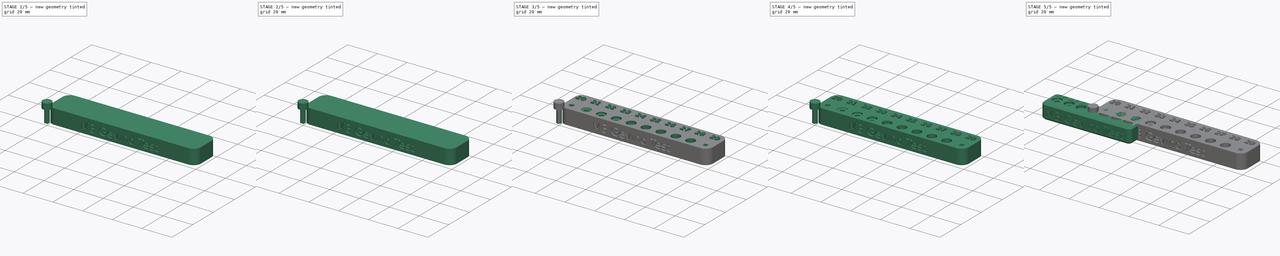
[diagram: build sequence overview — one tinted view per stage of 5, left to right]
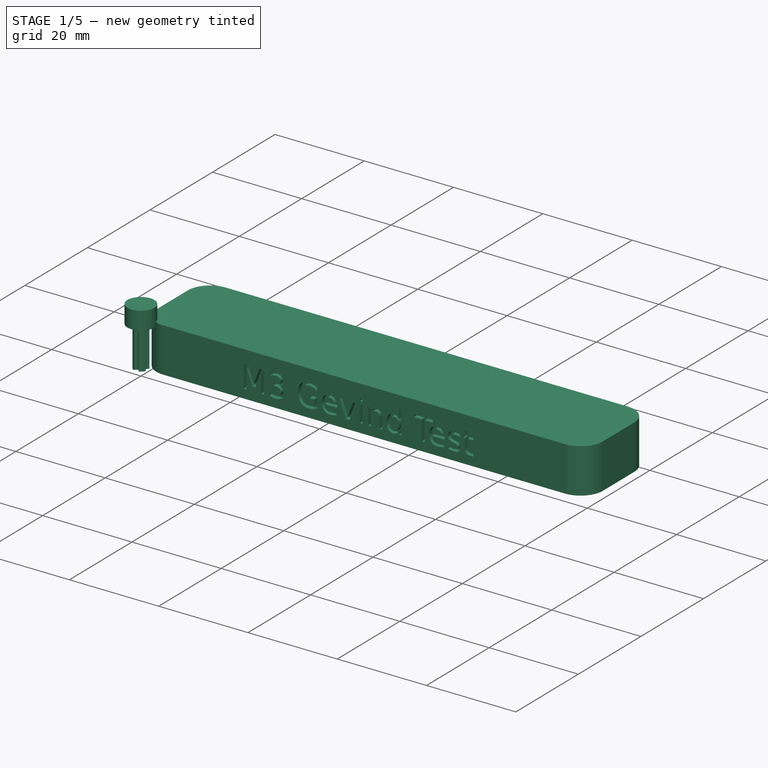
[diagram: stage 1 of 5 — iso view after this stage's code; geometry added in this stage tinted green]
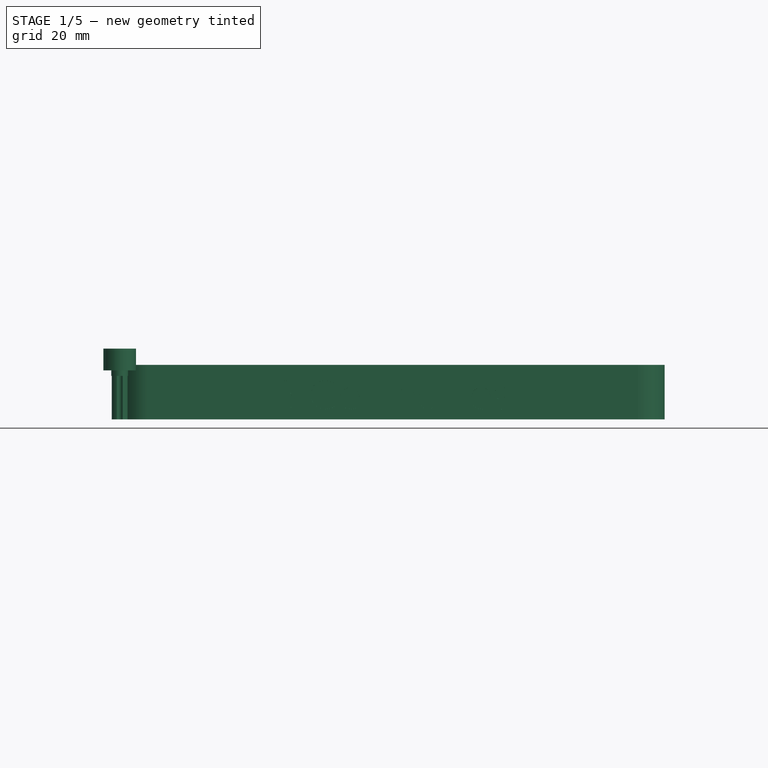
[diagram: stage 1 of 5 — front view after this stage's code; geometry added in this stage tinted green]
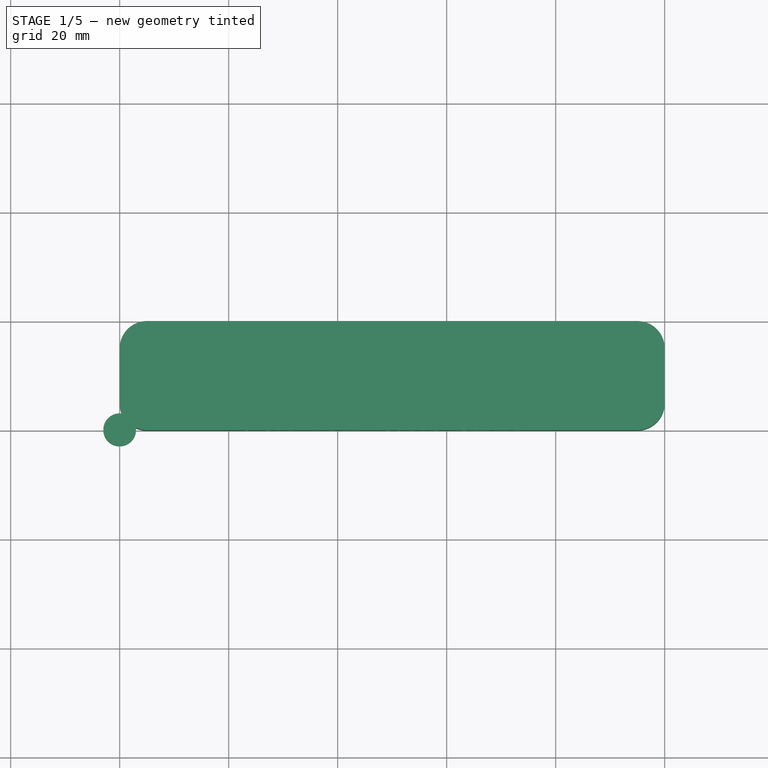
[diagram: stage 1 of 5 — top view after this stage's code; geometry added in this stage tinted green]
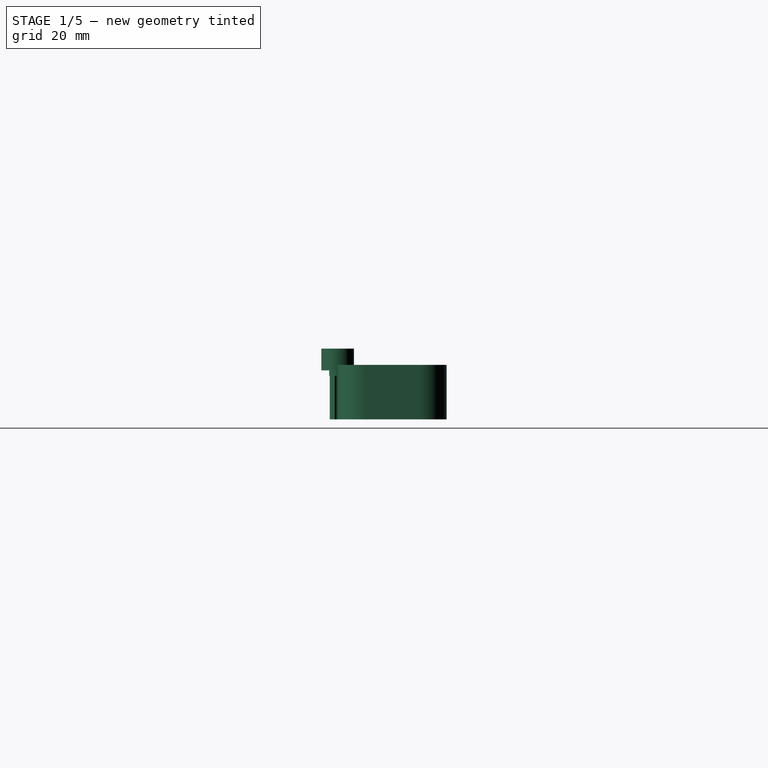
[diagram: stage 1 of 5 — right view after this stage's code; geometry added in this stage tinted green]
FCSTD DOCUMENT  (FreeCAD 1.0R39109 (Git))
Label: M3-Gevind
License: All rights reserved
LicenseURL: http://en.wikipedia.org/wiki/All_rights_reserved
objects: Sketcher::SketchObject×60, PartDesign::Pad×57, PartDesign::Pocket×21, PartDesign::Body×20, Part::Part2DObjectPython×19, PartDesign::Boolean×2, PartDesign::Chamfer×1
note: 400 computed .brp shape members not serialized (recipe doc carries the construction recipe); baked Part::Feature solids carry a one-line shape summary decoded from their .brp

FEATURE [PartDesign::Body] Body010  label="M3-20"
  AllowCompound = true
  Group = -> [Sketch034,Pad025,Sketch035,Pocket016,Sketch036,Pad026,Pad027]
  Origin = -> Origin010
  Placement = pos=(5,5,1) rot=(0,0,1;0rad)
  Tip = -> Pad027
FEATURE [PartDesign::Pad] Pad028
  Direction = (0,0,1)
  Length = 10
  Length2 = 10
  Profile = -> Sketch033
  ReferenceAxis = -> Sketch033 [N_Axis]
  Refine = true
  Reversed = true
  Suppressed = false
  Type = 0
FEATURE [PartDesign::Body] Body015  label="M3-25"
  AllowCompound = true
  Group = -> [Sketch049,Pad041,Sketch050,Pocket021,Sketch051,Pad042,Pad043]
  Origin = -> Origin015
  Placement = pos=(55,5,-1.5) rot=(0,0,1;0rad)
  Tip = -> Pad043
FEATURE [Sketcher::SketchObject] Sketch052
  ArcFitTolerance = 1e-06
  AttachmentSupport = -> [XY_Plane016]
  FullyConstrained = true
  MakeInternals = false
  MapMode = 5
  sketch-geometry (1):
    g0: Circle CenterX=0 CenterY=0 CenterZ=0 NormalX=0 NormalY=0 NormalZ=1 AngleXU=0 Radius=1.55
  constraints (2):
    c: Coincident(g0,g-1)
    c: Diameter(g0) = 3.1
FEATURE [PartDesign::Pad] Pad044
  Direction = (0,0,1)
  Length = 10
  Length2 = 10
  Profile = -> Sketch052
  ReferenceAxis = -> Sketch052 [N_Axis]
  Refine = true
  Reversed = true
  Suppressed = false
  Type = 0
FEATURE [Sketcher::SketchObject] Sketch053
  ArcFitTolerance = 1e-06
  AttachmentOffset = pos=(0,0,-2) rot=(0,0,1;0rad)
  AttachmentSupport = -> [XY_Plane016]
  ExternalGeometry = -> [Pad044]
  FullyConstrained = true
  MakeInternals = false
  MapMode = 5
  Placement = pos=(0,0,-2) rot=(0,0,1;0rad)
  sketch-geometry (5):
    g0: Circle [constr] CenterX=0 CenterY=0 CenterZ=0 NormalX=0 NormalY=0 NormalZ=1 AngleXU=0 Radius=1
    g1: Circle CenterX=0 CenterY=1.55 CenterZ=0 NormalX=0 NormalY=0 NormalZ=1 AngleXU=0 Radius=0.55
    g2: Circle CenterX=1.55 CenterY=0 CenterZ=0 NormalX=0 NormalY=0 NormalZ=1 AngleXU=0 Radius=0.55
    g3: Circle CenterX=-1.55 CenterY=0 CenterZ=0 NormalX=0 NormalY=0 NormalZ=1 AngleXU=0 Radius=0.55
    g4: Circle CenterX=0 CenterY=-1.55 CenterZ=0 NormalX=0 NormalY=0 NormalZ=1 AngleXU=0 Radius=0.55
  constraints (14):
    c: Diameter(g0) = 2
    c: Coincident(g0,g-1)
    c: PointOnObject(g1,g-2)
    c: PointOnObject(g2,g-1)
    c: PointOnObject(g3,g-1)
    c: PointOnObject(g4,g-2)
    c: Tangent(g3,g0)
    c: PointOnObject(g3,g-3)
    c: Tangent(g1,g0)
    c: Tangent(g2,g0)
    c: Tangent(g4,g0)
    c: Equal(g3,g4)
    c: Equal(g4,g2)
    c: Equal(g2,g1)
FEATURE [PartDesign::Pocket] Pocket022
  BaseFeature = -> Pad044
  Direction = (0,0,-1)
  Length = 10
  Length2 = 5
  Profile = -> Sketch053
  ReferenceAxis = -> Sketch053 [N_Axis]
  Refine = true
  Suppressed = false
  Type = 0
FEATURE [PartDesign::Body] Body016  label="M3-26"
  AllowCompound = true
  Group = -> [Sketch052,Pad044,Sketch053,Pocket022,Sketch054,Pad045,Pad046]
  Origin = -> Origin016
  Placement = pos=(65,5,-2) rot=(0,0,1;0rad)
  Tip = -> Pad046
FEATURE [Sketcher::SketchObject] Sketch055
  ArcFitTolerance = 1e-06
  AttachmentSupport = -> [XY_Plane017]
  FullyConstrained = true
  MakeInternals = false
  MapMode = 5
  sketch-geometry (1):
    g0: Circle CenterX=0 CenterY=0 CenterZ=0 NormalX=0 NormalY=0 NormalZ=1 AngleXU=0 Radius=1.55
  constraints (2):
    c: Coincident(g0,g-1)
    c: Diameter(g0) = 3.1
FEATURE [PartDesign::Pad] Pad047
  Direction = (0,0,1)
  Length = 10
  Length2 = 10
  Profile = -> Sketch055
  ReferenceAxis = -> Sketch055 [N_Axis]
  Refine = true
  Reversed = true
  Suppressed = false
  Type = 0
FEATURE [Sketcher::SketchObject] Sketch056
  ArcFitTolerance = 1e-06
  AttachmentOffset = pos=(0,0,-2) rot=(0,0,1;0rad)
  AttachmentSupport = -> [XY_Plane017]
  ExternalGeometry = -> [Pad047]
  FullyConstrained = true
  MakeInternals = false
  MapMode = 5
  Placement = pos=(0,0,-2) rot=(0,0,1;0rad)
  sketch-geometry (5):
    g0: Circle [constr] CenterX=0 CenterY=0 CenterZ=0 NormalX=0 NormalY=0 NormalZ=1 AngleXU=0 Radius=1
    g1: Circle CenterX=0 CenterY=1.55 CenterZ=0 NormalX=0 NormalY=0 NormalZ=1 AngleXU=0 Radius=0.55
    g2: Circle CenterX=1.55 CenterY=0 CenterZ=0 NormalX=0 NormalY=0 NormalZ=1 AngleXU=0 Radius=0.55
    g3: Circle CenterX=-1.55 CenterY=0 CenterZ=0 NormalX=0 NormalY=0 NormalZ=1 AngleXU=0 Radius=0.55
    g4: Circle CenterX=0 CenterY=-1.55 CenterZ=0 NormalX=0 NormalY=0 NormalZ=1 AngleXU=0 Radius=0.55
  constraints (14):
    c: Diameter(g0) = 2
    c: Coincident(g0,g-1)
    c: PointOnObject(g1,g-2)
    c: PointOnObject(g2,g-1)
    c: PointOnObject(g3,g-1)
    c: PointOnObject(g4,g-2)
    c: Tangent(g3,g0)
    c: PointOnObject(g3,g-3)
    c: Tangent(g1,g0)
    c: Tangent(g2,g0)
    c: Tangent(g4,g0)
    c: Equal(g3,g4)
    c: Equal(g4,g2)
    c: Equal(g2,g1)
FEATURE [PartDesign::Pocket] Pocket023
  BaseFeature = -> Pad047
  Direction = (0,0,-1)
  Length = 10
  Length2 = 5
  Profile = -> Sketch056
  ReferenceAxis = -> Sketch056 [N_Axis]
  Refine = true
  Suppressed = false
  Type = 0
FEATURE [Sketcher::SketchObject] Sketch057
  ArcFitTolerance = 1e-06
  AttachmentSupport = -> [XY_Plane017]
  ExternalGeometry = -> [Pocket023]
  FullyConstrained = true
  MakeInternals = false
  MapMode = 5
  sketch-geometry (1):
    g0: Circle CenterX=0 CenterY=0 CenterZ=0 NormalX=0 NormalY=0 NormalZ=1 AngleXU=0 Radius=3
  constraints (2):
    c: Coincident(g0,g-1)
    c: Diameter(g0) = 6
FEATURE [PartDesign::Pad] Pad048
  BaseFeature = -> Pocket023
  Direction = (0,0,1)
  Length = 1
  Length2 = 10
  Profile = -> Sketch057
  ReferenceAxis = -> Sketch057 [N_Axis]
  Refine = true
  Reversed = true
  Suppressed = false
  Type = 0
FEATURE [PartDesign::Pad] Pad049
  BaseFeature = -> Pad048
  Direction = (0,0,1)
  Length = 3
  Length2 = 10
  Profile = -> Sketch057
  ReferenceAxis = -> Sketch057 [N_Axis]
  Refine = true
  Suppressed = false
  Type = 0
FEATURE [PartDesign::Body] Body017  label="M3-27"
  AllowCompound = true
  Group = -> [Sketch055,Pad047,Sketch056,Pocket023,Sketch057,Pad048,Pad049]
  Origin = -> Origin017
  Placement = pos=(75,5,-2.5) rot=(0,0,1;0rad)
  Tip = -> Pad049
FEATURE [Sketcher::SketchObject] Sketch058
  ArcFitTolerance = 1e-06
  AttachmentSupport = -> [XY_Plane018]
  FullyConstrained = true
  MakeInternals = false
  MapMode = 5
  sketch-geometry (1):
    g0: Circle CenterX=0 CenterY=0 CenterZ=0 NormalX=0 NormalY=0 NormalZ=1 AngleXU=0 Radius=1.55
  constraints (2):
    c: Coincident(g0,g-1)
    c: Diameter(g0) = 3.1
FEATURE [PartDesign::Pad] Pad050
  Direction = (0,0,1)
  Length = 10
  Length2 = 10
  Profile = -> Sketch058
  ReferenceAxis = -> Sketch058 [N_Axis]
  Refine = true
  Reversed = true
  Suppressed = false
  Type = 0
FEATURE [Sketcher::SketchObject] Sketch059
  ArcFitTolerance = 1e-06
  AttachmentOffset = pos=(0,0,-2) rot=(0,0,1;0rad)
  AttachmentSupport = -> [XY_Plane018]
  ExternalGeometry = -> [Pad050]
  FullyConstrained = true
  MakeInternals = false
  MapMode = 5
  Placement = pos=(0,0,-2) rot=(0,0,1;0rad)
  sketch-geometry (5):
    g0: Circle [constr] CenterX=0 CenterY=0 CenterZ=0 NormalX=0 NormalY=0 NormalZ=1 AngleXU=0 Radius=1
    g1: Circle CenterX=0 CenterY=1.55 CenterZ=0 NormalX=0 NormalY=0 NormalZ=1 AngleXU=0 Radius=0.55
    g2: Circle CenterX=1.55 CenterY=0 CenterZ=0 NormalX=0 NormalY=0 NormalZ=1 AngleXU=0 Radius=0.55
    g3: Circle CenterX=-1.55 CenterY=0 CenterZ=0 NormalX=0 NormalY=0 NormalZ=1 AngleXU=0 Radius=0.55
    g4: Circle CenterX=0 CenterY=-1.55 CenterZ=0 NormalX=0 NormalY=0 NormalZ=1 AngleXU=0 Radius=0.55
  constraints (14):
    c: Diameter(g0) = 2
    c: Coincident(g0,g-1)
    c: PointOnObject(g1,g-2)
    c: PointOnObject(g2,g-1)
    c: PointOnObject(g3,g-1)
    c: PointOnObject(g4,g-2)
    c: Tangent(g3,g0)
    c: PointOnObject(g3,g-3)
    c: Tangent(g1,g0)
    c: Tangent(g2,g0)
    c: Tangent(g4,g0)
    c: Equal(g3,g4)
    c: Equal(g4,g2)
    c: Equal(g2,g1)
FEATURE [PartDesign::Pocket] Pocket024
  BaseFeature = -> Pad050
  Direction = (0,0,-1)
  Length = 10
  Length2 = 5
  Profile = -> Sketch059
  ReferenceAxis = -> Sketch059 [N_Axis]
  Refine = true
  Suppressed = false
  Type = 0
FEATURE [Sketcher::SketchObject] Sketch060
  ArcFitTolerance = 1e-06
  AttachmentSupport = -> [XY_Plane018]
  ExternalGeometry = -> [Pocket024]
  FullyConstrained = true
  MakeInternals = false
  MapMode = 5
  sketch-geometry (1):
    g0: Circle CenterX=0 CenterY=0 CenterZ=0 NormalX=0 NormalY=0 NormalZ=1 AngleXU=0 Radius=3
  constraints (2):
    c: Coincident(g0,g-1)
    c: Diameter(g0) = 6
FEATURE [PartDesign::Pad] Pad051
  BaseFeature = -> Pocket024
  Direction = (0,0,1)
  Length = 1
  Length2 = 10
  Profile = -> Sketch060
  ReferenceAxis = -> Sketch060 [N_Axis]
  Refine = true
  Reversed = true
  Suppressed = false
  Type = 0
FEATURE [PartDesign::Pad] Pad052
  BaseFeature = -> Pad051
  Direction = (0,0,1)
  Length = 3
  Length2 = 10
  Profile = -> Sketch060
  ReferenceAxis = -> Sketch060 [N_Axis]
  Refine = true
  Suppressed = false
  Type = 0
FEATURE [PartDesign::Body] Body018  label="M3-28"
  AllowCompound = true
  Group = -> [Sketch058,Pad050,Sketch059,Pocket024,Sketch060,Pad051,Pad052]
  Origin = -> Origin018
  Placement = pos=(85,5,-3) rot=(0,0,1;0rad)
  Tip = -> Pad052
FEATURE [Sketcher::SketchObject] Sketch061
  ArcFitTolerance = 1e-06
  AttachmentSupport = -> [XY_Plane019]
  FullyConstrained = true
  MakeInternals = false
  MapMode = 5
  sketch-geometry (1):
    g0: Circle CenterX=0 CenterY=0 CenterZ=0 NormalX=0 NormalY=0 NormalZ=1 AngleXU=0 Radius=1.55
  constraints (2):
    c: Coincident(g0,g-1)
    c: Diameter(g0) = 3.1
FEATURE [PartDesign::Pad] Pad053
  Direction = (0,0,1)
  Length = 10
  Length2 = 10
  Profile = -> Sketch061
  ReferenceAxis = -> Sketch061 [N_Axis]
  Refine = true
  Reversed = true
  Suppressed = false
  Type = 0
FEATURE [Sketcher::SketchObject] Sketch062
  ArcFitTolerance = 1e-06
  AttachmentOffset = pos=(0,0,-2) rot=(0,0,1;0rad)
  AttachmentSupport = -> [XY_Plane019]
  ExternalGeometry = -> [Pad053]
  FullyConstrained = true
  MakeInternals = false
  MapMode = 5
  Placement = pos=(0,0,-2) rot=(0,0,1;0rad)
  sketch-geometry (5):
    g0: Circle [constr] CenterX=0 CenterY=0 CenterZ=0 NormalX=0 NormalY=0 NormalZ=1 AngleXU=0 Radius=1
    g1: Circle CenterX=0 CenterY=1.55 CenterZ=0 NormalX=0 NormalY=0 NormalZ=1 AngleXU=0 Radius=0.55
    g2: Circle CenterX=1.55 CenterY=0 CenterZ=0 NormalX=0 NormalY=0 NormalZ=1 AngleXU=0 Radius=0.55
    g3: Circle CenterX=-1.55 CenterY=0 CenterZ=0 NormalX=0 NormalY=0 NormalZ=1 AngleXU=0 Radius=0.55
    g4: Circle CenterX=0 CenterY=-1.55 CenterZ=0 NormalX=0 NormalY=0 NormalZ=1 AngleXU=0 Radius=0.55
  constraints (14):
    c: Diameter(g0) = 2
    c: Coincident(g0,g-1)
    c: PointOnObject(g1,g-2)
    c: PointOnObject(g2,g-1)
    c: PointOnObject(g3,g-1)
    c: PointOnObject(g4,g-2)
    c: Tangent(g3,g0)
    c: PointOnObject(g3,g-3)
    c: Tangent(g1,g0)
    c: Tangent(g2,g0)
    c: Tangent(g4,g0)
    c: Equal(g3,g4)
    c: Equal(g4,g2)
    c: Equal(g2,g1)
FEATURE [PartDesign::Pocket] Pocket025
  BaseFeature = -> Pad053
  Direction = (0,0,-1)
  Length = 10
  Length2 = 5
  Profile = -> Sketch062
  ReferenceAxis = -> Sketch062 [N_Axis]
  Refine = true
  Suppressed = false
  Type = 0
FEATURE [Sketcher::SketchObject] Sketch063
  ArcFitTolerance = 1e-06
  AttachmentSupport = -> [XY_Plane019]
  ExternalGeometry = -> [Pocket025]
  FullyConstrained = true
  MakeInternals = false
  MapMode = 5
  sketch-geometry (1):
    g0: Circle CenterX=0 CenterY=0 CenterZ=0 NormalX=0 NormalY=0 NormalZ=1 AngleXU=0 Radius=3
  constraints (2):
    c: Coincident(g0,g-1)
    c: Diameter(g0) = 6
FEATURE [PartDesign::Pad] Pad054
  BaseFeature = -> Pocket025
  Direction = (0,0,1)
  Length = 1
  Length2 = 10
  Profile = -> Sketch063
  ReferenceAxis = -> Sketch063 [N_Axis]
  Refine = true
  Reversed = true
  Suppressed = false
  Type = 0
FEATURE [PartDesign::Pad] Pad055
  BaseFeature = -> Pad054
  Direction = (0,0,1)
  Length = 3
  Length2 = 10
  Profile = -> Sketch063
  ReferenceAxis = -> Sketch063 [N_Axis]
  Refine = true
  Suppressed = false
  Type = 0
FEATURE [PartDesign::Body] Body019  label="M3-29"
  AllowCompound = true
  Group = -> [Sketch061,Pad053,Sketch062,Pocket025,Sketch063,Pad054,Pad055]
  Origin = -> Origin019
  Placement = pos=(95,5,3) rot=(0,0,1;0rad)
  Tip = -> Pad055
FEATURE [Part::Part2DObjectPython] ShapeString016  label="ShapeString_27"  # Draft 2D object (typed FeaturePython)
  FontFile = <path>
  Fuse = false
  Justification = 6
  JustificationReference = 0
  KeepLeftMargin = false
  MakeFace = true
  ObliqueAngle = 0
  Placement = pos=(72,13,0) rot=(0,0,1;0rad)
  ScaleToSize = true
  Size = 3.5
  String = 27
  Tracking = 0
FEATURE [Part::Part2DObjectPython] ShapeString017  label="ShapeString_28"  # Draft 2D object (typed FeaturePython)
  FontFile = <path>
  Fuse = false
  Justification = 6
  JustificationReference = 0
  KeepLeftMargin = false
  MakeFace = true
  ObliqueAngle = 0
  Placement = pos=(82,13,0) rot=(0,0,1;0rad)
  ScaleToSize = true
  Size = 3.5
  String = 28
  Tracking = 0
FEATURE [Part::Part2DObjectPython] ShapeString018  label="ShapeString_29"  # Draft 2D object (typed FeaturePython)
  FontFile = <path>
  Fuse = false
  Justification = 6
  JustificationReference = 0
  KeepLeftMargin = false
  MakeFace = true
  ObliqueAngle = 0
  Placement = pos=(92,13,0) rot=(0,0,1;0rad)
  ScaleToSize = true
  Size = 3.5
  String = 29
  Tracking = 0
FEATURE [Sketcher::SketchObject] Sketch065
  ArcFitTolerance = 1e-06
  FullyConstrained = false
  MakeInternals = false
  Placement = pos=(0,1.8e-15,0) rot=(1,0,0;1.5708rad)
  sketch-geometry (210):
    g0: LineSegment StartX=23 StartY=-3 StartZ=0 EndX=24.0078 EndY=-3 EndZ=0
    g1: LineSegment StartX=23 StartY=-8 StartZ=0 EndX=23 EndY=-3 EndZ=0
    g2: LineSegment StartX=23.6562 StartY=-8 StartZ=0 EndX=23 EndY=-8 EndZ=0
    g3: LineSegment StartX=23.6562 StartY=-3.61004 StartZ=0 EndX=23.6562 EndY=-8 EndZ=0
    g4: LineSegment StartX=24.9453 StartY=-7.04286 StartZ=0 EndX=23.6562 EndY=-3.61004 EndZ=0
    g5: LineSegment StartX=25.625 StartY=-7.04286 StartZ=0 EndX=24.9453 EndY=-7.04286 EndZ=0
    g6: LineSegment StartX=26.9141 StartY=-3.61004 StartZ=0 EndX=25.625 EndY=-7.04286 EndZ=0
    g7: LineSegment StartX=26.9141 StartY=-8 StartZ=0 EndX=26.9141 EndY=-3.61004 EndZ=0
    g8: LineSegment StartX=27.5737 StartY=-8 StartZ=0 EndX=26.9141 EndY=-8 EndZ=0
    g9: LineSegment StartX=27.5737 StartY=-3 StartZ=0 EndX=27.5737 EndY=-8 EndZ=0
    g10: LineSegment StartX=26.5658 StartY=-3 StartZ=0 EndX=27.5737 EndY=-3 EndZ=0
    g11: LineSegment StartX=25.2835 StartY=-6.40603 StartZ=0 EndX=26.5658 EndY=-3 EndZ=0
    g12: LineSegment StartX=24.0078 StartY=-3 StartZ=0 EndX=25.2835 EndY=-6.40603 EndZ=0
    g13: BSplineCurve PolesCount=3 KnotsCount=2 Degree=2 IsPeriodic=0
    g14: BSplineCurve PolesCount=3 KnotsCount=2 Degree=2 IsPeriodic=0
    g15: BSplineCurve PolesCount=3 KnotsCount=2 Degree=2 IsPeriodic=0
    g16: BSplineCurve PolesCount=3 KnotsCount=2 Degree=2 IsPeriodic=0
    g17: BSplineCurve PolesCount=3 KnotsCount=2 Degree=2 IsPeriodic=0
    g18: BSplineCurve PolesCount=3 KnotsCount=2 Degree=2 IsPeriodic=0
    g19: BSplineCurve PolesCount=3 KnotsCount=2 Degree=2 IsPeriodic=0
    g20: LineSegment StartX=28.9143 StartY=-3.72857 StartZ=0 EndX=28.9143 EndY=-3.12857 EndZ=0
    g21: BSplineCurve PolesCount=3 KnotsCount=2 Degree=2 IsPeriodic=0
    g22: BSplineCurve PolesCount=3 KnotsCount=2 Degree=2 IsPeriodic=0
    g23: BSplineCurve PolesCount=3 KnotsCount=2 Degree=2 IsPeriodic=0
    g24: BSplineCurve PolesCount=3 KnotsCount=2 Degree=2 IsPeriodic=0
    g25: BSplineCurve PolesCount=3 KnotsCount=2 Degree=2 IsPeriodic=0
    g26: BSplineCurve PolesCount=3 KnotsCount=2 Degree=2 IsPeriodic=0
    g27: LineSegment StartX=29.6275 StartY=-5.05714 StartZ=0 EndX=30.2368 EndY=-5.05714 EndZ=0
    g28: LineSegment StartX=29.6275 StartY=-5.61429 StartZ=0 EndX=29.6275 EndY=-5.05714 EndZ=0
    g29: LineSegment StartX=30.21 StartY=-5.61429 StartZ=0 EndX=29.6275 EndY=-5.61429 EndZ=0
    g30: BSplineCurve PolesCount=3 KnotsCount=2 Degree=2 IsPeriodic=0
    g31: BSplineCurve PolesCount=3 KnotsCount=2 Degree=2 IsPeriodic=0
    g32: BSplineCurve PolesCount=3 KnotsCount=2 Degree=2 IsPeriodic=0
    g33: BSplineCurve PolesCount=3 KnotsCount=2 Degree=2 IsPeriodic=0
    g34: BSplineCurve PolesCount=3 KnotsCount=2 Degree=2 IsPeriodic=0
    g35: BSplineCurve PolesCount=3 KnotsCount=2 Degree=2 IsPeriodic=0
    g36: LineSegment StartX=28.7636 StartY=-7.85714 StartZ=0 EndX=28.7636 EndY=-7.2 EndZ=0
    g37: BSplineCurve PolesCount=3 KnotsCount=2 Degree=2 IsPeriodic=0
    g38: BSplineCurve PolesCount=3 KnotsCount=2 Degree=2 IsPeriodic=0
    g39: BSplineCurve PolesCount=3 KnotsCount=2 Degree=2 IsPeriodic=0
    g40: BSplineCurve PolesCount=3 KnotsCount=2 Degree=2 IsPeriodic=0
    g41: BSplineCurve PolesCount=3 KnotsCount=2 Degree=2 IsPeriodic=0
    g42: LineSegment StartX=38.8656 StartY=-7.28795 StartZ=0 EndX=38.8656 EndY=-5.94286 EndZ=0
    g43: BSplineCurve PolesCount=3 KnotsCount=2 Degree=2 IsPeriodic=0
    g44: BSplineCurve PolesCount=3 KnotsCount=2 Degree=2 IsPeriodic=0
    g45: BSplineCurve PolesCount=3 KnotsCount=2 Degree=2 IsPeriodic=0
    g46: BSplineCurve PolesCount=3 KnotsCount=2 Degree=2 IsPeriodic=0
    g47: BSplineCurve PolesCount=3 KnotsCount=2 Degree=2 IsPeriodic=0
    g48: BSplineCurve PolesCount=3 KnotsCount=2 Degree=2 IsPeriodic=0
    g49: BSplineCurve PolesCount=3 KnotsCount=2 Degree=2 IsPeriodic=0
    g50: BSplineCurve PolesCount=3 KnotsCount=2 Degree=2 IsPeriodic=0
    g51: LineSegment StartX=39.4047 StartY=-3.38571 StartZ=0 EndX=39.4047 EndY=-4.1 EndZ=0
    g52: BSplineCurve PolesCount=3 KnotsCount=2 Degree=2 IsPeriodic=0
    g53: BSplineCurve PolesCount=3 KnotsCount=2 Degree=2 IsPeriodic=0
    g54: BSplineCurve PolesCount=3 KnotsCount=2 Degree=2 IsPeriodic=0
    g55: BSplineCurve PolesCount=3 KnotsCount=2 Degree=2 IsPeriodic=0
    g56: BSplineCurve PolesCount=3 KnotsCount=2 Degree=2 IsPeriodic=0
    g57: BSplineCurve PolesCount=3 KnotsCount=2 Degree=2 IsPeriodic=0
    g58: BSplineCurve PolesCount=3 KnotsCount=2 Degree=2 IsPeriodic=0
    g59: BSplineCurve PolesCount=3 KnotsCount=2 Degree=2 IsPeriodic=0
    g60: LineSegment StartX=39.5353 StartY=-5.38571 StartZ=0 EndX=39.5353 EndY=-7.53616 EndZ=0
    g61: LineSegment StartX=37.7607 StartY=-5.38571 StartZ=0 EndX=39.5353 EndY=-5.38571 EndZ=0
    g62: LineSegment StartX=37.7607 StartY=-5.94286 StartZ=0 EndX=37.7607 EndY=-5.38571 EndZ=0
    g63: LineSegment StartX=38.8656 StartY=-5.94286 StartZ=0 EndX=37.7607 EndY=-5.94286 EndZ=0
    g64: LineSegment StartX=43.9522 StartY=-5.96786 StartZ=0 EndX=43.9522 EndY=-6.27143 EndZ=0
    g65: BSplineCurve PolesCount=3 KnotsCount=2 Degree=2 IsPeriodic=0
    g66: BSplineCurve PolesCount=3 KnotsCount=2 Degree=2 IsPeriodic=0
    g67: BSplineCurve PolesCount=3 KnotsCount=2 Degree=2 IsPeriodic=0
    g68: BSplineCurve PolesCount=3 KnotsCount=2 Degree=2 IsPeriodic=0
    g69: BSplineCurve PolesCount=3 KnotsCount=2 Degree=2 IsPeriodic=0
    g70: BSplineCurve PolesCount=3 KnotsCount=2 Degree=2 IsPeriodic=0
    g71: BSplineCurve PolesCount=3 KnotsCount=2 Degree=2 IsPeriodic=0
    g72: BSplineCurve PolesCount=3 KnotsCount=2 Degree=2 IsPeriodic=0
    g73: LineSegment StartX=43.8083 StartY=-7.22857 StartZ=0 EndX=43.8083 EndY=-7.81429 EndZ=0
    g74: BSplineCurve PolesCount=3 KnotsCount=2 Degree=2 IsPeriodic=0
    g75: BSplineCurve PolesCount=3 KnotsCount=2 Degree=2 IsPeriodic=0
    g76: BSplineCurve PolesCount=3 KnotsCount=2 Degree=2 IsPeriodic=0
    g77: BSplineCurve PolesCount=3 KnotsCount=2 Degree=2 IsPeriodic=0
    g78: LineSegment StartX=43.9522 StartY=-6.27143 StartZ=0 EndX=41.1196 EndY=-6.27143 EndZ=0
    g79: BSplineCurve PolesCount=3 KnotsCount=2 Degree=2 IsPeriodic=0
    g80: LineSegment StartX=41.1397 StartY=-5.78906 StartZ=0 EndX=43.3362 EndY=-5.78571 EndZ=0
    g81: BSplineCurve PolesCount=3 KnotsCount=2 Degree=2 IsPeriodic=0
    g82: BSplineCurve PolesCount=3 KnotsCount=2 Degree=2 IsPeriodic=0
    g83: BSplineCurve PolesCount=3 KnotsCount=2 Degree=2 IsPeriodic=0
    g84: LineSegment StartX=44.517 StartY=-4.24286 StartZ=0 EndX=45.1699 EndY=-4.24286 EndZ=0
    g85: LineSegment StartX=45.9232 StartY=-8 StartZ=0 EndX=44.517 EndY=-4.24286 EndZ=0
    g86: LineSegment StartX=46.7603 StartY=-8 StartZ=0 EndX=45.9232 EndY=-8 EndZ=0
    g87: LineSegment StartX=48.1665 StartY=-4.24286 StartZ=0 EndX=46.7603 EndY=-8 EndZ=0
    g88: LineSegment StartX=47.5136 StartY=-4.24286 StartZ=0 EndX=48.1665 EndY=-4.24286 EndZ=0
    g89: LineSegment StartX=46.3417 StartY=-7.39621 StartZ=0 EndX=47.5136 EndY=-4.24286 EndZ=0
    g90: LineSegment StartX=45.1699 StartY=-4.24286 StartZ=0 EndX=46.3417 EndY=-7.39621 EndZ=0
    g91: LineSegment StartX=49.0161 StartY=-4.24286 StartZ=0 EndX=49.6321 EndY=-4.24286 EndZ=0
    g92: LineSegment StartX=49.0161 StartY=-8 StartZ=0 EndX=49.0161 EndY=-4.24286 EndZ=0
    g93: LineSegment StartX=49.6321 StartY=-8 StartZ=0 EndX=49.0161 EndY=-8 EndZ=0
    g94: LineSegment StartX=49.6321 StartY=-4.24286 StartZ=0 EndX=49.6321 EndY=-8 EndZ=0
    g95: LineSegment StartX=49.0161 StartY=-2.78571 StartZ=0 EndX=49.6321 EndY=-2.78571 EndZ=0
    g96: LineSegment StartX=49.0161 StartY=-3.57143 StartZ=0 EndX=49.0161 EndY=-2.78571 EndZ=0
    g97: LineSegment StartX=49.6321 StartY=-3.57143 StartZ=0 EndX=49.0161 EndY=-3.57143 EndZ=0
    g98: LineSegment StartX=49.6321 StartY=-2.78571 StartZ=0 EndX=49.6321 EndY=-3.57143 EndZ=0
    g99: LineSegment StartX=54.0333 StartY=-5.73371 StartZ=0 EndX=54.0333 EndY=-8 EndZ=0
    g100: BSplineCurve PolesCount=3 KnotsCount=2 Degree=2 IsPeriodic=0
    g101: BSplineCurve PolesCount=3 KnotsCount=2 Degree=2 IsPeriodic=0
    g102: BSplineCurve PolesCount=3 KnotsCount=2 Degree=2 IsPeriodic=0
    g103: BSplineCurve PolesCount=3 KnotsCount=2 Degree=2 IsPeriodic=0
    g104: LineSegment StartX=51.5121 StartY=-4.24286 StartZ=0 EndX=51.5121 EndY=-4.82857 EndZ=0
    g105: LineSegment StartX=50.8926 StartY=-4.24286 StartZ=0 EndX=51.5121 EndY=-4.24286 EndZ=0
    g106: LineSegment StartX=50.8926 StartY=-8 StartZ=0 EndX=50.8926 EndY=-4.24286 EndZ=0
    g107: LineSegment StartX=51.5121 StartY=-8 StartZ=0 EndX=50.8926 EndY=-8 EndZ=0
    g108: LineSegment StartX=51.5121 StartY=-5.8779 StartZ=0 EndX=51.5121 EndY=-8 EndZ=0
    g109: BSplineCurve PolesCount=3 KnotsCount=2 Degree=2 IsPeriodic=0
    g110: BSplineCurve PolesCount=3 KnotsCount=2 Degree=2 IsPeriodic=0
    g111: BSplineCurve PolesCount=3 KnotsCount=2 Degree=2 IsPeriodic=0
    g112: BSplineCurve PolesCount=3 KnotsCount=2 Degree=2 IsPeriodic=0
    g113: LineSegment StartX=53.4172 StartY=-8 StartZ=0 EndX=53.4172 EndY=-5.75379 EndZ=0
    g114: LineSegment StartX=54.0333 StartY=-8 StartZ=0 EndX=53.4172 EndY=-8 EndZ=0
    g115: LineSegment StartX=57.7266 StartY=-4.81429 StartZ=0 EndX=57.7266 EndY=-2.78571 EndZ=0
    g116: BSplineCurve PolesCount=3 KnotsCount=2 Degree=2 IsPeriodic=0
    g117: BSplineCurve PolesCount=3 KnotsCount=2 Degree=2 IsPeriodic=0
    g118: BSplineCurve PolesCount=3 KnotsCount=2 Degree=2 IsPeriodic=0
    g119: BSplineCurve PolesCount=3 KnotsCount=2 Degree=2 IsPeriodic=0
    g120: BSplineCurve PolesCount=3 KnotsCount=2 Degree=2 IsPeriodic=0
    g121: BSplineCurve PolesCount=3 KnotsCount=2 Degree=2 IsPeriodic=0
    g122: BSplineCurve PolesCount=3 KnotsCount=2 Degree=2 IsPeriodic=0
    g123: BSplineCurve PolesCount=3 KnotsCount=2 Degree=2 IsPeriodic=0
    g124: LineSegment StartX=57.7266 StartY=-8 StartZ=0 EndX=57.7266 EndY=-7.44286 EndZ=0
    g125: LineSegment StartX=58.3426 StartY=-8 StartZ=0 EndX=57.7266 EndY=-8 EndZ=0
    g126: LineSegment StartX=58.3426 StartY=-2.78571 StartZ=0 EndX=58.3426 EndY=-8 EndZ=0
    g127: LineSegment StartX=57.7266 StartY=-2.78571 StartZ=0 EndX=58.3426 EndY=-2.78571 EndZ=0
    g128: BSplineCurve PolesCount=3 KnotsCount=2 Degree=2 IsPeriodic=0
    g129: BSplineCurve PolesCount=3 KnotsCount=2 Degree=2 IsPeriodic=0
    g130: BSplineCurve PolesCount=3 KnotsCount=2 Degree=2 IsPeriodic=0
    g131: BSplineCurve PolesCount=3 KnotsCount=2 Degree=2 IsPeriodic=0
    g132: BSplineCurve PolesCount=3 KnotsCount=2 Degree=2 IsPeriodic=0
    g133: BSplineCurve PolesCount=3 KnotsCount=2 Degree=2 IsPeriodic=0
    g134: BSplineCurve PolesCount=3 KnotsCount=2 Degree=2 IsPeriodic=0
    g135: BSplineCurve PolesCount=3 KnotsCount=2 Degree=2 IsPeriodic=0
    g136: LineSegment StartX=61.1355 StartY=-3 StartZ=0 EndX=65.3643 EndY=-3 EndZ=0
    g137: LineSegment StartX=61.1355 StartY=-3.57143 StartZ=0 EndX=61.1355 EndY=-3 EndZ=0
    g138: LineSegment StartX=62.91 StartY=-3.57143 StartZ=0 EndX=61.1355 EndY=-3.57143 EndZ=0
    g139: LineSegment StartX=62.91 StartY=-8 StartZ=0 EndX=62.91 EndY=-3.57143 EndZ=0
    g140: LineSegment StartX=63.5897 StartY=-8 StartZ=0 EndX=62.91 EndY=-8 EndZ=0
    g141: LineSegment StartX=63.5897 StartY=-3.57143 StartZ=0 EndX=63.5897 EndY=-8 EndZ=0
    g142: LineSegment StartX=65.3643 StartY=-3.57143 StartZ=0 EndX=63.5897 EndY=-3.57143 EndZ=0
    g143: LineSegment StartX=65.3643 StartY=-3 StartZ=0 EndX=65.3643 EndY=-3.57143 EndZ=0
    g144: LineSegment StartX=68.0237 StartY=-5.96786 StartZ=0 EndX=68.0237 EndY=-6.27143 EndZ=0
    g145: BSplineCurve PolesCount=3 KnotsCount=2 Degree=2 IsPeriodic=0
    g146: BSplineCurve PolesCount=3 KnotsCount=2 Degree=2 IsPeriodic=0
    g147: BSplineCurve PolesCount=3 KnotsCount=2 Degree=2 IsPeriodic=0
    g148: BSplineCurve PolesCount=3 KnotsCount=2 Degree=2 IsPeriodic=0
    g149: BSplineCurve PolesCount=3 KnotsCount=2 Degree=2 IsPeriodic=0
    g150: BSplineCurve PolesCount=3 KnotsCount=2 Degree=2 IsPeriodic=0
    g151: BSplineCurve PolesCount=3 KnotsCount=2 Degree=2 IsPeriodic=0
    g152: BSplineCurve PolesCount=3 KnotsCount=2 Degree=2 IsPeriodic=0
    g153: LineSegment StartX=67.8797 StartY=-7.22857 StartZ=0 EndX=67.8797 EndY=-7.81429 EndZ=0
    g154: BSplineCurve PolesCount=3 KnotsCount=2 Degree=2 IsPeriodic=0
    g155: BSplineCurve PolesCount=3 KnotsCount=2 Degree=2 IsPeriodic=0
    g156: BSplineCurve PolesCount=3 KnotsCount=2 Degree=2 IsPeriodic=0
    g157: BSplineCurve PolesCount=3 KnotsCount=2 Degree=2 IsPeriodic=0
    g158: LineSegment StartX=68.0237 StartY=-6.27143 StartZ=0 EndX=65.1911 EndY=-6.27143 EndZ=0
    g159: BSplineCurve PolesCount=3 KnotsCount=2 Degree=2 IsPeriodic=0
    g160: LineSegment StartX=65.2112 StartY=-5.78906 StartZ=0 EndX=67.4076 EndY=-5.78571 EndZ=0
    g161: BSplineCurve PolesCount=3 KnotsCount=2 Degree=2 IsPeriodic=0
    g162: BSplineCurve PolesCount=3 KnotsCount=2 Degree=2 IsPeriodic=0
    g163: BSplineCurve PolesCount=3 KnotsCount=2 Degree=2 IsPeriodic=0
    g164: LineSegment StartX=71.421 StartY=-4.35714 StartZ=0 EndX=71.421 EndY=-4.94286 EndZ=0
    g165: BSplineCurve PolesCount=3 KnotsCount=2 Degree=2 IsPeriodic=0
    g166: BSplineCurve PolesCount=3 KnotsCount=2 Degree=2 IsPeriodic=0
    g167: BSplineCurve PolesCount=3 KnotsCount=2 Degree=2 IsPeriodic=0
    g168: BSplineCurve PolesCount=3 KnotsCount=2 Degree=2 IsPeriodic=0
    g169: BSplineCurve PolesCount=3 KnotsCount=2 Degree=2 IsPeriodic=0
    g170: BSplineCurve PolesCount=3 KnotsCount=2 Degree=2 IsPeriodic=0
    g171: LineSegment StartX=70.0783 StartY=-6.37054 StartZ=0 EndX=69.8641 EndY=-6.32031 EndZ=0
    g172: BSplineCurve PolesCount=3 KnotsCount=2 Degree=2 IsPeriodic=0
    g173: BSplineCurve PolesCount=3 KnotsCount=2 Degree=2 IsPeriodic=0
    g174: BSplineCurve PolesCount=3 KnotsCount=2 Degree=2 IsPeriodic=0
    g175: BSplineCurve PolesCount=3 KnotsCount=2 Degree=2 IsPeriodic=0
    g176: BSplineCurve PolesCount=3 KnotsCount=2 Degree=2 IsPeriodic=0
    g177: BSplineCurve PolesCount=3 KnotsCount=2 Degree=2 IsPeriodic=0
    g178: LineSegment StartX=68.7558 StartY=-7.87143 StartZ=0 EndX=68.7558 EndY=-7.22857 EndZ=0
    g179: BSplineCurve PolesCount=3 KnotsCount=2 Degree=2 IsPeriodic=0
    g180: BSplineCurve PolesCount=3 KnotsCount=2 Degree=2 IsPeriodic=0
    g181: BSplineCurve PolesCount=3 KnotsCount=2 Degree=2 IsPeriodic=0
    g182: BSplineCurve PolesCount=3 KnotsCount=2 Degree=2 IsPeriodic=0
    g183: BSplineCurve PolesCount=3 KnotsCount=2 Degree=2 IsPeriodic=0
    g184: BSplineCurve PolesCount=3 KnotsCount=2 Degree=2 IsPeriodic=0
    g185: LineSegment StartX=70.2022 StartY=-5.80759 StartZ=0 EndX=70.4132 EndY=-5.85446 EndZ=0
    g186: BSplineCurve PolesCount=3 KnotsCount=2 Degree=2 IsPeriodic=0
    g187: BSplineCurve PolesCount=3 KnotsCount=2 Degree=2 IsPeriodic=0
    g188: BSplineCurve PolesCount=3 KnotsCount=2 Degree=2 IsPeriodic=0
    g189: BSplineCurve PolesCount=3 KnotsCount=2 Degree=2 IsPeriodic=0
    g190: BSplineCurve PolesCount=3 KnotsCount=2 Degree=2 IsPeriodic=0
    g191: BSplineCurve PolesCount=3 KnotsCount=2 Degree=2 IsPeriodic=0
    g192: LineSegment StartX=73.2112 StartY=-3.17143 StartZ=0 EndX=73.2112 EndY=-4.24286 EndZ=0
    g193: LineSegment StartX=72.5917 StartY=-3.17143 StartZ=0 EndX=73.2112 EndY=-3.17143 EndZ=0
    g194: LineSegment StartX=72.5917 StartY=-4.24286 StartZ=0 EndX=72.5917 EndY=-3.17143 EndZ=0
    g195: LineSegment StartX=72.1397 StartY=-4.24286 StartZ=0 EndX=72.5917 EndY=-4.24286 EndZ=0
    g196: LineSegment StartX=72.1397 StartY=-4.72857 StartZ=0 EndX=72.1397 EndY=-4.24286 EndZ=0
    g197: LineSegment StartX=72.5917 StartY=-4.72857 StartZ=0 EndX=72.1397 EndY=-4.72857 EndZ=0
    g198: LineSegment StartX=72.5917 StartY=-6.7654 StartZ=0 EndX=72.5917 EndY=-4.72857 EndZ=0
    g199: BSplineCurve PolesCount=3 KnotsCount=2 Degree=2 IsPeriodic=0
    g200: BSplineCurve PolesCount=3 KnotsCount=2 Degree=2 IsPeriodic=0
    g201: LineSegment StartX=74.4801 StartY=-8 StartZ=0 EndX=73.8473 EndY=-8 EndZ=0
    g202: LineSegment StartX=74.4801 StartY=-7.48571 StartZ=0 EndX=74.4801 EndY=-8 EndZ=0
    g203: LineSegment StartX=73.8473 StartY=-7.48571 StartZ=0 EndX=74.4801 EndY=-7.48571 EndZ=0
    g204: BSplineCurve PolesCount=3 KnotsCount=2 Degree=2 IsPeriodic=0
    g205: BSplineCurve PolesCount=3 KnotsCount=2 Degree=2 IsPeriodic=0
    g206: LineSegment StartX=73.2112 StartY=-4.72857 StartZ=0 EndX=73.2112 EndY=-6.7654 EndZ=0
    g207: LineSegment StartX=74.4801 StartY=-4.72857 StartZ=0 EndX=73.2112 EndY=-4.72857 EndZ=0
    g208: LineSegment StartX=74.4801 StartY=-4.24286 StartZ=0 EndX=74.4801 EndY=-4.72857 EndZ=0
    g209: LineSegment StartX=73.2112 StartY=-4.24286 StartZ=0 EndX=74.4801 EndY=-4.24286 EndZ=0
  constraints (284):
    c: Horizontal(g0)
    c: Coincident(g0,g1)
    c: Vertical(g1)
    c: Coincident(g1,g2)
    c: Horizontal(g2)
    c: Coincident(g2,g3)
    c: Vertical(g3)
    c: Coincident(g3,g4)
    c: Coincident(g4,g5)
    c: Horizontal(g5)
    c: Coincident(g5,g6)
    c: Coincident(g6,g7)
    c: Vertical(g7)
    c: Coincident(g7,g8)
    c: Horizontal(g8)
    c: Coincident(g8,g9)
    c: Vertical(g9)
    c: Coincident(g9,g10)
    c: Horizontal(g10)
    c: Coincident(g10,g11)
    c: Coincident(g11,g12)
    c: Coincident(g12,g0)
    c: Coincident(g13,g14)
    c: Coincident(g14,g15)
    c: Coincident(g15,g16)
    c: Coincident(g16,g17)
    c: Coincident(g17,g18)
    c: Coincident(g18,g19)
    c: Coincident(g19,g20)
    c: Vertical(g20)
    c: Coincident(g20,g21)
    c: Coincident(g21,g22)
    c: Coincident(g22,g23)
    c: Coincident(g23,g24)
    c: Coincident(g24,g25)
    c: Coincident(g25,g26)
    c: Coincident(g26,g27)
    c: Horizontal(g27)
    c: Coincident(g27,g28)
    c: Vertical(g28)
    c: Coincident(g28,g29)
    c: Horizontal(g29)
    c: Coincident(g29,g30)
    c: Coincident(g30,g31)
    c: Coincident(g31,g32)
    c: Coincident(g32,g33)
    c: Coincident(g33,g34)
    c: Coincident(g34,g35)
    c: Coincident(g35,g36)
    c: Vertical(g36)
    c: Coincident(g36,g37)
    c: Coincident(g37,g38)
    c: Coincident(g38,g39)
    c: Coincident(g39,g40)
    c: Coincident(g40,g41)
    c: Coincident(g41,g13)
    c: Vertical(g42)
    c: Coincident(g42,g43)
    c: Coincident(g43,g44)
    c: Coincident(g44,g45)
    c: Coincident(g45,g46)
    c: Coincident(g46,g47)
    c: Coincident(g47,g48)
    c: Coincident(g48,g49)
    c: Coincident(g49,g50)
    c: Coincident(g50,g51)
    c: Vertical(g51)
    c: Coincident(g51,g52)
    c: Coincident(g52,g53)
    c: Coincident(g53,g54)
    c: Coincident(g54,g55)
    c: Coincident(g55,g56)
    c: Coincident(g56,g57)
    c: Coincident(g57,g58)
    c: Coincident(g58,g59)
    c: Coincident(g59,g60)
    c: Vertical(g60)
    c: Coincident(g60,g61)
    c: Horizontal(g61)
    c: Coincident(g61,g62)
    c: Vertical(g62)
    c: Coincident(g62,g63)
    c: Horizontal(g63)
    c: Coincident(g63,g42)
    c: Vertical(g64)
    c: Coincident(g64,g65)
    c: Coincident(g65,g66)
    c: Coincident(g66,g67)
    c: Coincident(g67,g68)
    c: Coincident(g68,g69)
    c: Coincident(g69,g70)
    c: Coincident(g70,g71)
    c: Coincident(g71,g72)
    c: Coincident(g72,g73)
    c: Vertical(g73)
    c: Coincident(g73,g74)
    c: Coincident(g74,g75)
    c: Coincident(g75,g76)
    c: Coincident(g76,g77)
    c: Coincident(g77,g78)
    c: Horizontal(g78)
    c: Coincident(g78,g64)
    c: Coincident(g79,g80)
    c: Coincident(g80,g81)
    c: Coincident(g81,g82)
    c: Coincident(g82,g83)
    c: Coincident(g83,g79)
    c: Horizontal(g84)
    c: Coincident(g84,g85)
    c: Coincident(g85,g86)
    c: Horizontal(g86)
    c: Coincident(g86,g87)
    c: Coincident(g87,g88)
    c: Horizontal(g88)
    c: Coincident(g88,g89)
    c: Coincident(g89,g90)
    c: Coincident(g90,g84)
    c: Horizontal(g91)
    c: Coincident(g91,g92)
    c: Vertical(g92)
    c: Coincident(g92,g93)
    c: Horizontal(g93)
    c: Coincident(g93,g94)
    c: Vertical(g94)
    c: Coincident(g94,g91)
    c: Horizontal(g95)
    c: Coincident(g95,g96)
    c: Vertical(g96)
    c: Coincident(g96,g97)
    c: Horizontal(g97)
    c: Coincident(g97,g98)
    c: Vertical(g98)
    c: Coincident(g98,g95)
    c: Vertical(g99)
    c: Coincident(g99,g100)
    c: Coincident(g100,g101)
    c: Coincident(g101,g102)
    c: Coincident(g102,g103)
    c: Coincident(g103,g104)
    c: Vertical(g104)
    c: Coincident(g104,g105)
    c: Horizontal(g105)
    c: Coincident(g105,g106)
    c: Vertical(g106)
    c: Coincident(g106,g107)
    c: Horizontal(g107)
    c: Coincident(g107,g108)
    c: Vertical(g108)
    c: Coincident(g108,g109)
    c: Coincident(g109,g110)
    c: Coincident(g110,g111)
    c: Coincident(g111,g112)
    c: Coincident(g112,g113)
    c: Vertical(g113)
    c: Coincident(g113,g114)
    c: Horizontal(g114)
    c: Coincident(g114,g99)
    c: Vertical(g115)
    c: Coincident(g115,g116)
    c: Coincident(g116,g117)
    c: Coincident(g117,g118)
    c: Coincident(g118,g119)
    c: Coincident(g119,g120)
    c: Coincident(g120,g121)
    c: Coincident(g121,g122)
    c: Coincident(g122,g123)
    c: Coincident(g123,g124)
    c: Vertical(g124)
    c: Coincident(g124,g125)
    c: Horizontal(g125)
    c: Coincident(g125,g126)
    c: Vertical(g126)
    c: Coincident(g126,g127)
    c: Horizontal(g127)
    c: Coincident(g127,g115)
    c: Coincident(g128,g129)
    c: Coincident(g129,g130)
    c: Coincident(g130,g131)
    c: Coincident(g131,g132)
    c: Coincident(g132,g133)
    c: Coincident(g133,g134)
    c: Coincident(g134,g135)
    c: Coincident(g135,g128)
    c: Horizontal(g136)
    c: Coincident(g136,g137)
    c: Vertical(g137)
    c: Coincident(g137,g138)
    c: Horizontal(g138)
    c: Coincident(g138,g139)
    c: Vertical(g139)
    c: Coincident(g139,g140)
    c: Horizontal(g140)
    c: Coincident(g140,g141)
    c: Vertical(g141)
    c: Coincident(g141,g142)
    c: Horizontal(g142)
    c: Coincident(g142,g143)
    c: Vertical(g143)
    c: Coincident(g143,g136)
    c: Vertical(g144)
    c: Coincident(g144,g145)
    c: Coincident(g145,g146)
    c: Coincident(g146,g147)
    c: Coincident(g147,g148)
    c: Coincident(g148,g149)
    c: Coincident(g149,g150)
    c: Coincident(g150,g151)
    c: Coincident(g151,g152)
    c: Coincident(g152,g153)
    c: Vertical(g153)
    c: Coincident(g153,g154)
    c: Coincident(g154,g155)
    c: Coincident(g155,g156)
    c: Coincident(g156,g157)
    c: Coincident(g157,g158)
    c: Horizontal(g158)
    c: Coincident(g158,g144)
    c: Coincident(g159,g160)
    c: Coincident(g160,g161)
    c: Coincident(g161,g162)
    c: Coincident(g162,g163)
    c: Coincident(g163,g159)
    c: Vertical(g164)
    c: Coincident(g164,g165)
    c: Coincident(g165,g166)
    c: Coincident(g166,g167)
    c: Coincident(g167,g168)
    c: Coincident(g168,g169)
    c: Coincident(g169,g170)
    c: Coincident(g170,g171)
    c: Coincident(g171,g172)
    c: Coincident(g172,g173)
    c: Coincident(g173,g174)
    c: Coincident(g174,g175)
    c: Coincident(g175,g176)
    c: Coincident(g176,g177)
    c: Coincident(g177,g178)
    c: Vertical(g178)
    c: Coincident(g178,g179)
    c: Coincident(g179,g180)
    c: Coincident(g180,g181)
    c: Coincident(g181,g182)
    c: Coincident(g182,g183)
    c: Coincident(g183,g184)
    c: Coincident(g184,g185)
    c: Coincident(g185,g186)
    c: Coincident(g186,g187)
    c: Coincident(g187,g188)
    c: Coincident(g188,g189)
    c: Coincident(g189,g190)
    c: Coincident(g190,g191)
    c: Coincident(g191,g164)
    c: Vertical(g192)
    c: Coincident(g192,g193)
    c: Horizontal(g193)
    c: Coincident(g193,g194)
    c: Vertical(g194)
    c: Coincident(g194,g195)
    c: Horizontal(g195)
    c: Coincident(g195,g196)
    c: Vertical(g196)
    c: Coincident(g196,g197)
    c: Horizontal(g197)
    c: Coincident(g197,g198)
    c: Vertical(g198)
    c: Coincident(g198,g199)
    c: Coincident(g199,g200)
    c: Coincident(g200,g201)
    c: Horizontal(g201)
    c: Coincident(g201,g202)
    c: Vertical(g202)
    c: Coincident(g202,g203)
    c: Horizontal(g203)
    c: Coincident(g203,g204)
    c: Coincident(g204,g205)
    c: Coincident(g205,g206)
    c: Vertical(g206)
    c: Coincident(g206,g207)
    c: Horizontal(g207)
    c: Coincident(g207,g208)
    c: Vertical(g208)
    c: Coincident(g208,g209)
    c: Horizontal(g209)
    c: Coincident(g209,g192)
FEATURE [PartDesign::Pocket] Pocket027
  BaseFeature = -> Pad028
  Direction = (0,1,-2e-16)
  Length = 1
  Length2 = 5
  Profile = -> Sketch065
  ReferenceAxis = -> Sketch065 [N_Axis]
  Refine = true
  Suppressed = false
  Type = 0
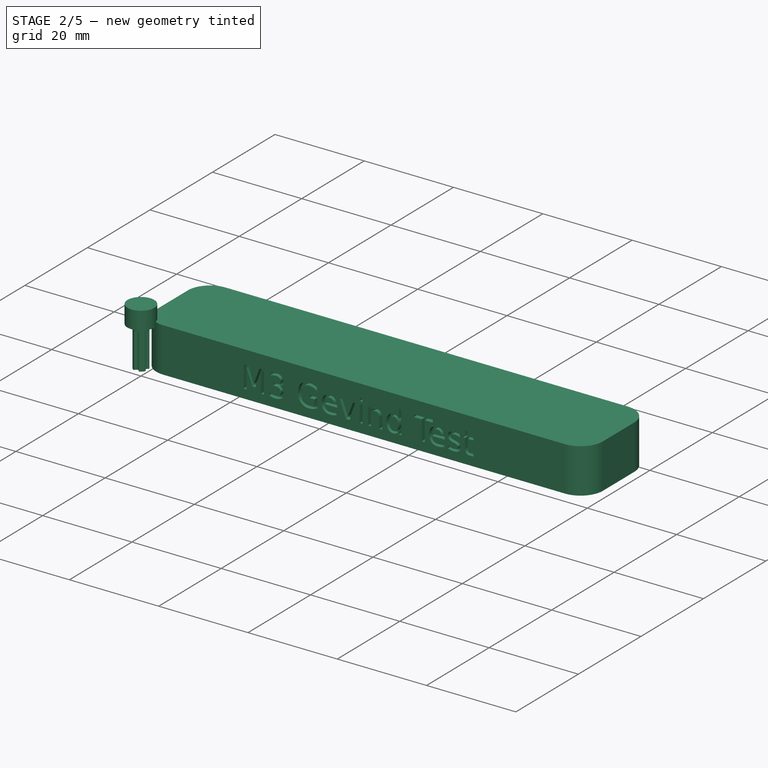
[diagram: stage 2 of 5 — iso view after this stage's code; geometry added in this stage tinted green]
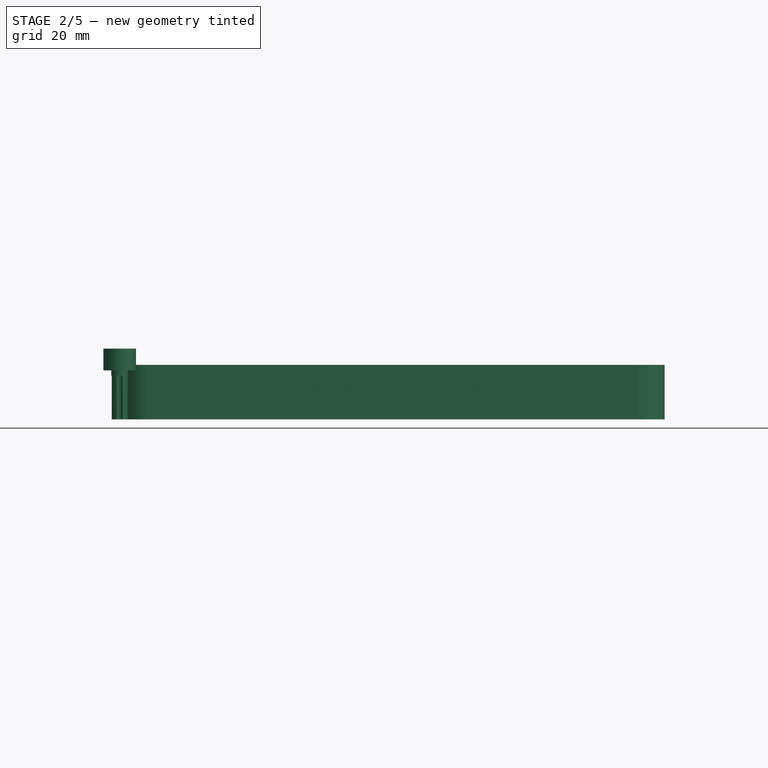
[diagram: stage 2 of 5 — front view after this stage's code; geometry added in this stage tinted green]
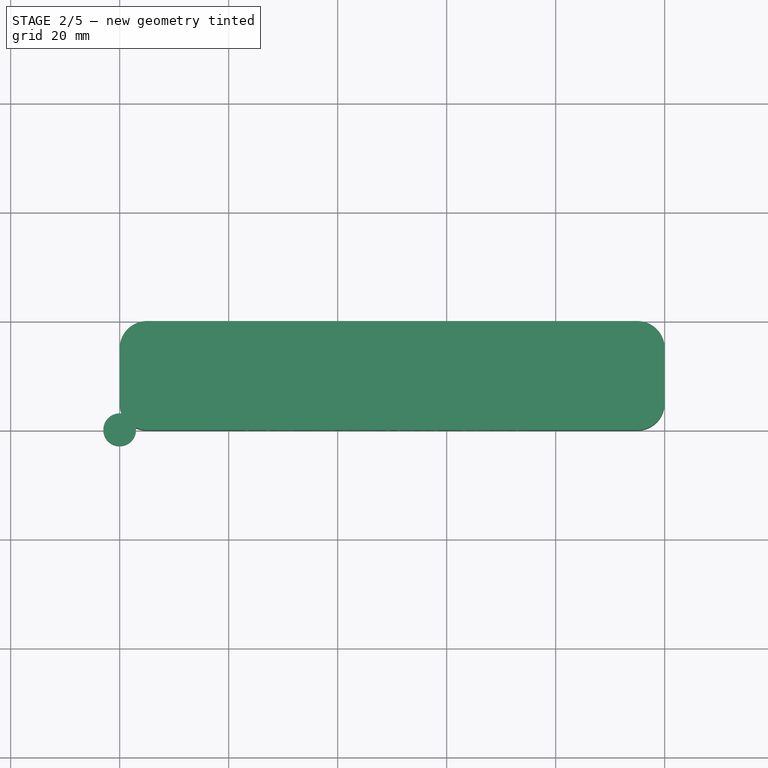
[diagram: stage 2 of 5 — top view after this stage's code; geometry added in this stage tinted green]
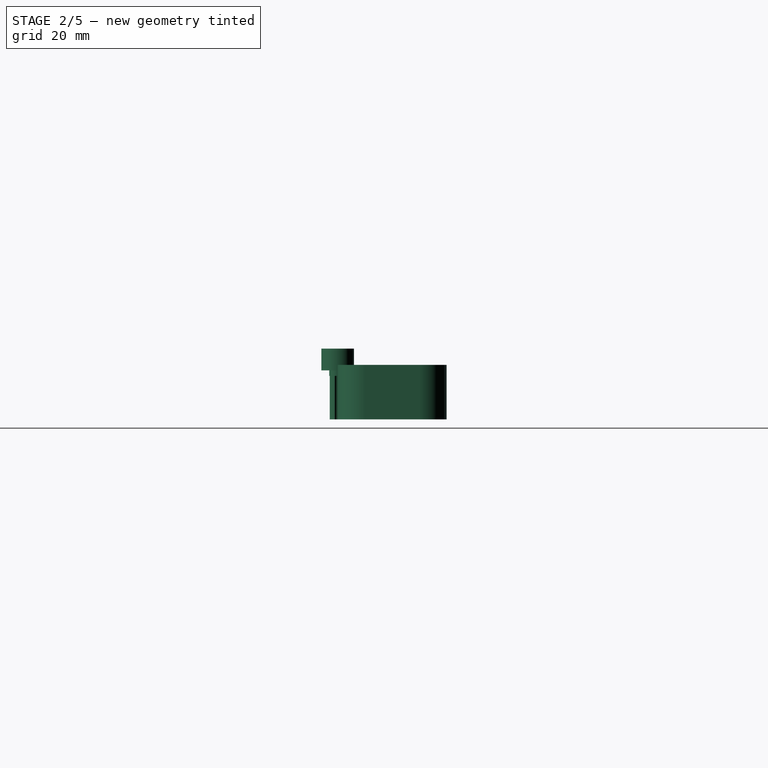
[diagram: stage 2 of 5 — right view after this stage's code; geometry added in this stage tinted green]
FEATURE [PartDesign::Body] Body011  label="M3-21"
  AllowCompound = true
  Group = -> [Sketch037,Pad029,Sketch038,Pocket017,Sketch039,Pad030,Pad031]
  Origin = -> Origin011
  Placement = pos=(15,5,0.5) rot=(0,0,1;0rad)
  Tip = -> Pad031
FEATURE [Sketcher::SketchObject] Sketch040
  ArcFitTolerance = 1e-06
  AttachmentSupport = -> [XY_Plane012]
  FullyConstrained = true
  MakeInternals = false
  MapMode = 5
  sketch-geometry (1):
    g0: Circle CenterX=0 CenterY=0 CenterZ=0 NormalX=0 NormalY=0 NormalZ=1 AngleXU=0 Radius=1.55
  constraints (2):
    c: Coincident(g0,g-1)
    c: Diameter(g0) = 3.1
FEATURE [PartDesign::Pad] Pad032
  Direction = (0,0,1)
  Length = 10
  Length2 = 10
  Profile = -> Sketch040
  ReferenceAxis = -> Sketch040 [N_Axis]
  Refine = true
  Reversed = true
  Suppressed = false
  Type = 0
FEATURE [Sketcher::SketchObject] Sketch041
  ArcFitTolerance = 1e-06
  AttachmentOffset = pos=(0,0,-2) rot=(0,0,1;0rad)
  AttachmentSupport = -> [XY_Plane012]
  ExternalGeometry = -> [Pad032]
  FullyConstrained = true
  MakeInternals = false
  MapMode = 5
  Placement = pos=(0,0,-2) rot=(0,0,1;0rad)
  sketch-geometry (5):
    g0: Circle [constr] CenterX=0 CenterY=0 CenterZ=0 NormalX=0 NormalY=0 NormalZ=1 AngleXU=0 Radius=1
    g1: Circle CenterX=0 CenterY=1.55 CenterZ=0 NormalX=0 NormalY=0 NormalZ=1 AngleXU=0 Radius=0.55
    g2: Circle CenterX=1.55 CenterY=0 CenterZ=0 NormalX=0 NormalY=0 NormalZ=1 AngleXU=0 Radius=0.55
    g3: Circle CenterX=-1.55 CenterY=0 CenterZ=0 NormalX=0 NormalY=0 NormalZ=1 AngleXU=0 Radius=0.55
    g4: Circle CenterX=0 CenterY=-1.55 CenterZ=0 NormalX=0 NormalY=0 NormalZ=1 AngleXU=0 Radius=0.55
  constraints (14):
    c: Diameter(g0) = 2
    c: Coincident(g0,g-1)
    c: PointOnObject(g1,g-2)
    c: PointOnObject(g2,g-1)
    c: PointOnObject(g3,g-1)
    c: PointOnObject(g4,g-2)
    c: Tangent(g3,g0)
    c: PointOnObject(g3,g-3)
    c: Tangent(g1,g0)
    c: Tangent(g2,g0)
    c: Tangent(g4,g0)
    c: Equal(g3,g4)
    c: Equal(g4,g2)
    c: Equal(g2,g1)
FEATURE [PartDesign::Pocket] Pocket018
  BaseFeature = -> Pad032
  Direction = (0,0,-1)
  Length = 10
  Length2 = 5
  Profile = -> Sketch041
  ReferenceAxis = -> Sketch041 [N_Axis]
  Refine = true
  Suppressed = false
  Type = 0
FEATURE [PartDesign::Body] Body012  label="M3-22"
  AllowCompound = true
  Group = -> [Sketch040,Pad032,Sketch041,Pocket018,Sketch042,Pad033,Pad034]
  Origin = -> Origin012
  Placement = pos=(25,5,0) rot=(0,0,1;0rad)
  Tip = -> Pad034
FEATURE [Sketcher::SketchObject] Sketch043
  ArcFitTolerance = 1e-06
  AttachmentSupport = -> [XY_Plane013]
  FullyConstrained = true
  MakeInternals = false
  MapMode = 5
  sketch-geometry (1):
    g0: Circle CenterX=0 CenterY=0 CenterZ=0 NormalX=0 NormalY=0 NormalZ=1 AngleXU=0 Radius=1.55
  constraints (2):
    c: Coincident(g0,g-1)
    c: Diameter(g0) = 3.1
FEATURE [PartDesign::Pad] Pad035
  Direction = (0,0,1)
  Length = 10
  Length2 = 10
  Profile = -> Sketch043
  ReferenceAxis = -> Sketch043 [N_Axis]
  Refine = true
  Reversed = true
  Suppressed = false
  Type = 0
FEATURE [Sketcher::SketchObject] Sketch044
  ArcFitTolerance = 1e-06
  AttachmentOffset = pos=(0,0,-2) rot=(0,0,1;0rad)
  AttachmentSupport = -> [XY_Plane013]
  ExternalGeometry = -> [Pad035]
  FullyConstrained = true
  MakeInternals = false
  MapMode = 5
  Placement = pos=(0,0,-2) rot=(0,0,1;0rad)
  sketch-geometry (5):
    g0: Circle [constr] CenterX=0 CenterY=0 CenterZ=0 NormalX=0 NormalY=0 NormalZ=1 AngleXU=0 Radius=1
    g1: Circle CenterX=0 CenterY=1.55 CenterZ=0 NormalX=0 NormalY=0 NormalZ=1 AngleXU=0 Radius=0.55
    g2: Circle CenterX=1.55 CenterY=0 CenterZ=0 NormalX=0 NormalY=0 NormalZ=1 AngleXU=0 Radius=0.55
    g3: Circle CenterX=-1.55 CenterY=0 CenterZ=0 NormalX=0 NormalY=0 NormalZ=1 AngleXU=0 Radius=0.55
    g4: Circle CenterX=0 CenterY=-1.55 CenterZ=0 NormalX=0 NormalY=0 NormalZ=1 AngleXU=0 Radius=0.55
  constraints (14):
    c: Diameter(g0) = 2
    c: Coincident(g0,g-1)
    c: PointOnObject(g1,g-2)
    c: PointOnObject(g2,g-1)
    c: PointOnObject(g3,g-1)
    c: PointOnObject(g4,g-2)
    c: Tangent(g3,g0)
    c: PointOnObject(g3,g-3)
    c: Tangent(g1,g0)
    c: Tangent(g2,g0)
    c: Tangent(g4,g0)
    c: Equal(g3,g4)
    c: Equal(g4,g2)
    c: Equal(g2,g1)
FEATURE [PartDesign::Pocket] Pocket019
  BaseFeature = -> Pad035
  Direction = (0,0,-1)
  Length = 10
  Length2 = 5
  Profile = -> Sketch044
  ReferenceAxis = -> Sketch044 [N_Axis]
  Refine = true
  Suppressed = false
  Type = 0
FEATURE [Sketcher::SketchObject] Sketch045
  ArcFitTolerance = 1e-06
  AttachmentSupport = -> [XY_Plane013]
  ExternalGeometry = -> [Pocket019]
  FullyConstrained = true
  MakeInternals = false
  MapMode = 5
  sketch-geometry (1):
    g0: Circle CenterX=0 CenterY=0 CenterZ=0 NormalX=0 NormalY=0 NormalZ=1 AngleXU=0 Radius=3
  constraints (2):
    c: Coincident(g0,g-1)
    c: Diameter(g0) = 6
FEATURE [PartDesign::Pad] Pad036
  BaseFeature = -> Pocket019
  Direction = (0,0,1)
  Length = 1
  Length2 = 10
  Profile = -> Sketch045
  ReferenceAxis = -> Sketch045 [N_Axis]
  Refine = true
  Reversed = true
  Suppressed = false
  Type = 0
FEATURE [PartDesign::Pad] Pad037
  BaseFeature = -> Pad036
  Direction = (0,0,1)
  Length = 3
  Length2 = 10
  Profile = -> Sketch045
  ReferenceAxis = -> Sketch045 [N_Axis]
  Refine = true
  Suppressed = false
  Type = 0
FEATURE [PartDesign::Body] Body013  label="M3-23"
  AllowCompound = true
  Group = -> [Sketch043,Pad035,Sketch044,Pocket019,Sketch045,Pad036,Pad037]
  Origin = -> Origin013
  Placement = pos=(35,5,-0.5) rot=(0,0,1;0rad)
  Tip = -> Pad037
FEATURE [Sketcher::SketchObject] Sketch046
  ArcFitTolerance = 1e-06
  AttachmentSupport = -> [XY_Plane014]
  FullyConstrained = true
  MakeInternals = false
  MapMode = 5
  sketch-geometry (1):
    g0: Circle CenterX=0 CenterY=0 CenterZ=0 NormalX=0 NormalY=0 NormalZ=1 AngleXU=0 Radius=1.55
  constraints (2):
    c: Coincident(g0,g-1)
    c: Diameter(g0) = 3.1
FEATURE [PartDesign::Pad] Pad038
  Direction = (0,0,1)
  Length = 10
  Length2 = 10
  Profile = -> Sketch046
  ReferenceAxis = -> Sketch046 [N_Axis]
  Refine = true
  Reversed = true
  Suppressed = false
  Type = 0
FEATURE [Sketcher::SketchObject] Sketch047
  ArcFitTolerance = 1e-06
  AttachmentOffset = pos=(0,0,-2) rot=(0,0,1;0rad)
  AttachmentSupport = -> [XY_Plane014]
  ExternalGeometry = -> [Pad038]
  FullyConstrained = true
  MakeInternals = false
  MapMode = 5
  Placement = pos=(0,0,-2) rot=(0,0,1;0rad)
  sketch-geometry (5):
    g0: Circle [constr] CenterX=0 CenterY=0 CenterZ=0 NormalX=0 NormalY=0 NormalZ=1 AngleXU=0 Radius=1
    g1: Circle CenterX=0 CenterY=1.55 CenterZ=0 NormalX=0 NormalY=0 NormalZ=1 AngleXU=0 Radius=0.55
    g2: Circle CenterX=1.55 CenterY=0 CenterZ=0 NormalX=0 NormalY=0 NormalZ=1 AngleXU=0 Radius=0.55
    g3: Circle CenterX=-1.55 CenterY=0 CenterZ=0 NormalX=0 NormalY=0 NormalZ=1 AngleXU=0 Radius=0.55
    g4: Circle CenterX=0 CenterY=-1.55 CenterZ=0 NormalX=0 NormalY=0 NormalZ=1 AngleXU=0 Radius=0.55
  constraints (14):
    c: Diameter(g0) = 2
    c: Coincident(g0,g-1)
    c: PointOnObject(g1,g-2)
    c: PointOnObject(g2,g-1)
    c: PointOnObject(g3,g-1)
    c: PointOnObject(g4,g-2)
    c: Tangent(g3,g0)
    c: PointOnObject(g3,g-3)
    c: Tangent(g1,g0)
    c: Tangent(g2,g0)
    c: Tangent(g4,g0)
    c: Equal(g3,g4)
    c: Equal(g4,g2)
    c: Equal(g2,g1)
FEATURE [PartDesign::Pocket] Pocket020
  BaseFeature = -> Pad038
  Direction = (0,0,-1)
  Length = 10
  Length2 = 5
  Profile = -> Sketch047
  ReferenceAxis = -> Sketch047 [N_Axis]
  Refine = true
  Suppressed = false
  Type = 0
FEATURE [Sketcher::SketchObject] Sketch048
  ArcFitTolerance = 1e-06
  AttachmentSupport = -> [XY_Plane014]
  ExternalGeometry = -> [Pocket020]
  FullyConstrained = true
  MakeInternals = false
  MapMode = 5
  sketch-geometry (1):
    g0: Circle CenterX=0 CenterY=0 CenterZ=0 NormalX=0 NormalY=0 NormalZ=1 AngleXU=0 Radius=3
  constraints (2):
    c: Coincident(g0,g-1)
    c: Diameter(g0) = 6
FEATURE [PartDesign::Pad] Pad039
  BaseFeature = -> Pocket020
  Direction = (0,0,1)
  Length = 1
  Length2 = 10
  Profile = -> Sketch048
  ReferenceAxis = -> Sketch048 [N_Axis]
  Refine = true
  Reversed = true
  Suppressed = false
  Type = 0
FEATURE [PartDesign::Pad] Pad040
  BaseFeature = -> Pad039
  Direction = (0,0,1)
  Length = 3
  Length2 = 10
  Profile = -> Sketch048
  ReferenceAxis = -> Sketch048 [N_Axis]
  Refine = true
  Suppressed = false
  Type = 0
FEATURE [PartDesign::Body] Body014  label="M3-24"
  AllowCompound = true
  Group = -> [Sketch046,Pad038,Sketch047,Pocket020,Sketch048,Pad039,Pad040]
  Origin = -> Origin014
  Placement = pos=(45,5,-1) rot=(0,0,1;0rad)
  Tip = -> Pad040
FEATURE [Sketcher::SketchObject] Sketch049
  ArcFitTolerance = 1e-06
  AttachmentSupport = -> [XY_Plane015]
  FullyConstrained = true
  MakeInternals = false
  MapMode = 5
  sketch-geometry (1):
    g0: Circle CenterX=0 CenterY=0 CenterZ=0 NormalX=0 NormalY=0 NormalZ=1 AngleXU=0 Radius=1.55
  constraints (2):
    c: Coincident(g0,g-1)
    c: Diameter(g0) = 3.1
FEATURE [PartDesign::Pad] Pad041
  Direction = (0,0,1)
  Length = 10
  Length2 = 10
  Profile = -> Sketch049
  ReferenceAxis = -> Sketch049 [N_Axis]
  Refine = true
  Reversed = true
  Suppressed = false
  Type = 0
FEATURE [Sketcher::SketchObject] Sketch050
  ArcFitTolerance = 1e-06
  AttachmentOffset = pos=(0,0,-2) rot=(0,0,1;0rad)
  AttachmentSupport = -> [XY_Plane015]
  ExternalGeometry = -> [Pad041]
  FullyConstrained = true
  MakeInternals = false
  MapMode = 5
  Placement = pos=(0,0,-2) rot=(0,0,1;0rad)
  sketch-geometry (5):
    g0: Circle [constr] CenterX=0 CenterY=0 CenterZ=0 NormalX=0 NormalY=0 NormalZ=1 AngleXU=0 Radius=1
    g1: Circle CenterX=0 CenterY=1.55 CenterZ=0 NormalX=0 NormalY=0 NormalZ=1 AngleXU=0 Radius=0.55
    g2: Circle CenterX=1.55 CenterY=0 CenterZ=0 NormalX=0 NormalY=0 NormalZ=1 AngleXU=0 Radius=0.55
    g3: Circle CenterX=-1.55 CenterY=0 CenterZ=0 NormalX=0 NormalY=0 NormalZ=1 AngleXU=0 Radius=0.55
    g4: Circle CenterX=0 CenterY=-1.55 CenterZ=0 NormalX=0 NormalY=0 NormalZ=1 AngleXU=0 Radius=0.55
  constraints (14):
    c: Diameter(g0) = 2
    c: Coincident(g0,g-1)
    c: PointOnObject(g1,g-2)
    c: PointOnObject(g2,g-1)
    c: PointOnObject(g3,g-1)
    c: PointOnObject(g4,g-2)
    c: Tangent(g3,g0)
    c: PointOnObject(g3,g-3)
    c: Tangent(g1,g0)
    c: Tangent(g2,g0)
    c: Tangent(g4,g0)
    c: Equal(g3,g4)
    c: Equal(g4,g2)
    c: Equal(g2,g1)
FEATURE [PartDesign::Pocket] Pocket021
  BaseFeature = -> Pad041
  Direction = (0,0,-1)
  Length = 10
  Length2 = 5
  Profile = -> Sketch050
  ReferenceAxis = -> Sketch050 [N_Axis]
  Refine = true
  Suppressed = false
  Type = 0
FEATURE [Sketcher::SketchObject] Sketch051
  ArcFitTolerance = 1e-06
  AttachmentSupport = -> [XY_Plane015]
  ExternalGeometry = -> [Pocket021]
  FullyConstrained = true
  MakeInternals = false
  MapMode = 5
  sketch-geometry (1):
    g0: Circle CenterX=0 CenterY=0 CenterZ=0 NormalX=0 NormalY=0 NormalZ=1 AngleXU=0 Radius=3
  constraints (2):
    c: Coincident(g0,g-1)
    c: Diameter(g0) = 6
FEATURE [PartDesign::Pad] Pad042
  BaseFeature = -> Pocket021
  Direction = (0,0,1)
  Length = 1
  Length2 = 10
  Profile = -> Sketch051
  ReferenceAxis = -> Sketch051 [N_Axis]
  Refine = true
  Reversed = true
  Suppressed = false
  Type = 0
FEATURE [PartDesign::Pad] Pad043
  BaseFeature = -> Pad042
  Direction = (0,0,1)
  Length = 3
  Length2 = 10
  Profile = -> Sketch051
  ReferenceAxis = -> Sketch051 [N_Axis]
  Refine = true
  Suppressed = false
  Type = 0
FEATURE [Sketcher::SketchObject] Sketch054
  ArcFitTolerance = 1e-06
  AttachmentSupport = -> [XY_Plane016]
  ExternalGeometry = -> [Pocket022]
  FullyConstrained = true
  MakeInternals = false
  MapMode = 5
  sketch-geometry (1):
    g0: Circle CenterX=0 CenterY=0 CenterZ=0 NormalX=0 NormalY=0 NormalZ=1 AngleXU=0 Radius=3
  constraints (2):
    c: Coincident(g0,g-1)
    c: Diameter(g0) = 6
FEATURE [PartDesign::Pad] Pad045
  BaseFeature = -> Pocket022
  Direction = (0,0,1)
  Length = 1
  Length2 = 10
  Profile = -> Sketch054
  ReferenceAxis = -> Sketch054 [N_Axis]
  Refine = true
  Reversed = true
  Suppressed = false
  Type = 0
FEATURE [PartDesign::Pad] Pad046
  BaseFeature = -> Pad045
  Direction = (0,0,1)
  Length = 3
  Length2 = 10
  Profile = -> Sketch054
  ReferenceAxis = -> Sketch054 [N_Axis]
  Refine = true
  Suppressed = false
  Type = 0
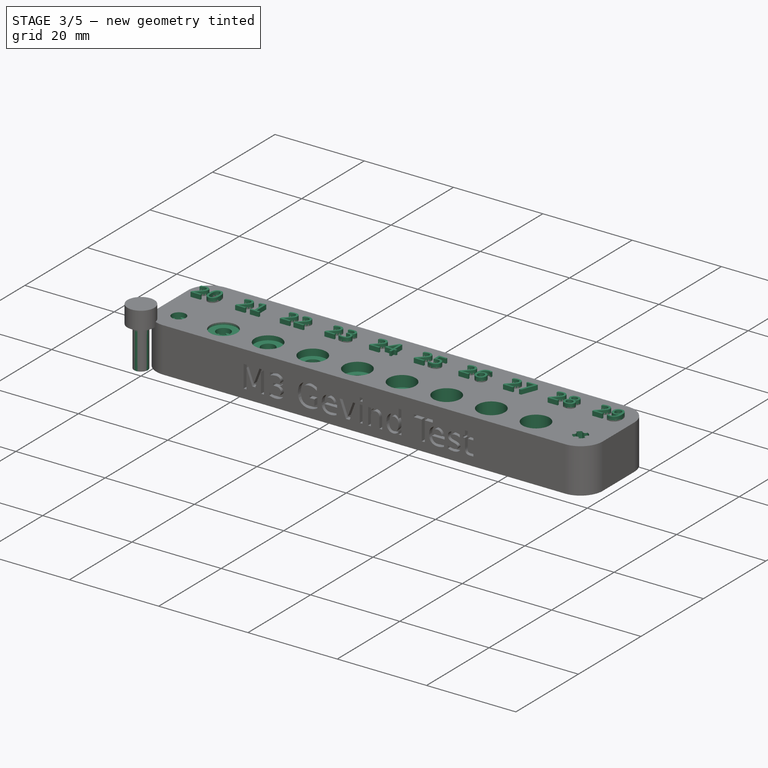
[diagram: stage 3 of 5 — iso view after this stage's code; geometry added in this stage tinted green]
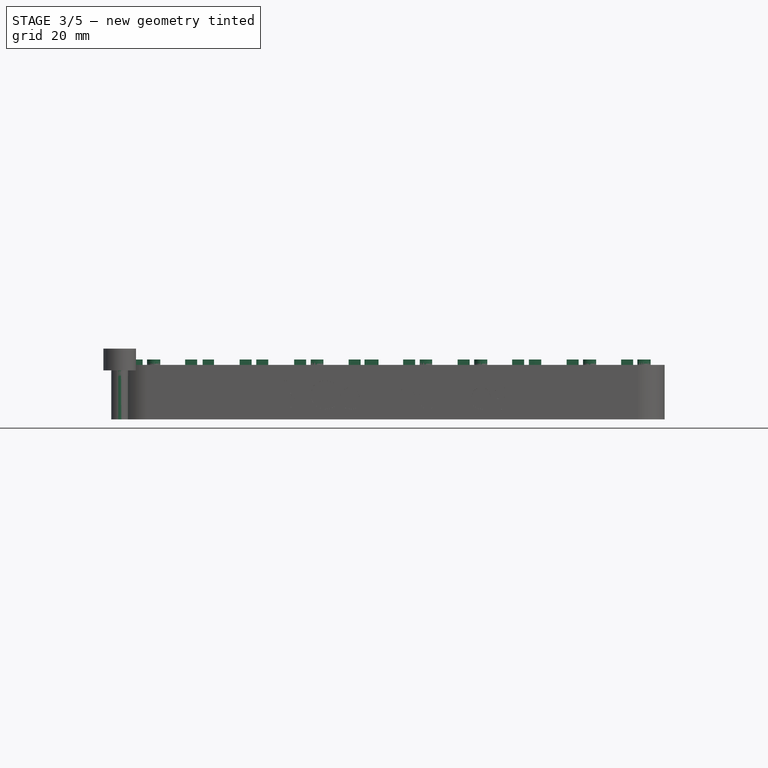
[diagram: stage 3 of 5 — front view after this stage's code; geometry added in this stage tinted green]
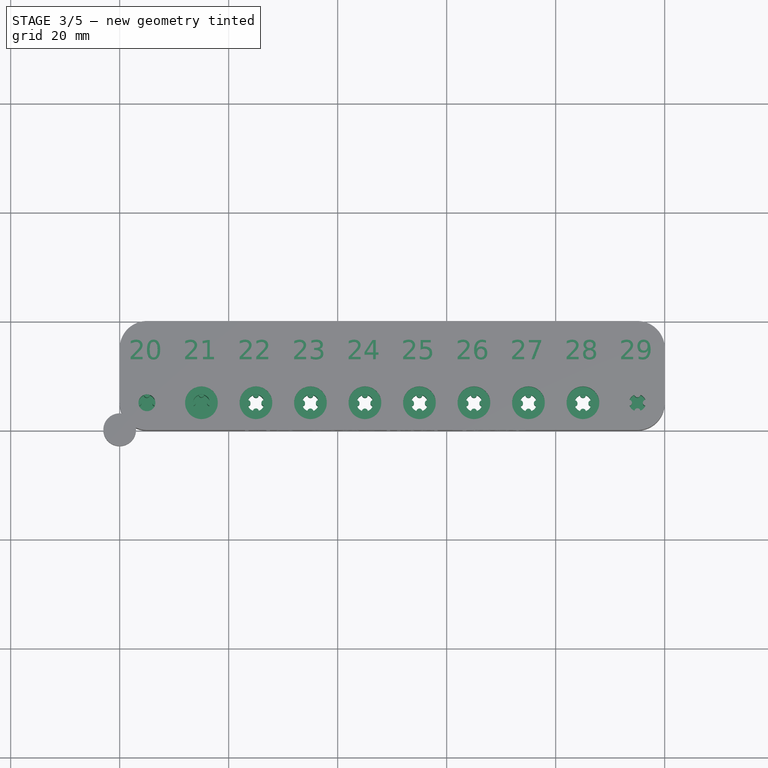
[diagram: stage 3 of 5 — top view after this stage's code; geometry added in this stage tinted green]
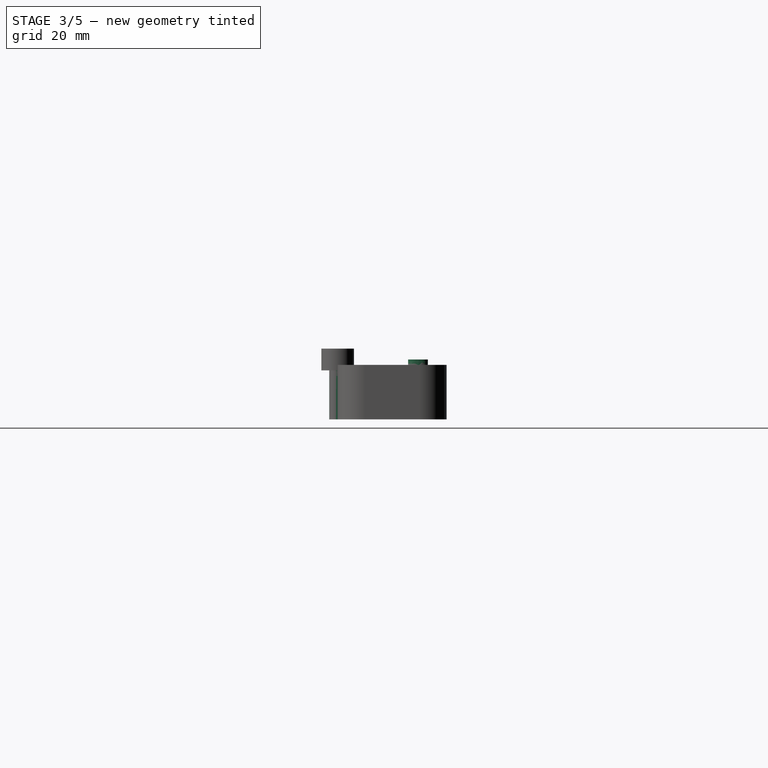
[diagram: stage 3 of 5 — right view after this stage's code; geometry added in this stage tinted green]
FEATURE [PartDesign::Body] Body005  label="M3-024"
  AllowCompound = true
  Group = -> [Sketch017,Pad013,Sketch018,Pocket008,Sketch019,Pad014,Pad015]
  Origin = -> Origin005
  Placement = pos=(8,0,-2) rot=(0,0,1;0rad)
  Tip = -> Pad015
FEATURE [Sketcher::SketchObject] Sketch021
  ArcFitTolerance = 1e-06
  AttachmentSupport = -> [XY_Plane006]
  FullyConstrained = true
  MakeInternals = false
  MapMode = 5
  sketch-geometry (1):
    g0: Circle CenterX=0 CenterY=0 CenterZ=0 NormalX=0 NormalY=0 NormalZ=1 AngleXU=0 Radius=1.55
  constraints (2):
    c: Coincident(g0,g-1)
    c: Diameter(g0) = 3.1
FEATURE [PartDesign::Pad] Pad016
  Direction = (0,0,1)
  Length = 10
  Length2 = 10
  Profile = -> Sketch021
  ReferenceAxis = -> Sketch021 [N_Axis]
  Refine = true
  Reversed = true
  Suppressed = false
  Type = 0
FEATURE [PartDesign::Body] Body006  label="M3-025"
  AllowCompound = true
  Group = -> [Sketch021,Pad016,Sketch022,Pocket010,Sketch023,Pad017,Pad018]
  Origin = -> Origin006
  Placement = pos=(16,0,-2.5) rot=(0,0,1;0rad)
  Tip = -> Pad018
FEATURE [Sketcher::SketchObject] Sketch025
  ArcFitTolerance = 1e-06
  AttachmentSupport = -> [XY_Plane007]
  FullyConstrained = true
  MakeInternals = false
  MapMode = 5
  sketch-geometry (1):
    g0: Circle CenterX=0 CenterY=0 CenterZ=0 NormalX=0 NormalY=0 NormalZ=1 AngleXU=0 Radius=1.55
  constraints (2):
    c: Coincident(g0,g-1)
    c: Diameter(g0) = 3.1
FEATURE [PartDesign::Pad] Pad019
  Direction = (0,0,1)
  Length = 10
  Length2 = 10
  Profile = -> Sketch025
  ReferenceAxis = -> Sketch025 [N_Axis]
  Refine = true
  Reversed = true
  Suppressed = false
  Type = 0
FEATURE [Sketcher::SketchObject] Sketch026
  ArcFitTolerance = 1e-06
  AttachmentOffset = pos=(0,0,-2) rot=(0,0,1;0rad)
  AttachmentSupport = -> [XY_Plane007]
  ExternalGeometry = -> [Pad019]
  FullyConstrained = true
  MakeInternals = false
  MapMode = 5
  Placement = pos=(0,0,-2) rot=(0,0,1;0rad)
  sketch-geometry (5):
    g0: Circle [constr] CenterX=0 CenterY=0 CenterZ=0 NormalX=0 NormalY=0 NormalZ=1 AngleXU=0 Radius=1.3
    g1: Circle CenterX=0 CenterY=1.55 CenterZ=0 NormalX=0 NormalY=0 NormalZ=1 AngleXU=0 Radius=0.25
    g2: Circle CenterX=1.55 CenterY=0 CenterZ=0 NormalX=0 NormalY=0 NormalZ=1 AngleXU=0 Radius=0.25
    g3: Circle CenterX=-1.55 CenterY=0 CenterZ=0 NormalX=0 NormalY=0 NormalZ=1 AngleXU=0 Radius=0.25
    g4: Circle CenterX=0 CenterY=-1.55 CenterZ=0 NormalX=0 NormalY=0 NormalZ=1 AngleXU=0 Radius=0.25
  constraints (14):
    c: Diameter(g0) = 2.6
    c: Coincident(g0,g-1)
    c: PointOnObject(g1,g-2)
    c: PointOnObject(g2,g-1)
    c: PointOnObject(g3,g-1)
    c: PointOnObject(g4,g-2)
    c: Tangent(g3,g0)
    c: PointOnObject(g3,g-3)
    c: Tangent(g1,g0)
    c: Tangent(g2,g0)
    c: Tangent(g4,g0)
    c: Equal(g3,g4)
    c: Equal(g4,g2)
    c: Equal(g2,g1)
FEATURE [PartDesign::Pocket] Pocket012
  BaseFeature = -> Pad019
  Direction = (0,0,-1)
  Length = 10
  Length2 = 5
  Profile = -> Sketch026
  ReferenceAxis = -> Sketch026 [N_Axis]
  Refine = true
  Suppressed = false
  Type = 0
FEATURE [Sketcher::SketchObject] Sketch027
  ArcFitTolerance = 1e-06
  AttachmentSupport = -> [XY_Plane007]
  ExternalGeometry = -> [Pocket012]
  FullyConstrained = true
  MakeInternals = false
  MapMode = 5
  sketch-geometry (1):
    g0: Circle CenterX=0 CenterY=0 CenterZ=0 NormalX=0 NormalY=0 NormalZ=1 AngleXU=0 Radius=3
  constraints (2):
    c: Coincident(g0,g-1)
    c: Diameter(g0) = 6
FEATURE [PartDesign::Pad] Pad020
  BaseFeature = -> Pocket012
  Direction = (0,0,1)
  Length = 1
  Length2 = 10
  Profile = -> Sketch027
  ReferenceAxis = -> Sketch027 [N_Axis]
  Refine = true
  Reversed = true
  Suppressed = false
  Type = 0
FEATURE [PartDesign::Pad] Pad021
  BaseFeature = -> Pad020
  Direction = (0,0,1)
  Length = 3
  Length2 = 10
  Profile = -> Sketch027
  ReferenceAxis = -> Sketch027 [N_Axis]
  Refine = true
  Suppressed = false
  Type = 0
FEATURE [PartDesign::Body] Body
  AllowCompound = true
  Group = -> [Sketch,Pad,Boolean,Chamfer,Sketch031,Sketch032,Pocket014,Pocket015]
  Origin = -> Origin
  Tip = -> Pocket015
FEATURE [Sketcher::SketchObject] Sketch033
  ArcFitTolerance = 1e-06
  AttachmentSupport = -> [XY_Plane009]
  FullyConstrained = true
  MakeInternals = false
  MapMode = 5
  sketch-geometry (12):
    g0: LineSegment StartX=5 StartY=0 StartZ=0 EndX=95 EndY=0 EndZ=0
    g1: LineSegment StartX=100 StartY=5 StartZ=0 EndX=100 EndY=15 EndZ=0
    g2: LineSegment StartX=95 StartY=20 StartZ=0 EndX=5 EndY=20 EndZ=0
    g3: LineSegment StartX=0 StartY=15 StartZ=0 EndX=0 EndY=5 EndZ=0
    g4: ArcOfCircle CenterX=5 CenterY=15 CenterZ=0 NormalX=0 NormalY=0 NormalZ=1 AngleXU=0 Radius=5 StartAngle=1.5708 EndAngle=3.14159
    g5: GeomPoint [constr] X=0 Y=20 Z=0
    g6: ArcOfCircle CenterX=5 CenterY=5 CenterZ=0 NormalX=0 NormalY=0 NormalZ=1 AngleXU=0 Radius=5 StartAngle=3.14159 EndAngle=4.71239
    g7: GeomPoint [constr] X=0 Y=0 Z=0
    g8: ArcOfCircle CenterX=95 CenterY=5 CenterZ=0 NormalX=0 NormalY=0 NormalZ=1 AngleXU=0 Radius=5 StartAngle=4.71239 EndAngle=6.28319
    g9: GeomPoint [constr] X=100 Y=0 Z=0
    g10: ArcOfCircle CenterX=95 CenterY=15 CenterZ=0 NormalX=0 NormalY=0 NormalZ=1 AngleXU=0 Radius=5 StartAngle=0 EndAngle=1.5708
    g11: GeomPoint [constr] X=100 Y=20 Z=0
  constraints (27):
    c: Horizontal(g0)
    c: Horizontal(g2)
    c: Vertical(g1)
    c: Vertical(g3)
    c: Distance(g9,g7) = 100
    c: Distance(g7,g5) = 20
    c: Coincident(g7,g-1)
    c: PointOnObject(g5,g2)
    c: PointOnObject(g5,g3)
    c: Tangent(g2,g4) = -1.5708
    c: Tangent(g3,g4) = -1.5708
    c: PointOnObject(g7,g3)
    c: PointOnObject(g7,g0)
    c: Tangent(g3,g6) = -1.5708
    c: Tangent(g0,g6) = -1.5708
    c: PointOnObject(g9,g0)
    c: PointOnObject(g9,g1)
    c: Tangent(g0,g8) = -1.5708
    c: Tangent(g1,g8) = -1.5708
    c: PointOnObject(g11,g1)
    c: PointOnObject(g11,g2)
    c: Tangent(g1,g10) = -1.5708
    c: Tangent(g2,g10) = -1.5708
    c: Radius(g10) = 5
    c: Equal(g10,g4)
    c: Equal(g4,g8)
    c: Equal(g8,g6)
FEATURE [Part::Part2DObjectPython] ShapeString008  label="ShapeString_M3"  # Draft 2D object (typed FeaturePython)
  FontFile = <path>
  Fuse = false
  Justification = 6
  JustificationReference = 0
  KeepLeftMargin = false
  MakeFace = true
  ObliqueAngle = 0
  Placement = pos=(23,0,-8) rot=(1,0,0;1.5708rad)
  ScaleToSize = true
  Size = 5
  String = M3 Gevind Test
  Tracking = 0
FEATURE [Part::Part2DObjectPython] ShapeString009  label="ShapeString_20"  # Draft 2D object (typed FeaturePython)
  FontFile = <path>
  Fuse = false
  Justification = 6
  JustificationReference = 0
  KeepLeftMargin = false
  MakeFace = true
  ObliqueAngle = 0
  Placement = pos=(2,13,0) rot=(0,0,1;0rad)
  ScaleToSize = true
  Size = 3.5
  String = 20
  Tracking = 0
FEATURE [Part::Part2DObjectPython] ShapeString010  label="ShapeString_21"  # Draft 2D object (typed FeaturePython)
  FontFile = <path>
  Fuse = false
  Justification = 6
  JustificationReference = 0
  KeepLeftMargin = false
  MakeFace = true
  ObliqueAngle = 0
  Placement = pos=(12,13,0) rot=(0,0,1;0rad)
  ScaleToSize = true
  Size = 3.5
  String = 21
  Tracking = 0
FEATURE [Part::Part2DObjectPython] ShapeString011  label="ShapeString_22"  # Draft 2D object (typed FeaturePython)
  FontFile = <path>
  Fuse = false
  Justification = 6
  JustificationReference = 0
  KeepLeftMargin = false
  MakeFace = true
  ObliqueAngle = 0
  Placement = pos=(22,13,0) rot=(0,0,1;0rad)
  ScaleToSize = true
  Size = 3.5
  String = 22
  Tracking = 0
FEATURE [Part::Part2DObjectPython] ShapeString012  label="ShapeString_23"  # Draft 2D object (typed FeaturePython)
  FontFile = <path>
  Fuse = false
  Justification = 6
  JustificationReference = 0
  KeepLeftMargin = false
  MakeFace = true
  ObliqueAngle = 0
  Placement = pos=(32,13,0) rot=(0,0,1;0rad)
  ScaleToSize = true
  Size = 3.5
  String = 23
  Tracking = 0
FEATURE [Part::Part2DObjectPython] ShapeString013  label="ShapeString_24"  # Draft 2D object (typed FeaturePython)
  FontFile = <path>
  Fuse = false
  Justification = 6
  JustificationReference = 0
  KeepLeftMargin = false
  MakeFace = true
  ObliqueAngle = 0
  Placement = pos=(42,13,0) rot=(0,0,1;0rad)
  ScaleToSize = true
  Size = 3.5
  String = 24
  Tracking = 0
FEATURE [Part::Part2DObjectPython] ShapeString014  label="ShapeString_25"  # Draft 2D object (typed FeaturePython)
  FontFile = <path>
  Fuse = false
  Justification = 6
  JustificationReference = 0
  KeepLeftMargin = false
  MakeFace = true
  ObliqueAngle = 0
  Placement = pos=(52,13,0) rot=(0,0,1;0rad)
  ScaleToSize = true
  Size = 3.5
  String = 25
  Tracking = 0
FEATURE [Part::Part2DObjectPython] ShapeString015  label="ShapeString_26"  # Draft 2D object (typed FeaturePython)
  FontFile = <path>
  Fuse = false
  Justification = 6
  JustificationReference = 0
  KeepLeftMargin = false
  MakeFace = true
  ObliqueAngle = 0
  Placement = pos=(62,13,0) rot=(0,0,1;0rad)
  ScaleToSize = true
  Size = 3.5
  String = 26
  Tracking = 0
FEATURE [Sketcher::SketchObject] Sketch034
  ArcFitTolerance = 1e-06
  AttachmentSupport = -> [XY_Plane010]
  FullyConstrained = true
  MakeInternals = false
  MapMode = 5
  sketch-geometry (1):
    g0: Circle CenterX=0 CenterY=0 CenterZ=0 NormalX=0 NormalY=0 NormalZ=1 AngleXU=0 Radius=1.55
  constraints (2):
    c: Coincident(g0,g-1)
    c: Diameter(g0) = 3.1
FEATURE [PartDesign::Pad] Pad025
  Direction = (0,0,1)
  Length = 10
  Length2 = 10
  Profile = -> Sketch034
  ReferenceAxis = -> Sketch034 [N_Axis]
  Refine = true
  Reversed = true
  Suppressed = false
  Type = 0
FEATURE [Sketcher::SketchObject] Sketch035
  ArcFitTolerance = 1e-06
  AttachmentOffset = pos=(0,0,-2) rot=(0,0,1;0rad)
  AttachmentSupport = -> [XY_Plane010]
  ExternalGeometry = -> [Pad025]
  FullyConstrained = true
  MakeInternals = false
  MapMode = 5
  Placement = pos=(0,0,-2) rot=(0,0,1;0rad)
  sketch-geometry (5):
    g0: Circle [constr] CenterX=0 CenterY=0 CenterZ=0 NormalX=0 NormalY=0 NormalZ=1 AngleXU=0 Radius=1
    g1: Circle CenterX=0 CenterY=1.55 CenterZ=0 NormalX=0 NormalY=0 NormalZ=1 AngleXU=0 Radius=0.55
    g2: Circle CenterX=1.55 CenterY=0 CenterZ=0 NormalX=0 NormalY=0 NormalZ=1 AngleXU=0 Radius=0.55
    g3: Circle CenterX=-1.55 CenterY=0 CenterZ=0 NormalX=0 NormalY=0 NormalZ=1 AngleXU=0 Radius=0.55
    g4: Circle CenterX=0 CenterY=-1.55 CenterZ=0 NormalX=0 NormalY=0 NormalZ=1 AngleXU=0 Radius=0.55
  constraints (14):
    c: Diameter(g0) = 2
    c: Coincident(g0,g-1)
    c: PointOnObject(g1,g-2)
    c: PointOnObject(g2,g-1)
    c: PointOnObject(g3,g-1)
    c: PointOnObject(g4,g-2)
    c: Tangent(g3,g0)
    c: PointOnObject(g3,g-3)
    c: Tangent(g1,g0)
    c: Tangent(g2,g0)
    c: Tangent(g4,g0)
    c: Equal(g3,g4)
    c: Equal(g4,g2)
    c: Equal(g2,g1)
FEATURE [PartDesign::Pocket] Pocket016
  BaseFeature = -> Pad025
  Direction = (0,0,-1)
  Length = 10
  Length2 = 5
  Profile = -> Sketch035
  ReferenceAxis = -> Sketch035 [N_Axis]
  Refine = true
  Suppressed = false
  Type = 0
FEATURE [Sketcher::SketchObject] Sketch036
  ArcFitTolerance = 1e-06
  AttachmentSupport = -> [XY_Plane010]
  ExternalGeometry = -> [Pocket016]
  FullyConstrained = true
  MakeInternals = false
  MapMode = 5
  sketch-geometry (1):
    g0: Circle CenterX=0 CenterY=0 CenterZ=0 NormalX=0 NormalY=0 NormalZ=1 AngleXU=0 Radius=3
  constraints (2):
    c: Coincident(g0,g-1)
    c: Diameter(g0) = 6
FEATURE [PartDesign::Pad] Pad026
  BaseFeature = -> Pocket016
  Direction = (0,0,1)
  Length = 1
  Length2 = 10
  Profile = -> Sketch036
  ReferenceAxis = -> Sketch036 [N_Axis]
  Refine = true
  Reversed = true
  Suppressed = false
  Type = 0
FEATURE [PartDesign::Pad] Pad027
  BaseFeature = -> Pad026
  Direction = (0,0,1)
  Length = 3
  Length2 = 10
  Profile = -> Sketch036
  ReferenceAxis = -> Sketch036 [N_Axis]
  Refine = true
  Suppressed = false
  Type = 0
FEATURE [Sketcher::SketchObject] Sketch037
  ArcFitTolerance = 1e-06
  AttachmentSupport = -> [XY_Plane011]
  FullyConstrained = true
  MakeInternals = false
  MapMode = 5
  sketch-geometry (1):
    g0: Circle CenterX=0 CenterY=0 CenterZ=0 NormalX=0 NormalY=0 NormalZ=1 AngleXU=0 Radius=1.55
  constraints (2):
    c: Coincident(g0,g-1)
    c: Diameter(g0) = 3.1
FEATURE [PartDesign::Pad] Pad029
  Direction = (0,0,1)
  Length = 10
  Length2 = 10
  Profile = -> Sketch037
  ReferenceAxis = -> Sketch037 [N_Axis]
  Refine = true
  Reversed = true
  Suppressed = false
  Type = 0
FEATURE [Sketcher::SketchObject] Sketch038
  ArcFitTolerance = 1e-06
  AttachmentOffset = pos=(0,0,-2) rot=(0,0,1;0rad)
  AttachmentSupport = -> [XY_Plane011]
  ExternalGeometry = -> [Pad029]
  FullyConstrained = true
  MakeInternals = false
  MapMode = 5
  Placement = pos=(0,0,-2) rot=(0,0,1;0rad)
  sketch-geometry (5):
    g0: Circle [constr] CenterX=0 CenterY=0 CenterZ=0 NormalX=0 NormalY=0 NormalZ=1 AngleXU=0 Radius=1.05
    g1: Circle CenterX=0 CenterY=1.55 CenterZ=0 NormalX=0 NormalY=0 NormalZ=1 AngleXU=0 Radius=0.5
    g2: Circle CenterX=1.55 CenterY=0 CenterZ=0 NormalX=0 NormalY=0 NormalZ=1 AngleXU=0 Radius=0.5
    g3: Circle CenterX=-1.55 CenterY=0 CenterZ=0 NormalX=0 NormalY=0 NormalZ=1 AngleXU=0 Radius=0.5
    g4: Circle CenterX=0 CenterY=-1.55 CenterZ=0 NormalX=0 NormalY=0 NormalZ=1 AngleXU=0 Radius=0.5
  constraints (14):
    c: Diameter(g0) = 2.1
    c: Coincident(g0,g-1)
    c: PointOnObject(g1,g-2)
    c: PointOnObject(g2,g-1)
    c: PointOnObject(g3,g-1)
    c: PointOnObject(g4,g-2)
    c: Tangent(g3,g0)
    c: PointOnObject(g3,g-3)
    c: Tangent(g1,g0)
    c: Tangent(g2,g0)
    c: Tangent(g4,g0)
    c: Equal(g3,g4)
    c: Equal(g4,g2)
    c: Equal(g2,g1)
FEATURE [PartDesign::Pocket] Pocket017
  BaseFeature = -> Pad029
  Direction = (0,0,-1)
  Length = 10
  Length2 = 5
  Profile = -> Sketch038
  ReferenceAxis = -> Sketch038 [N_Axis]
  Refine = true
  Suppressed = false
  Type = 0
FEATURE [Sketcher::SketchObject] Sketch039
  ArcFitTolerance = 1e-06
  AttachmentSupport = -> [XY_Plane011]
  ExternalGeometry = -> [Pocket017]
  FullyConstrained = true
  MakeInternals = false
  MapMode = 5
  sketch-geometry (1):
    g0: Circle CenterX=0 CenterY=0 CenterZ=0 NormalX=0 NormalY=0 NormalZ=1 AngleXU=0 Radius=3
  constraints (2):
    c: Coincident(g0,g-1)
    c: Diameter(g0) = 6
FEATURE [PartDesign::Pad] Pad030
  BaseFeature = -> Pocket017
  Direction = (0,0,1)
  Length = 1
  Length2 = 10
  Profile = -> Sketch039
  ReferenceAxis = -> Sketch039 [N_Axis]
  Refine = true
  Reversed = true
  Suppressed = false
  Type = 0
FEATURE [PartDesign::Pad] Pad031
  BaseFeature = -> Pad030
  Direction = (0,0,1)
  Length = 3
  Length2 = 10
  Profile = -> Sketch039
  ReferenceAxis = -> Sketch039 [N_Axis]
  Refine = true
  Suppressed = false
  Type = 0
FEATURE [Sketcher::SketchObject] Sketch042
  ArcFitTolerance = 1e-06
  AttachmentSupport = -> [XY_Plane012]
  ExternalGeometry = -> [Pocket018]
  FullyConstrained = true
  MakeInternals = false
  MapMode = 5
  sketch-geometry (1):
    g0: Circle CenterX=0 CenterY=0 CenterZ=0 NormalX=0 NormalY=0 NormalZ=1 AngleXU=0 Radius=3
  constraints (2):
    c: Coincident(g0,g-1)
    c: Diameter(g0) = 6
FEATURE [PartDesign::Pad] Pad033
  BaseFeature = -> Pocket018
  Direction = (0,0,1)
  Length = 1
  Length2 = 10
  Profile = -> Sketch042
  ReferenceAxis = -> Sketch042 [N_Axis]
  Refine = true
  Reversed = true
  Suppressed = false
  Type = 0
FEATURE [PartDesign::Pad] Pad034
  BaseFeature = -> Pad033
  Direction = (0,0,1)
  Length = 3
  Length2 = 10
  Profile = -> Sketch042
  ReferenceAxis = -> Sketch042 [N_Axis]
  Refine = true
  Suppressed = false
  Type = 0
FEATURE [PartDesign::Boolean] Boolean001
  BaseFeature = -> Pocket027
  Group = -> [Body010,Body011,Body012,Body013,Body014,Body015,Body016,Body017,Body018,Body019]
  Refine = true
  Suppressed = false
  Type = 1
  UsePlacement = true
FEATURE [Sketcher::SketchObject] Sketch066
  ArcFitTolerance = 1e-06
  FullyConstrained = false
  MakeInternals = false
  sketch-geometry (412):
    g0: LineSegment StartX=2.56953 StartY=13.4 StartZ=0 EndX=4.22188 EndY=13.4 EndZ=0
    g1: BSplineCurve PolesCount=3 KnotsCount=2 Degree=2 IsPeriodic=0
    g2: BSplineCurve PolesCount=3 KnotsCount=2 Degree=2 IsPeriodic=0
    g3: BSplineCurve PolesCount=3 KnotsCount=2 Degree=2 IsPeriodic=0
    g4: BSplineCurve PolesCount=3 KnotsCount=2 Degree=2 IsPeriodic=0
    g5: BSplineCurve PolesCount=3 KnotsCount=2 Degree=2 IsPeriodic=0
    g6: BSplineCurve PolesCount=3 KnotsCount=2 Degree=2 IsPeriodic=0
    g7: BSplineCurve PolesCount=3 KnotsCount=2 Degree=2 IsPeriodic=0
    g8: BSplineCurve PolesCount=3 KnotsCount=2 Degree=2 IsPeriodic=0
    g9: LineSegment StartX=2.02344 StartY=15.85 StartZ=0 EndX=2.02344 EndY=16.33 EndZ=0
    g10: BSplineCurve PolesCount=3 KnotsCount=2 Degree=2 IsPeriodic=0
    g11: BSplineCurve PolesCount=3 KnotsCount=2 Degree=2 IsPeriodic=0
    g12: BSplineCurve PolesCount=3 KnotsCount=2 Degree=2 IsPeriodic=0
    g13: BSplineCurve PolesCount=3 KnotsCount=2 Degree=2 IsPeriodic=0
    g14: BSplineCurve PolesCount=3 KnotsCount=2 Degree=2 IsPeriodic=0
    g15: BSplineCurve PolesCount=3 KnotsCount=2 Degree=2 IsPeriodic=0
    g16: BSplineCurve PolesCount=3 KnotsCount=2 Degree=2 IsPeriodic=0
    g17: BSplineCurve PolesCount=3 KnotsCount=2 Degree=2 IsPeriodic=0
    g18: LineSegment StartX=2 StartY=13 StartZ=0 EndX=2 EndY=13.4 EndZ=0
    g19: LineSegment StartX=4.22188 StartY=13 StartZ=0 EndX=2 EndY=13 EndZ=0
    g20: LineSegment StartX=4.22188 StartY=13.4 StartZ=0 EndX=4.22188 EndY=13 EndZ=0
    g21: BSplineCurve PolesCount=3 KnotsCount=2 Degree=2 IsPeriodic=0
    g22: BSplineCurve PolesCount=3 KnotsCount=2 Degree=2 IsPeriodic=0
    g23: BSplineCurve PolesCount=3 KnotsCount=2 Degree=2 IsPeriodic=0
    g24: BSplineCurve PolesCount=3 KnotsCount=2 Degree=2 IsPeriodic=0
    g25: BSplineCurve PolesCount=3 KnotsCount=2 Degree=2 IsPeriodic=0
    g26: BSplineCurve PolesCount=3 KnotsCount=2 Degree=2 IsPeriodic=0
    g27: BSplineCurve PolesCount=3 KnotsCount=2 Degree=2 IsPeriodic=0
    g28: BSplineCurve PolesCount=3 KnotsCount=2 Degree=2 IsPeriodic=0
    g29: BSplineCurve PolesCount=3 KnotsCount=2 Degree=2 IsPeriodic=0
    g30: BSplineCurve PolesCount=3 KnotsCount=2 Degree=2 IsPeriodic=0
    g31: BSplineCurve PolesCount=3 KnotsCount=2 Degree=2 IsPeriodic=0
    g32: BSplineCurve PolesCount=3 KnotsCount=2 Degree=2 IsPeriodic=0
    g33: BSplineCurve PolesCount=3 KnotsCount=2 Degree=2 IsPeriodic=0
    g34: BSplineCurve PolesCount=3 KnotsCount=2 Degree=2 IsPeriodic=0
    g35: BSplineCurve PolesCount=3 KnotsCount=2 Degree=2 IsPeriodic=0
    g36: BSplineCurve PolesCount=3 KnotsCount=2 Degree=2 IsPeriodic=0
    g37: LineSegment StartX=12.5695 StartY=13.4 StartZ=0 EndX=14.2219 EndY=13.4 EndZ=0
    g38: BSplineCurve PolesCount=3 KnotsCount=2 Degree=2 IsPeriodic=0
    g39: BSplineCurve PolesCount=3 KnotsCount=2 Degree=2 IsPeriodic=0
    g40: BSplineCurve PolesCount=3 KnotsCount=2 Degree=2 IsPeriodic=0
    g41: BSplineCurve PolesCount=3 KnotsCount=2 Degree=2 IsPeriodic=0
    g42: BSplineCurve PolesCount=3 KnotsCount=2 Degree=2 IsPeriodic=0
    g43: BSplineCurve PolesCount=3 KnotsCount=2 Degree=2 IsPeriodic=0
    g44: BSplineCurve PolesCount=3 KnotsCount=2 Degree=2 IsPeriodic=0
    g45: BSplineCurve PolesCount=3 KnotsCount=2 Degree=2 IsPeriodic=0
    g46: LineSegment StartX=12.0234 StartY=15.85 StartZ=0 EndX=12.0234 EndY=16.33 EndZ=0
    g47: BSplineCurve PolesCount=3 KnotsCount=2 Degree=2 IsPeriodic=0
    g48: BSplineCurve PolesCount=3 KnotsCount=2 Degree=2 IsPeriodic=0
    g49: BSplineCurve PolesCount=3 KnotsCount=2 Degree=2 IsPeriodic=0
    g50: BSplineCurve PolesCount=3 KnotsCount=2 Degree=2 IsPeriodic=0
    g51: BSplineCurve PolesCount=3 KnotsCount=2 Degree=2 IsPeriodic=0
    g52: BSplineCurve PolesCount=3 KnotsCount=2 Degree=2 IsPeriodic=0
    g53: BSplineCurve PolesCount=3 KnotsCount=2 Degree=2 IsPeriodic=0
    g54: BSplineCurve PolesCount=3 KnotsCount=2 Degree=2 IsPeriodic=0
    g55: LineSegment StartX=12 StartY=13 StartZ=0 EndX=12 EndY=13.4 EndZ=0
    g56: LineSegment StartX=14.2219 StartY=13 StartZ=0 EndX=12 EndY=13 EndZ=0
    g57: LineSegment StartX=14.2219 StartY=13.4 StartZ=0 EndX=14.2219 EndY=13 EndZ=0
    g58: LineSegment StartX=15.2938 StartY=13.4 StartZ=0 EndX=16.0672 EndY=13.4 EndZ=0
    g59: LineSegment StartX=15.2938 StartY=13 StartZ=0 EndX=15.2938 EndY=13.4 EndZ=0
    g60: LineSegment StartX=17.3094 StartY=13 StartZ=0 EndX=15.2938 EndY=13 EndZ=0
    g61: LineSegment StartX=17.3094 StartY=13.4 StartZ=0 EndX=17.3094 EndY=13 EndZ=0
    g62: LineSegment StartX=16.5359 StartY=13.4 StartZ=0 EndX=17.3094 EndY=13.4 EndZ=0
    g63: LineSegment StartX=16.5359 StartY=16.5 StartZ=0 EndX=16.5359 EndY=13.4 EndZ=0
    g64: LineSegment StartX=16.0625 StartY=16.5 StartZ=0 EndX=16.5359 EndY=16.5 EndZ=0
    g65: LineSegment StartX=15.2258 StartY=16.33 StartZ=0 EndX=16.0625 EndY=16.5 EndZ=0
    g66: LineSegment StartX=15.2258 StartY=15.9 StartZ=0 EndX=15.2258 EndY=16.33 EndZ=0
    g67: LineSegment StartX=16.0672 StartY=16.07 StartZ=0 EndX=15.2258 EndY=15.9 EndZ=0
    g68: LineSegment StartX=16.0672 StartY=13.4 StartZ=0 EndX=16.0672 EndY=16.07 EndZ=0
    g69: LineSegment StartX=22.5695 StartY=13.4 StartZ=0 EndX=24.2219 EndY=13.4 EndZ=0
    g70: BSplineCurve PolesCount=3 KnotsCount=2 Degree=2 IsPeriodic=0
    g71: BSplineCurve PolesCount=3 KnotsCount=2 Degree=2 IsPeriodic=0
    g72: BSplineCurve PolesCount=3 KnotsCount=2 Degree=2 IsPeriodic=0
    g73: BSplineCurve PolesCount=3 KnotsCount=2 Degree=2 IsPeriodic=0
    g74: BSplineCurve PolesCount=3 KnotsCount=2 Degree=2 IsPeriodic=0
    g75: BSplineCurve PolesCount=3 KnotsCount=2 Degree=2 IsPeriodic=0
    g76: BSplineCurve PolesCount=3 KnotsCount=2 Degree=2 IsPeriodic=0
    g77: BSplineCurve PolesCount=3 KnotsCount=2 Degree=2 IsPeriodic=0
    g78: LineSegment StartX=22.0234 StartY=15.85 StartZ=0 EndX=22.0234 EndY=16.33 EndZ=0
    g79: BSplineCurve PolesCount=3 KnotsCount=2 Degree=2 IsPeriodic=0
    g80: BSplineCurve PolesCount=3 KnotsCount=2 Degree=2 IsPeriodic=0
    g81: BSplineCurve PolesCount=3 KnotsCount=2 Degree=2 IsPeriodic=0
    g82: BSplineCurve PolesCount=3 KnotsCount=2 Degree=2 IsPeriodic=0
    g83: BSplineCurve PolesCount=3 KnotsCount=2 Degree=2 IsPeriodic=0
    g84: BSplineCurve PolesCount=3 KnotsCount=2 Degree=2 IsPeriodic=0
    g85: BSplineCurve PolesCount=3 KnotsCount=2 Degree=2 IsPeriodic=0
    g86: BSplineCurve PolesCount=3 KnotsCount=2 Degree=2 IsPeriodic=0
    g87: LineSegment StartX=22 StartY=13 StartZ=0 EndX=22 EndY=13.4 EndZ=0
    g88: LineSegment StartX=24.2219 StartY=13 StartZ=0 EndX=22 EndY=13 EndZ=0
    g89: LineSegment StartX=24.2219 StartY=13.4 StartZ=0 EndX=24.2219 EndY=13 EndZ=0
    g90: LineSegment StartX=25.6195 StartY=13.4 StartZ=0 EndX=27.2719 EndY=13.4 EndZ=0
    g91: BSplineCurve PolesCount=3 KnotsCount=2 Degree=2 IsPeriodic=0
    g92: BSplineCurve PolesCount=3 KnotsCount=2 Degree=2 IsPeriodic=0
    g93: BSplineCurve PolesCount=3 KnotsCount=2 Degree=2 IsPeriodic=0
    g94: BSplineCurve PolesCount=3 KnotsCount=2 Degree=2 IsPeriodic=0
    g95: BSplineCurve PolesCount=3 KnotsCount=2 Degree=2 IsPeriodic=0
    g96: BSplineCurve PolesCount=3 KnotsCount=2 Degree=2 IsPeriodic=0
    g97: BSplineCurve PolesCount=3 KnotsCount=2 Degree=2 IsPeriodic=0
    g98: BSplineCurve PolesCount=3 KnotsCount=2 Degree=2 IsPeriodic=0
    g99: LineSegment StartX=25.0734 StartY=15.85 StartZ=0 EndX=25.0734 EndY=16.33 EndZ=0
    g100: BSplineCurve PolesCount=3 KnotsCount=2 Degree=2 IsPeriodic=0
    g101: BSplineCurve PolesCount=3 KnotsCount=2 Degree=2 IsPeriodic=0
    g102: BSplineCurve PolesCount=3 KnotsCount=2 Degree=2 IsPeriodic=0
    g103: BSplineCurve PolesCount=3 KnotsCount=2 Degree=2 IsPeriodic=0
    g104: BSplineCurve PolesCount=3 KnotsCount=2 Degree=2 IsPeriodic=0
    g105: BSplineCurve PolesCount=3 KnotsCount=2 Degree=2 IsPeriodic=0
    g106: BSplineCurve PolesCount=3 KnotsCount=2 Degree=2 IsPeriodic=0
    g107: BSplineCurve PolesCount=3 KnotsCount=2 Degree=2 IsPeriodic=0
    g108: LineSegment StartX=25.05 StartY=13 StartZ=0 EndX=25.05 EndY=13.4 EndZ=0
    g109: LineSegment StartX=27.2719 StartY=13 StartZ=0 EndX=25.05 EndY=13 EndZ=0
    g110: LineSegment StartX=27.2719 StartY=13.4 StartZ=0 EndX=27.2719 EndY=13 EndZ=0
    g111: LineSegment StartX=32.5695 StartY=13.4 StartZ=0 EndX=34.2219 EndY=13.4 EndZ=0
    g112: BSplineCurve PolesCount=3 KnotsCount=2 Degree=2 IsPeriodic=0
    g113: BSplineCurve PolesCount=3 KnotsCount=2 Degree=2 IsPeriodic=0
    g114: BSplineCurve PolesCount=3 KnotsCount=2 Degree=2 IsPeriodic=0
    g115: BSplineCurve PolesCount=3 KnotsCount=2 Degree=2 IsPeriodic=0
    g116: BSplineCurve PolesCount=3 KnotsCount=2 Degree=2 IsPeriodic=0
    g117: BSplineCurve PolesCount=3 KnotsCount=2 Degree=2 IsPeriodic=0
    g118: BSplineCurve PolesCount=3 KnotsCount=2 Degree=2 IsPeriodic=0
    g119: BSplineCurve PolesCount=3 KnotsCount=2 Degree=2 IsPeriodic=0
    g120: LineSegment StartX=32.0234 StartY=15.85 StartZ=0 EndX=32.0234 EndY=16.33 EndZ=0
    g121: BSplineCurve PolesCount=3 KnotsCount=2 Degree=2 IsPeriodic=0
    g122: BSplineCurve PolesCount=3 KnotsCount=2 Degree=2 IsPeriodic=0
    g123: BSplineCurve PolesCount=3 KnotsCount=2 Degree=2 IsPeriodic=0
    g124: BSplineCurve PolesCount=3 KnotsCount=2 Degree=2 IsPeriodic=0
    g125: BSplineCurve PolesCount=3 KnotsCount=2 Degree=2 IsPeriodic=0
    g126: BSplineCurve PolesCount=3 KnotsCount=2 Degree=2 IsPeriodic=0
    g127: BSplineCurve PolesCount=3 KnotsCount=2 Degree=2 IsPeriodic=0
    g128: BSplineCurve PolesCount=3 KnotsCount=2 Degree=2 IsPeriodic=0
    g129: LineSegment StartX=32 StartY=13 StartZ=0 EndX=32 EndY=13.4 EndZ=0
    g130: LineSegment StartX=34.2219 StartY=13 StartZ=0 EndX=32 EndY=13 EndZ=0
    g131: LineSegment StartX=34.2219 StartY=13.4 StartZ=0 EndX=34.2219 EndY=13 EndZ=0
    g132: BSplineCurve PolesCount=3 KnotsCount=2 Degree=2 IsPeriodic=0
    g133: BSplineCurve PolesCount=3 KnotsCount=2 Degree=2 IsPeriodic=0
    g134: BSplineCurve PolesCount=3 KnotsCount=2 Degree=2 IsPeriodic=0
    g135: BSplineCurve PolesCount=3 KnotsCount=2 Degree=2 IsPeriodic=0
    g136: BSplineCurve PolesCount=3 KnotsCount=2 Degree=2 IsPeriodic=0
    g137: BSplineCurve PolesCount=3 KnotsCount=2 Degree=2 IsPeriodic=0
    g138: BSplineCurve PolesCount=3 KnotsCount=2 Degree=2 IsPeriodic=0
    g139: LineSegment StartX=35.1695 StartY=15.99 StartZ=0 EndX=35.1695 EndY=16.41 EndZ=0
    g140: BSplineCurve PolesCount=3 KnotsCount=2 Degree=2 IsPeriodic=0
    g141: BSplineCurve PolesCount=3 KnotsCount=2 Degree=2 IsPeriodic=0
    g142: BSplineCurve PolesCount=3 KnotsCount=2 Degree=2 IsPeriodic=0
    g143: BSplineCurve PolesCount=3 KnotsCount=2 Degree=2 IsPeriodic=0
    g144: BSplineCurve PolesCount=3 KnotsCount=2 Degree=2 IsPeriodic=0
    g145: BSplineCurve PolesCount=3 KnotsCount=2 Degree=2 IsPeriodic=0
    g146: LineSegment StartX=35.6688 StartY=15.06 StartZ=0 EndX=36.0953 EndY=15.06 EndZ=0
    g147: LineSegment StartX=35.6688 StartY=14.67 StartZ=0 EndX=35.6688 EndY=15.06 EndZ=0
    g148: LineSegment StartX=36.0766 StartY=14.67 StartZ=0 EndX=35.6688 EndY=14.67 EndZ=0
    g149: BSplineCurve PolesCount=3 KnotsCount=2 Degree=2 IsPeriodic=0
    g150: BSplineCurve PolesCount=3 KnotsCount=2 Degree=2 IsPeriodic=0
    g151: BSplineCurve PolesCount=3 KnotsCount=2 Degree=2 IsPeriodic=0
    g152: BSplineCurve PolesCount=3 KnotsCount=2 Degree=2 IsPeriodic=0
    g153: BSplineCurve PolesCount=3 KnotsCount=2 Degree=2 IsPeriodic=0
    g154: BSplineCurve PolesCount=3 KnotsCount=2 Degree=2 IsPeriodic=0
    g155: LineSegment StartX=35.0641 StartY=13.1 StartZ=0 EndX=35.0641 EndY=13.56 EndZ=0
    g156: BSplineCurve PolesCount=3 KnotsCount=2 Degree=2 IsPeriodic=0
    g157: BSplineCurve PolesCount=3 KnotsCount=2 Degree=2 IsPeriodic=0
    g158: BSplineCurve PolesCount=3 KnotsCount=2 Degree=2 IsPeriodic=0
    g159: BSplineCurve PolesCount=3 KnotsCount=2 Degree=2 IsPeriodic=0
    g160: BSplineCurve PolesCount=3 KnotsCount=2 Degree=2 IsPeriodic=0
    g161: LineSegment StartX=42.5695 StartY=13.4 StartZ=0 EndX=44.2219 EndY=13.4 EndZ=0
    g162: BSplineCurve PolesCount=3 KnotsCount=2 Degree=2 IsPeriodic=0
    g163: BSplineCurve PolesCount=3 KnotsCount=2 Degree=2 IsPeriodic=0
    g164: BSplineCurve PolesCount=3 KnotsCount=2 Degree=2 IsPeriodic=0
    g165: BSplineCurve PolesCount=3 KnotsCount=2 Degree=2 IsPeriodic=0
    g166: BSplineCurve PolesCount=3 KnotsCount=2 Degree=2 IsPeriodic=0
    g167: BSplineCurve PolesCount=3 KnotsCount=2 Degree=2 IsPeriodic=0
    g168: BSplineCurve PolesCount=3 KnotsCount=2 Degree=2 IsPeriodic=0
    g169: BSplineCurve PolesCount=3 KnotsCount=2 Degree=2 IsPeriodic=0
    g170: LineSegment StartX=42.0234 StartY=15.85 StartZ=0 EndX=42.0234 EndY=16.33 EndZ=0
    g171: BSplineCurve PolesCount=3 KnotsCount=2 Degree=2 IsPeriodic=0
    g172: BSplineCurve PolesCount=3 KnotsCount=2 Degree=2 IsPeriodic=0
    g173: BSplineCurve PolesCount=3 KnotsCount=2 Degree=2 IsPeriodic=0
    g174: BSplineCurve PolesCount=3 KnotsCount=2 Degree=2 IsPeriodic=0
    g175: BSplineCurve PolesCount=3 KnotsCount=2 Degree=2 IsPeriodic=0
    g176: BSplineCurve PolesCount=3 KnotsCount=2 Degree=2 IsPeriodic=0
    g177: BSplineCurve PolesCount=3 KnotsCount=2 Degree=2 IsPeriodic=0
    g178: BSplineCurve PolesCount=3 KnotsCount=2 Degree=2 IsPeriodic=0
    g179: LineSegment StartX=42 StartY=13 StartZ=0 EndX=42 EndY=13.4 EndZ=0
    g180: LineSegment StartX=44.2219 StartY=13 StartZ=0 EndX=42 EndY=13 EndZ=0
    g181: LineSegment StartX=44.2219 StartY=13.4 StartZ=0 EndX=44.2219 EndY=13 EndZ=0
    g182: LineSegment StartX=46.3883 StartY=16.5 StartZ=0 EndX=46.9836 EndY=16.5 EndZ=0
    g183: LineSegment StartX=44.9328 StartY=14.2862 StartZ=0 EndX=46.3883 EndY=16.5 EndZ=0
    g184: LineSegment StartX=44.9328 StartY=13.83 StartZ=0 EndX=44.9328 EndY=14.2862 EndZ=0
    g185: LineSegment StartX=46.5125 StartY=13.83 StartZ=0 EndX=44.9328 EndY=13.83 EndZ=0
    g186: LineSegment StartX=46.5125 StartY=13 StartZ=0 EndX=46.5125 EndY=13.83 EndZ=0
    g187: LineSegment StartX=46.9836 StartY=13 StartZ=0 EndX=46.5125 EndY=13 EndZ=0
    g188: LineSegment StartX=46.9836 StartY=13.83 StartZ=0 EndX=46.9836 EndY=13 EndZ=0
    g189: LineSegment StartX=47.4828 StartY=13.83 StartZ=0 EndX=46.9836 EndY=13.83 EndZ=0
    g190: LineSegment StartX=47.4828 StartY=14.22 StartZ=0 EndX=47.4828 EndY=13.83 EndZ=0
    g191: LineSegment StartX=46.9836 StartY=14.22 StartZ=0 EndX=47.4828 EndY=14.22 EndZ=0
    g192: LineSegment StartX=46.9836 StartY=16.5 StartZ=0 EndX=46.9836 EndY=14.22 EndZ=0
    g193: LineSegment StartX=46.5125 StartY=16.0877 StartZ=0 EndX=45.3172 EndY=14.22 EndZ=0
    g194: LineSegment StartX=46.5125 StartY=14.22 StartZ=0 EndX=46.5125 EndY=16.0877 EndZ=0
    g195: LineSegment StartX=45.3172 StartY=14.22 StartZ=0 EndX=46.5125 EndY=14.22 EndZ=0
    g196: LineSegment StartX=52.5695 StartY=13.4 StartZ=0 EndX=54.2219 EndY=13.4 EndZ=0
    g197: BSplineCurve PolesCount=3 KnotsCount=2 Degree=2 IsPeriodic=0
    g198: BSplineCurve PolesCount=3 KnotsCount=2 Degree=2 IsPeriodic=0
    g199: BSplineCurve PolesCount=3 KnotsCount=2 Degree=2 IsPeriodic=0
    g200: BSplineCurve PolesCount=3 KnotsCount=2 Degree=2 IsPeriodic=0
    g201: BSplineCurve PolesCount=3 KnotsCount=2 Degree=2 IsPeriodic=0
    g202: BSplineCurve PolesCount=3 KnotsCount=2 Degree=2 IsPeriodic=0
    g203: BSplineCurve PolesCount=3 KnotsCount=2 Degree=2 IsPeriodic=0
    g204: BSplineCurve PolesCount=3 KnotsCount=2 Degree=2 IsPeriodic=0
    g205: LineSegment StartX=52.0234 StartY=15.85 StartZ=0 EndX=52.0234 EndY=16.33 EndZ=0
    g206: BSplineCurve PolesCount=3 KnotsCount=2 Degree=2 IsPeriodic=0
    g207: BSplineCurve PolesCount=3 KnotsCount=2 Degree=2 IsPeriodic=0
    g208: BSplineCurve PolesCount=3 KnotsCount=2 Degree=2 IsPeriodic=0
    g209: BSplineCurve PolesCount=3 KnotsCount=2 Degree=2 IsPeriodic=0
    g210: BSplineCurve PolesCount=3 KnotsCount=2 Degree=2 IsPeriodic=0
    g211: BSplineCurve PolesCount=3 KnotsCount=2 Degree=2 IsPeriodic=0
    g212: BSplineCurve PolesCount=3 KnotsCount=2 Degree=2 IsPeriodic=0
    g213: BSplineCurve PolesCount=3 KnotsCount=2 Degree=2 IsPeriodic=0
    g214: LineSegment StartX=52 StartY=13 StartZ=0 EndX=52 EndY=13.4 EndZ=0
    g215: LineSegment StartX=54.2219 StartY=13 StartZ=0 EndX=52 EndY=13 EndZ=0
    g216: LineSegment StartX=54.2219 StartY=13.4 StartZ=0 EndX=54.2219 EndY=13 EndZ=0
    g217: LineSegment StartX=55.2164 StartY=16.5 StartZ=0 EndX=57.075 EndY=16.5 EndZ=0
    g218: LineSegment StartX=55.2164 StartY=14.74 StartZ=0 EndX=55.2164 EndY=16.5 EndZ=0
    g219: BSplineCurve PolesCount=3 KnotsCount=2 Degree=2 IsPeriodic=0
    g220: BSplineCurve PolesCount=3 KnotsCount=2 Degree=2 IsPeriodic=0
    g221: BSplineCurve PolesCount=3 KnotsCount=2 Degree=2 IsPeriodic=0
    g222: BSplineCurve PolesCount=3 KnotsCount=2 Degree=2 IsPeriodic=0
    g223: BSplineCurve PolesCount=3 KnotsCount=2 Degree=2 IsPeriodic=0
    g224: BSplineCurve PolesCount=3 KnotsCount=2 Degree=2 IsPeriodic=0
    g225: BSplineCurve PolesCount=3 KnotsCount=2 Degree=2 IsPeriodic=0
    g226: BSplineCurve PolesCount=3 KnotsCount=2 Degree=2 IsPeriodic=0
    g227: LineSegment StartX=55.0688 StartY=13.08 StartZ=0 EndX=55.0688 EndY=13.56 EndZ=0
    g228: BSplineCurve PolesCount=3 KnotsCount=2 Degree=2 IsPeriodic=0
    g229: BSplineCurve PolesCount=3 KnotsCount=2 Degree=2 IsPeriodic=0
    g230: BSplineCurve PolesCount=3 KnotsCount=2 Degree=2 IsPeriodic=0
    g231: BSplineCurve PolesCount=3 KnotsCount=2 Degree=2 IsPeriodic=0
    g232: BSplineCurve PolesCount=3 KnotsCount=2 Degree=2 IsPeriodic=0
    g233: BSplineCurve PolesCount=3 KnotsCount=2 Degree=2 IsPeriodic=0
    g234: BSplineCurve PolesCount=3 KnotsCount=2 Degree=2 IsPeriodic=0
    g235: BSplineCurve PolesCount=3 KnotsCount=2 Degree=2 IsPeriodic=0
    g236: LineSegment StartX=55.65 StartY=16.1 StartZ=0 EndX=55.65 EndY=15.2394 EndZ=0
    g237: LineSegment StartX=57.075 StartY=16.1 StartZ=0 EndX=55.65 EndY=16.1 EndZ=0
    g238: LineSegment StartX=57.075 StartY=16.5 StartZ=0 EndX=57.075 EndY=16.1 EndZ=0
    g239: LineSegment StartX=62.5695 StartY=13.4 StartZ=0 EndX=64.2219 EndY=13.4 EndZ=0
    g240: BSplineCurve PolesCount=3 KnotsCount=2 Degree=2 IsPeriodic=0
    g241: BSplineCurve PolesCount=3 KnotsCount=2 Degree=2 IsPeriodic=0
    g242: BSplineCurve PolesCount=3 KnotsCount=2 Degree=2 IsPeriodic=0
    g243: BSplineCurve PolesCount=3 KnotsCount=2 Degree=2 IsPeriodic=0
    g244: BSplineCurve PolesCount=3 KnotsCount=2 Degree=2 IsPeriodic=0
    g245: BSplineCurve PolesCount=3 KnotsCount=2 Degree=2 IsPeriodic=0
    g246: BSplineCurve PolesCount=3 KnotsCount=2 Degree=2 IsPeriodic=0
    g247: BSplineCurve PolesCount=3 KnotsCount=2 Degree=2 IsPeriodic=0
    g248: LineSegment StartX=62.0234 StartY=15.85 StartZ=0 EndX=62.0234 EndY=16.33 EndZ=0
    g249: BSplineCurve PolesCount=3 KnotsCount=2 Degree=2 IsPeriodic=0
    g250: BSplineCurve PolesCount=3 KnotsCount=2 Degree=2 IsPeriodic=0
    g251: BSplineCurve PolesCount=3 KnotsCount=2 Degree=2 IsPeriodic=0
    g252: BSplineCurve PolesCount=3 KnotsCount=2 Degree=2 IsPeriodic=0
    g253: BSplineCurve PolesCount=3 KnotsCount=2 Degree=2 IsPeriodic=0
    g254: BSplineCurve PolesCount=3 KnotsCount=2 Degree=2 IsPeriodic=0
    g255: BSplineCurve PolesCount=3 KnotsCount=2 Degree=2 IsPeriodic=0
    g256: BSplineCurve PolesCount=3 KnotsCount=2 Degree=2 IsPeriodic=0
    g257: LineSegment StartX=62 StartY=13 StartZ=0 EndX=62 EndY=13.4 EndZ=0
    g258: LineSegment StartX=64.2219 StartY=13 StartZ=0 EndX=62 EndY=13 EndZ=0
    g259: LineSegment StartX=64.2219 StartY=13.4 StartZ=0 EndX=64.2219 EndY=13 EndZ=0
    g260: LineSegment StartX=67.2227 StartY=16.42 StartZ=0 EndX=67.2227 EndY=15.99 EndZ=0
    g261: BSplineCurve PolesCount=3 KnotsCount=2 Degree=2 IsPeriodic=0
    g262: BSplineCurve PolesCount=3 KnotsCount=2 Degree=2 IsPeriodic=0
    g263: BSplineCurve PolesCount=3 KnotsCount=2 Degree=2 IsPeriodic=0
    g264: BSplineCurve PolesCount=3 KnotsCount=2 Degree=2 IsPeriodic=0
    g265: BSplineCurve PolesCount=3 KnotsCount=2 Degree=2 IsPeriodic=0
    g266: BSplineCurve PolesCount=3 KnotsCount=2 Degree=2 IsPeriodic=0
    g267: BSplineCurve PolesCount=3 KnotsCount=2 Degree=2 IsPeriodic=0
    g268: BSplineCurve PolesCount=3 KnotsCount=2 Degree=2 IsPeriodic=0
    g269: BSplineCurve PolesCount=3 KnotsCount=2 Degree=2 IsPeriodic=0
    g270: BSplineCurve PolesCount=3 KnotsCount=2 Degree=2 IsPeriodic=0
    g271: BSplineCurve PolesCount=3 KnotsCount=2 Degree=2 IsPeriodic=0
    g272: BSplineCurve PolesCount=3 KnotsCount=2 Degree=2 IsPeriodic=0
    g273: BSplineCurve PolesCount=3 KnotsCount=2 Degree=2 IsPeriodic=0
    g274: BSplineCurve PolesCount=3 KnotsCount=2 Degree=2 IsPeriodic=0
    g275: BSplineCurve PolesCount=3 KnotsCount=2 Degree=2 IsPeriodic=0
    g276: BSplineCurve PolesCount=3 KnotsCount=2 Degree=2 IsPeriodic=0
    g277: BSplineCurve PolesCount=3 KnotsCount=2 Degree=2 IsPeriodic=0
    g278: BSplineCurve PolesCount=3 KnotsCount=2 Degree=2 IsPeriodic=0
    g279: BSplineCurve PolesCount=3 KnotsCount=2 Degree=2 IsPeriodic=0
    g280: BSplineCurve PolesCount=3 KnotsCount=2 Degree=2 IsPeriodic=0
    g281: BSplineCurve PolesCount=3 KnotsCount=2 Degree=2 IsPeriodic=0
    g282: BSplineCurve PolesCount=3 KnotsCount=2 Degree=2 IsPeriodic=0
    g283: BSplineCurve PolesCount=3 KnotsCount=2 Degree=2 IsPeriodic=0
    g284: BSplineCurve PolesCount=3 KnotsCount=2 Degree=2 IsPeriodic=0
    g285: LineSegment StartX=72.5695 StartY=13.4 StartZ=0 EndX=74.2219 EndY=13.4 EndZ=0
    g286: BSplineCurve PolesCount=3 KnotsCount=2 Degree=2 IsPeriodic=0
    g287: BSplineCurve PolesCount=3 KnotsCount=2 Degree=2 IsPeriodic=0
    g288: BSplineCurve PolesCount=3 KnotsCount=2 Degree=2 IsPeriodic=0
    g289: BSplineCurve PolesCount=3 KnotsCount=2 Degree=2 IsPeriodic=0
    g290: BSplineCurve PolesCount=3 KnotsCount=2 Degree=2 IsPeriodic=0
    g291: BSplineCurve PolesCount=3 KnotsCount=2 Degree=2 IsPeriodic=0
    g292: BSplineCurve PolesCount=3 KnotsCount=2 Degree=2 IsPeriodic=0
    g293: BSplineCurve PolesCount=3 KnotsCount=2 Degree=2 IsPeriodic=0
    g294: LineSegment StartX=72.0234 StartY=15.85 StartZ=0 EndX=72.0234 EndY=16.33 EndZ=0
    g295: BSplineCurve PolesCount=3 KnotsCount=2 Degree=2 IsPeriodic=0
    g296: BSplineCurve PolesCount=3 KnotsCount=2 Degree=2 IsPeriodic=0
    g297: BSplineCurve PolesCount=3 KnotsCount=2 Degree=2 IsPeriodic=0
    g298: BSplineCurve PolesCount=3 KnotsCount=2 Degree=2 IsPeriodic=0
    g299: BSplineCurve PolesCount=3 KnotsCount=2 Degree=2 IsPeriodic=0
    g300: BSplineCurve PolesCount=3 KnotsCount=2 Degree=2 IsPeriodic=0
    g301: BSplineCurve PolesCount=3 KnotsCount=2 Degree=2 IsPeriodic=0
    g302: BSplineCurve PolesCount=3 KnotsCount=2 Degree=2 IsPeriodic=0
    g303: LineSegment StartX=72 StartY=13 StartZ=0 EndX=72 EndY=13.4 EndZ=0
    g304: LineSegment StartX=74.2219 StartY=13 StartZ=0 EndX=72 EndY=13 EndZ=0
    g305: LineSegment StartX=74.2219 StartY=13.4 StartZ=0 EndX=74.2219 EndY=13 EndZ=0
    g306: LineSegment StartX=75.0922 StartY=16.5 StartZ=0 EndX=77.3422 EndY=16.5 EndZ=0
    g307: LineSegment StartX=75.0922 StartY=16.1 StartZ=0 EndX=75.0922 EndY=16.5 EndZ=0
    g308: LineSegment StartX=76.7727 StartY=16.1 StartZ=0 EndX=75.0922 EndY=16.1 EndZ=0
    g309: LineSegment StartX=75.5773 StartY=13 StartZ=0 EndX=76.7727 EndY=16.1 EndZ=0
    g310: LineSegment StartX=76.0719 StartY=13 StartZ=0 EndX=75.5773 EndY=13 EndZ=0
    g311: LineSegment StartX=77.3422 StartY=16.2984 StartZ=0 EndX=76.0719 EndY=13 EndZ=0
    g312: LineSegment StartX=77.3422 StartY=16.5 StartZ=0 EndX=77.3422 EndY=16.2984 EndZ=0
    g313: LineSegment StartX=82.5695 StartY=13.4 StartZ=0 EndX=84.2219 EndY=13.4 EndZ=0
    g314: BSplineCurve PolesCount=3 KnotsCount=2 Degree=2 IsPeriodic=0
    g315: BSplineCurve PolesCount=3 KnotsCount=2 Degree=2 IsPeriodic=0
    g316: BSplineCurve PolesCount=3 KnotsCount=2 Degree=2 IsPeriodic=0
    g317: BSplineCurve PolesCount=3 KnotsCount=2 Degree=2 IsPeriodic=0
    g318: BSplineCurve PolesCount=3 KnotsCount=2 Degree=2 IsPeriodic=0
    g319: BSplineCurve PolesCount=3 KnotsCount=2 Degree=2 IsPeriodic=0
    g320: BSplineCurve PolesCount=3 KnotsCount=2 Degree=2 IsPeriodic=0
    g321: BSplineCurve PolesCount=3 KnotsCount=2 Degree=2 IsPeriodic=0
    g322: LineSegment StartX=82.0234 StartY=15.85 StartZ=0 EndX=82.0234 EndY=16.33 EndZ=0
    g323: BSplineCurve PolesCount=3 KnotsCount=2 Degree=2 IsPeriodic=0
    g324: BSplineCurve PolesCount=3 KnotsCount=2 Degree=2 IsPeriodic=0
    g325: BSplineCurve PolesCount=3 KnotsCount=2 Degree=2 IsPeriodic=0
    g326: BSplineCurve PolesCount=3 KnotsCount=2 Degree=2 IsPeriodic=0
    g327: BSplineCurve PolesCount=3 KnotsCount=2 Degree=2 IsPeriodic=0
    g328: BSplineCurve PolesCount=3 KnotsCount=2 Degree=2 IsPeriodic=0
    g329: BSplineCurve PolesCount=3 KnotsCount=2 Degree=2 IsPeriodic=0
    g330: BSplineCurve PolesCount=3 KnotsCount=2 Degree=2 IsPeriodic=0
    g331: LineSegment StartX=82 StartY=13 StartZ=0 EndX=82 EndY=13.4 EndZ=0
    g332: LineSegment StartX=84.2219 StartY=13 StartZ=0 EndX=82 EndY=13 EndZ=0
    g333: LineSegment StartX=84.2219 StartY=13.4 StartZ=0 EndX=84.2219 EndY=13 EndZ=0
    g334: BSplineCurve PolesCount=3 KnotsCount=2 Degree=2 IsPeriodic=0
    g335: BSplineCurve PolesCount=3 KnotsCount=2 Degree=2 IsPeriodic=0
    g336: BSplineCurve PolesCount=3 KnotsCount=2 Degree=2 IsPeriodic=0
    g337: BSplineCurve PolesCount=3 KnotsCount=2 Degree=2 IsPeriodic=0
    g338: BSplineCurve PolesCount=3 KnotsCount=2 Degree=2 IsPeriodic=0
    g339: BSplineCurve PolesCount=3 KnotsCount=2 Degree=2 IsPeriodic=0
    g340: BSplineCurve PolesCount=3 KnotsCount=2 Degree=2 IsPeriodic=0
    g341: BSplineCurve PolesCount=3 KnotsCount=2 Degree=2 IsPeriodic=0
    g342: BSplineCurve PolesCount=3 KnotsCount=2 Degree=2 IsPeriodic=0
    g343: BSplineCurve PolesCount=3 KnotsCount=2 Degree=2 IsPeriodic=0
    g344: BSplineCurve PolesCount=3 KnotsCount=2 Degree=2 IsPeriodic=0
    g345: BSplineCurve PolesCount=3 KnotsCount=2 Degree=2 IsPeriodic=0
    g346: BSplineCurve PolesCount=3 KnotsCount=2 Degree=2 IsPeriodic=0
    g347: BSplineCurve PolesCount=3 KnotsCount=2 Degree=2 IsPeriodic=0
    g348: BSplineCurve PolesCount=3 KnotsCount=2 Degree=2 IsPeriodic=0
    g349: BSplineCurve PolesCount=3 KnotsCount=2 Degree=2 IsPeriodic=0
    g350: BSplineCurve PolesCount=3 KnotsCount=2 Degree=2 IsPeriodic=0
    g351: BSplineCurve PolesCount=3 KnotsCount=2 Degree=2 IsPeriodic=0
    g352: BSplineCurve PolesCount=3 KnotsCount=2 Degree=2 IsPeriodic=0
    g353: BSplineCurve PolesCount=3 KnotsCount=2 Degree=2 IsPeriodic=0
    g354: BSplineCurve PolesCount=3 KnotsCount=2 Degree=2 IsPeriodic=0
    g355: BSplineCurve PolesCount=3 KnotsCount=2 Degree=2 IsPeriodic=0
    g356: BSplineCurve PolesCount=3 KnotsCount=2 Degree=2 IsPeriodic=0
    g357: BSplineCurve PolesCount=3 KnotsCount=2 Degree=2 IsPeriodic=0
    g358: BSplineCurve PolesCount=3 KnotsCount=2 Degree=2 IsPeriodic=0
    g359: BSplineCurve PolesCount=3 KnotsCount=2 Degree=2 IsPeriodic=0
    g360: BSplineCurve PolesCount=3 KnotsCount=2 Degree=2 IsPeriodic=0
    g361: BSplineCurve PolesCount=3 KnotsCount=2 Degree=2 IsPeriodic=0
    g362: BSplineCurve PolesCount=3 KnotsCount=2 Degree=2 IsPeriodic=0
    g363: BSplineCurve PolesCount=3 KnotsCount=2 Degree=2 IsPeriodic=0
    g364: BSplineCurve PolesCount=3 KnotsCount=2 Degree=2 IsPeriodic=0
    g365: BSplineCurve PolesCount=3 KnotsCount=2 Degree=2 IsPeriodic=0
    g366: LineSegment StartX=92.5695 StartY=13.4 StartZ=0 EndX=94.2219 EndY=13.4 EndZ=0
    g367: BSplineCurve PolesCount=3 KnotsCount=2 Degree=2 IsPeriodic=0
    g368: BSplineCurve PolesCount=3 KnotsCount=2 Degree=2 IsPeriodic=0
    g369: BSplineCurve PolesCount=3 KnotsCount=2 Degree=2 IsPeriodic=0
    g370: BSplineCurve PolesCount=3 KnotsCount=2 Degree=2 IsPeriodic=0
    g371: BSplineCurve PolesCount=3 KnotsCount=2 Degree=2 IsPeriodic=0
    g372: BSplineCurve PolesCount=3 KnotsCount=2 Degree=2 IsPeriodic=0
    g373: BSplineCurve PolesCount=3 KnotsCount=2 Degree=2 IsPeriodic=0
    g374: BSplineCurve PolesCount=3 KnotsCount=2 Degree=2 IsPeriodic=0
    g375: LineSegment StartX=92.0234 StartY=15.85 StartZ=0 EndX=92.0234 EndY=16.33 EndZ=0
    g376: BSplineCurve PolesCount=3 KnotsCount=2 Degree=2 IsPeriodic=0
    g377: BSplineCurve PolesCount=3 KnotsCount=2 Degree=2 IsPeriodic=0
    g378: BSplineCurve PolesCount=3 KnotsCount=2 Degree=2 IsPeriodic=0
    g379: BSplineCurve PolesCount=3 KnotsCount=2 Degree=2 IsPeriodic=0
    g380: BSplineCurve PolesCount=3 KnotsCount=2 Degree=2 IsPeriodic=0
    g381: BSplineCurve PolesCount=3 KnotsCount=2 Degree=2 IsPeriodic=0
    g382: BSplineCurve PolesCount=3 KnotsCount=2 Degree=2 IsPeriodic=0
    g383: BSplineCurve PolesCount=3 KnotsCount=2 Degree=2 IsPeriodic=0
    g384: LineSegment StartX=92 StartY=13 StartZ=0 EndX=92 EndY=13.4 EndZ=0
    g385: LineSegment StartX=94.2219 StartY=13 StartZ=0 EndX=92 EndY=13 EndZ=0
    g386: LineSegment StartX=94.2219 StartY=13.4 StartZ=0 EndX=94.2219 EndY=13 EndZ=0
    g387: LineSegment StartX=95.2258 StartY=13.07 StartZ=0 EndX=95.2258 EndY=13.5 EndZ=0
    g388: BSplineCurve PolesCount=3 KnotsCount=2 Degree=2 IsPeriodic=0
    g389: BSplineCurve PolesCount=3 KnotsCount=2 Degree=2 IsPeriodic=0
    g390: BSplineCurve PolesCount=3 KnotsCount=2 Degree=2 IsPeriodic=0
    g391: BSplineCurve PolesCount=3 KnotsCount=2 Degree=2 IsPeriodic=0
    g392: BSplineCurve PolesCount=3 KnotsCount=2 Degree=2 IsPeriodic=0
    g393: BSplineCurve PolesCount=3 KnotsCount=2 Degree=2 IsPeriodic=0
    g394: BSplineCurve PolesCount=3 KnotsCount=2 Degree=2 IsPeriodic=0
    g395: BSplineCurve PolesCount=3 KnotsCount=2 Degree=2 IsPeriodic=0
    g396: BSplineCurve PolesCount=3 KnotsCount=2 Degree=2 IsPeriodic=0
    g397: BSplineCurve PolesCount=3 KnotsCount=2 Degree=2 IsPeriodic=0
    g398: BSplineCurve PolesCount=3 KnotsCount=2 Degree=2 IsPeriodic=0
    g399: BSplineCurve PolesCount=3 KnotsCount=2 Degree=2 IsPeriodic=0
    ... +12 more geometry lines
  constraints (506):
    c: Horizontal(g0)
    c: Coincident(g0,g1)
    c: Coincident(g1,g2)
    c: Coincident(g2,g3)
    c: Coincident(g3,g4)
    c: Coincident(g4,g5)
    c: Coincident(g5,g6)
    c: Coincident(g6,g7)
    c: Coincident(g7,g8)
    c: Coincident(g8,g9)
    c: Vertical(g9)
    c: Coincident(g9,g10)
    c: Coincident(g10,g11)
    c: Coincident(g11,g12)
    c: Coincident(g12,g13)
    c: Coincident(g13,g14)
    c: Coincident(g14,g15)
    c: Coincident(g15,g16)
    c: Coincident(g16,g17)
    c: Coincident(g17,g18)
    c: Vertical(g18)
    c: Coincident(g18,g19)
    c: Horizontal(g19)
    c: Coincident(g19,g20)
    c: Vertical(g20)
    c: Coincident(g20,g0)
    c: Coincident(g21,g22)
    c: Coincident(g22,g23)
    c: Coincident(g23,g24)
    c: Coincident(g24,g25)
    c: Coincident(g25,g26)
    c: Coincident(g26,g27)
    c: Coincident(g27,g28)
    c: Coincident(g28,g21)
    c: Coincident(g29,g30)
    c: Coincident(g30,g31)
    c: Coincident(g31,g32)
    c: Coincident(g32,g33)
    c: Coincident(g33,g34)
    c: Coincident(g34,g35)
    c: Coincident(g35,g36)
    c: Coincident(g36,g29)
    c: Horizontal(g37)
    c: Coincident(g37,g38)
    c: Coincident(g38,g39)
    c: Coincident(g39,g40)
    c: Coincident(g40,g41)
    c: Coincident(g41,g42)
    c: Coincident(g42,g43)
    c: Coincident(g43,g44)
    c: Coincident(g44,g45)
    c: Coincident(g45,g46)
    c: Vertical(g46)
    c: Coincident(g46,g47)
    c: Coincident(g47,g48)
    c: Coincident(g48,g49)
    c: Coincident(g49,g50)
    c: Coincident(g50,g51)
    c: Coincident(g51,g52)
    c: Coincident(g52,g53)
    c: Coincident(g53,g54)
    c: Coincident(g54,g55)
    c: Vertical(g55)
    c: Coincident(g55,g56)
    c: Horizontal(g56)
    c: Coincident(g56,g57)
    c: Vertical(g57)
    c: Coincident(g57,g37)
    c: Horizontal(g58)
    c: Coincident(g58,g59)
    c: Vertical(g59)
    c: Coincident(g59,g60)
    c: Horizontal(g60)
    c: Coincident(g60,g61)
    c: Vertical(g61)
    c: Coincident(g61,g62)
    c: Horizontal(g62)
    c: Coincident(g62,g63)
    c: Vertical(g63)
    c: Coincident(g63,g64)
    c: Horizontal(g64)
    c: Coincident(g64,g65)
    c: Coincident(g65,g66)
    c: Vertical(g66)
    c: Coincident(g66,g67)
    c: Coincident(g67,g68)
    c: Vertical(g68)
    c: Coincident(g68,g58)
    c: Horizontal(g69)
    c: Coincident(g69,g70)
    c: Coincident(g70,g71)
    c: Coincident(g71,g72)
    c: Coincident(g72,g73)
    c: Coincident(g73,g74)
    c: Coincident(g74,g75)
    c: Coincident(g75,g76)
    c: Coincident(g76,g77)
    c: Coincident(g77,g78)
    c: Vertical(g78)
    c: Coincident(g78,g79)
    c: Coincident(g79,g80)
    c: Coincident(g80,g81)
    c: Coincident(g81,g82)
    c: Coincident(g82,g83)
    c: Coincident(g83,g84)
    c: Coincident(g84,g85)
    c: Coincident(g85,g86)
    c: Coincident(g86,g87)
    c: Vertical(g87)
    c: Coincident(g87,g88)
    c: Horizontal(g88)
    c: Coincident(g88,g89)
    c: Vertical(g89)
    c: Coincident(g89,g69)
    c: Horizontal(g90)
    c: Coincident(g90,g91)
    c: Coincident(g91,g92)
    c: Coincident(g92,g93)
    c: Coincident(g93,g94)
    c: Coincident(g94,g95)
    c: Coincident(g95,g96)
    c: Coincident(g96,g97)
    c: Coincident(g97,g98)
    c: Coincident(g98,g99)
    c: Vertical(g99)
    c: Coincident(g99,g100)
    c: Coincident(g100,g101)
    c: Coincident(g101,g102)
    c: Coincident(g102,g103)
    c: Coincident(g103,g104)
    c: Coincident(g104,g105)
    c: Coincident(g105,g106)
    c: Coincident(g106,g107)
    c: Coincident(g107,g108)
    c: Vertical(g108)
    c: Coincident(g108,g109)
    c: Horizontal(g109)
    c: Coincident(g109,g110)
    c: Vertical(g110)
    c: Coincident(g110,g90)
    c: Horizontal(g111)
    c: Coincident(g111,g112)
    c: Coincident(g112,g113)
    c: Coincident(g113,g114)
    c: Coincident(g114,g115)
    c: Coincident(g115,g116)
    c: Coincident(g116,g117)
    c: Coincident(g117,g118)
    c: Coincident(g118,g119)
    c: Coincident(g119,g120)
    c: Vertical(g120)
    c: Coincident(g120,g121)
    c: Coincident(g121,g122)
    c: Coincident(g122,g123)
    c: Coincident(g123,g124)
    c: Coincident(g124,g125)
    c: Coincident(g125,g126)
    c: Coincident(g126,g127)
    c: Coincident(g127,g128)
    c: Coincident(g128,g129)
    c: Vertical(g129)
    c: Coincident(g129,g130)
    c: Horizontal(g130)
    c: Coincident(g130,g131)
    c: Vertical(g131)
    c: Coincident(g131,g111)
    c: Coincident(g132,g133)
    c: Coincident(g133,g134)
    c: Coincident(g134,g135)
    c: Coincident(g135,g136)
    c: Coincident(g136,g137)
    c: Coincident(g137,g138)
    c: Coincident(g138,g139)
    c: Vertical(g139)
    c: Coincident(g139,g140)
    c: Coincident(g140,g141)
    c: Coincident(g141,g142)
    c: Coincident(g142,g143)
    c: Coincident(g143,g144)
    c: Coincident(g144,g145)
    c: Coincident(g145,g146)
    c: Horizontal(g146)
    c: Coincident(g146,g147)
    c: Vertical(g147)
    c: Coincident(g147,g148)
    c: Horizontal(g148)
    c: Coincident(g148,g149)
    c: Coincident(g149,g150)
    c: Coincident(g150,g151)
    c: Coincident(g151,g152)
    c: Coincident(g152,g153)
    c: Coincident(g153,g154)
    c: Coincident(g154,g155)
    c: Vertical(g155)
    c: Coincident(g155,g156)
    c: Coincident(g156,g157)
    c: Coincident(g157,g158)
    c: Coincident(g158,g159)
    c: Coincident(g159,g160)
    c: Coincident(g160,g132)
    c: Horizontal(g161)
    c: Coincident(g161,g162)
    c: Coincident(g162,g163)
    c: Coincident(g163,g164)
    c: Coincident(g164,g165)
    c: Coincident(g165,g166)
    c: Coincident(g166,g167)
    c: Coincident(g167,g168)
    c: Coincident(g168,g169)
    c: Coincident(g169,g170)
    c: Vertical(g170)
    c: Coincident(g170,g171)
    c: Coincident(g171,g172)
    c: Coincident(g172,g173)
    c: Coincident(g173,g174)
    c: Coincident(g174,g175)
    c: Coincident(g175,g176)
    c: Coincident(g176,g177)
    c: Coincident(g177,g178)
    c: Coincident(g178,g179)
    c: Vertical(g179)
    c: Coincident(g179,g180)
    c: Horizontal(g180)
    c: Coincident(g180,g181)
    c: Vertical(g181)
    c: Coincident(g181,g161)
    c: Horizontal(g182)
    c: Coincident(g182,g183)
    c: Coincident(g183,g184)
    c: Vertical(g184)
    c: Coincident(g184,g185)
    c: Horizontal(g185)
    c: Coincident(g185,g186)
    c: Vertical(g186)
    c: Coincident(g186,g187)
    c: Horizontal(g187)
    c: Coincident(g187,g188)
    c: Vertical(g188)
    c: Coincident(g188,g189)
    c: Horizontal(g189)
    c: Coincident(g189,g190)
    c: Vertical(g190)
    c: Coincident(g190,g191)
    c: Horizontal(g191)
    c: Coincident(g191,g192)
    c: Vertical(g192)
    c: Coincident(g192,g182)
    c: Coincident(g193,g194)
    c: Vertical(g194)
    c: Coincident(g194,g195)
    c: Horizontal(g195)
    c: Coincident(g195,g193)
    c: Horizontal(g196)
    c: Coincident(g196,g197)
    c: Coincident(g197,g198)
    c: Coincident(g198,g199)
    c: Coincident(g199,g200)
    c: Coincident(g200,g201)
    c: Coincident(g201,g202)
    c: Coincident(g202,g203)
    c: Coincident(g203,g204)
    c: Coincident(g204,g205)
    c: Vertical(g205)
    c: Coincident(g205,g206)
    c: Coincident(g206,g207)
    c: Coincident(g207,g208)
    c: Coincident(g208,g209)
    c: Coincident(g209,g210)
    c: Coincident(g210,g211)
    c: Coincident(g211,g212)
    c: Coincident(g212,g213)
    c: Coincident(g213,g214)
    c: Vertical(g214)
    c: Coincident(g214,g215)
    c: Horizontal(g215)
    c: Coincident(g215,g216)
    c: Vertical(g216)
    c: Coincident(g216,g196)
    c: Horizontal(g217)
    c: Coincident(g217,g218)
    c: Vertical(g218)
    c: Coincident(g218,g219)
    c: Coincident(g219,g220)
    c: Coincident(g220,g221)
    c: Coincident(g221,g222)
    c: Coincident(g222,g223)
    c: Coincident(g223,g224)
    c: Coincident(g224,g225)
    c: Coincident(g225,g226)
    c: Coincident(g226,g227)
    c: Vertical(g227)
    c: Coincident(g227,g228)
    c: Coincident(g228,g229)
    c: Coincident(g229,g230)
    c: Coincident(g230,g231)
    c: Coincident(g231,g232)
    c: Coincident(g232,g233)
    c: Coincident(g233,g234)
    c: Coincident(g234,g235)
    c: Coincident(g235,g236)
    c: Vertical(g236)
    c: Coincident(g236,g237)
    c: Horizontal(g237)
    c: Coincident(g237,g238)
    c: Vertical(g238)
    c: Coincident(g238,g217)
    c: Horizontal(g239)
    c: Coincident(g239,g240)
    c: Coincident(g240,g241)
    c: Coincident(g241,g242)
    c: Coincident(g242,g243)
    c: Coincident(g243,g244)
    c: Coincident(g244,g245)
    c: Coincident(g245,g246)
    c: Coincident(g246,g247)
    c: Coincident(g247,g248)
    c: Vertical(g248)
    c: Coincident(g248,g249)
    c: Coincident(g249,g250)
    c: Coincident(g250,g251)
    c: Coincident(g251,g252)
    c: Coincident(g252,g253)
    c: Coincident(g253,g254)
    c: Coincident(g254,g255)
    c: Coincident(g255,g256)
    c: Coincident(g256,g257)
    c: Vertical(g257)
    c: Coincident(g257,g258)
    c: Horizontal(g258)
    c: Coincident(g258,g259)
    c: Vertical(g259)
    c: Coincident(g259,g239)
    c: Vertical(g260)
    c: Coincident(g260,g261)
    c: Coincident(g261,g262)
    c: Coincident(g262,g263)
    c: Coincident(g263,g264)
    c: Coincident(g264,g265)
    c: Coincident(g265,g266)
    c: Coincident(g266,g267)
    c: Coincident(g267,g268)
    c: Coincident(g268,g269)
    c: Coincident(g269,g270)
    c: Coincident(g270,g271)
    c: Coincident(g271,g272)
    c: Coincident(g272,g273)
    c: Coincident(g273,g274)
    c: Coincident(g274,g275)
    c: Coincident(g275,g276)
    c: Coincident(g276,g260)
    c: Coincident(g277,g278)
    c: Coincident(g278,g279)
    c: Coincident(g279,g280)
    c: Coincident(g280,g281)
    c: Coincident(g281,g282)
    c: Coincident(g282,g283)
    c: Coincident(g283,g284)
    c: Coincident(g284,g277)
    c: Horizontal(g285)
    c: Coincident(g285,g286)
    c: Coincident(g286,g287)
    c: Coincident(g287,g288)
    c: Coincident(g288,g289)
    c: Coincident(g289,g290)
    c: Coincident(g290,g291)
    c: Coincident(g291,g292)
    c: Coincident(g292,g293)
    c: Coincident(g293,g294)
    c: Vertical(g294)
    c: Coincident(g294,g295)
    c: Coincident(g295,g296)
    c: Coincident(g296,g297)
    c: Coincident(g297,g298)
    c: Coincident(g298,g299)
    c: Coincident(g299,g300)
    c: Coincident(g300,g301)
    c: Coincident(g301,g302)
    c: Coincident(g302,g303)
    c: Vertical(g303)
    c: Coincident(g303,g304)
    c: Horizontal(g304)
    c: Coincident(g304,g305)
    c: Vertical(g305)
    c: Coincident(g305,g285)
    c: Horizontal(g306)
    c: Coincident(g306,g307)
    c: Vertical(g307)
    c: Coincident(g307,g308)
    c: Horizontal(g308)
    c: Coincident(g308,g309)
    c: Coincident(g309,g310)
    c: Horizontal(g310)
    c: Coincident(g310,g311)
    c: Coincident(g311,g312)
    c: Vertical(g312)
    c: Coincident(g312,g306)
    c: Horizontal(g313)
    c: Coincident(g313,g314)
    c: Coincident(g314,g315)
    c: Coincident(g315,g316)
    c: Coincident(g316,g317)
    c: Coincident(g317,g318)
    c: Coincident(g318,g319)
    c: Coincident(g319,g320)
    c: Coincident(g320,g321)
    c: Coincident(g321,g322)
    c: Vertical(g322)
    c: Coincident(g322,g323)
    c: Coincident(g323,g324)
    c: Coincident(g324,g325)
    c: Coincident(g325,g326)
    c: Coincident(g326,g327)
    c: Coincident(g327,g328)
    c: Coincident(g328,g329)
    c: Coincident(g329,g330)
    c: Coincident(g330,g331)
    c: Vertical(g331)
    c: Coincident(g331,g332)
    c: Horizontal(g332)
    c: Coincident(g332,g333)
    c: Vertical(g333)
    c: Coincident(g333,g313)
    c: Coincident(g334,g335)
    c: Coincident(g335,g336)
    c: Coincident(g336,g337)
    c: Coincident(g337,g338)
    c: Coincident(g338,g339)
    c: Coincident(g339,g340)
    c: Coincident(g340,g341)
    c: Coincident(g341,g342)
    c: Coincident(g342,g343)
    c: Coincident(g343,g344)
    c: Coincident(g344,g345)
    c: Coincident(g345,g346)
    c: Coincident(g346,g347)
    c: Coincident(g347,g348)
    c: Coincident(g348,g349)
    c: Coincident(g349,g334)
    c: Coincident(g350,g351)
    c: Coincident(g351,g352)
    c: Coincident(g352,g353)
    c: Coincident(g353,g354)
    c: Coincident(g354,g355)
    c: Coincident(g355,g356)
    c: Coincident(g356,g357)
    c: Coincident(g357,g350)
    c: Coincident(g358,g359)
    c: Coincident(g359,g360)
    c: Coincident(g360,g361)
    c: Coincident(g361,g362)
    c: Coincident(g362,g363)
    c: Coincident(g363,g364)
    c: Coincident(g364,g365)
    c: Coincident(g365,g358)
    c: Horizontal(g366)
    c: Coincident(g366,g367)
    c: Coincident(g367,g368)
    c: Coincident(g368,g369)
    c: Coincident(g369,g370)
    c: Coincident(g370,g371)
    c: Coincident(g371,g372)
    c: Coincident(g372,g373)
    c: Coincident(g373,g374)
    c: Coincident(g374,g375)
    c: Vertical(g375)
    c: Coincident(g375,g376)
    c: Coincident(g376,g377)
    c: Coincident(g377,g378)
    c: Coincident(g378,g379)
    c: Coincident(g379,g380)
    c: Coincident(g380,g381)
    c: Coincident(g381,g382)
    c: Coincident(g382,g383)
    c: Coincident(g383,g384)
    c: Vertical(g384)
    c: Coincident(g384,g385)
    c: Horizontal(g385)
    c: Coincident(g385,g386)
    c: Vertical(g386)
    c: Coincident(g386,g366)
    c: Vertical(g387)
    c: Coincident(g387,g388)
    c: Coincident(g388,g389)
    c: Coincident(g389,g390)
    c: Coincident(g390,g391)
    c: Coincident(g391,g392)
    c: Coincident(g392,g393)
    c: Coincident(g393,g394)
    c: Coincident(g394,g395)
    c: Coincident(g395,g396)
    c: Coincident(g396,g397)
    c: Coincident(g397,g398)
    c: Coincident(g398,g399)
    c: Coincident(g399,g400)
    c: Coincident(g400,g401)
    c: Coincident(g401,g402)
    c: Coincident(g402,g403)
    c: Coincident(g403,g387)
    c: Coincident(g404,g405)
    c: Coincident(g405,g406)
    c: Coincident(g406,g407)
    c: Coincident(g407,g408)
    c: Coincident(g408,g409)
    c: Coincident(g409,g410)
    c: Coincident(g410,g411)
    c: Coincident(g411,g404)
FEATURE [PartDesign::Pad] Pad056
  BaseFeature = -> Boolean001
  Direction = (0,0,1)
  Length = 1
  Length2 = 10
  Profile = -> Sketch066
  ReferenceAxis = -> Sketch066 [N_Axis]
  Refine = true
  Suppressed = false
  Type = 0
FEATURE [PartDesign::Body] Body009
  AllowCompound = true
  Group = -> [Sketch033,Pad028,Sketch065,Pocket027,Boolean001,Sketch066,Pad056]
  Origin = -> Origin009
  Tip = -> Pad056
note: 19 file-system paths scrubbed to <path> (originals preserved in the JSON sidecar)
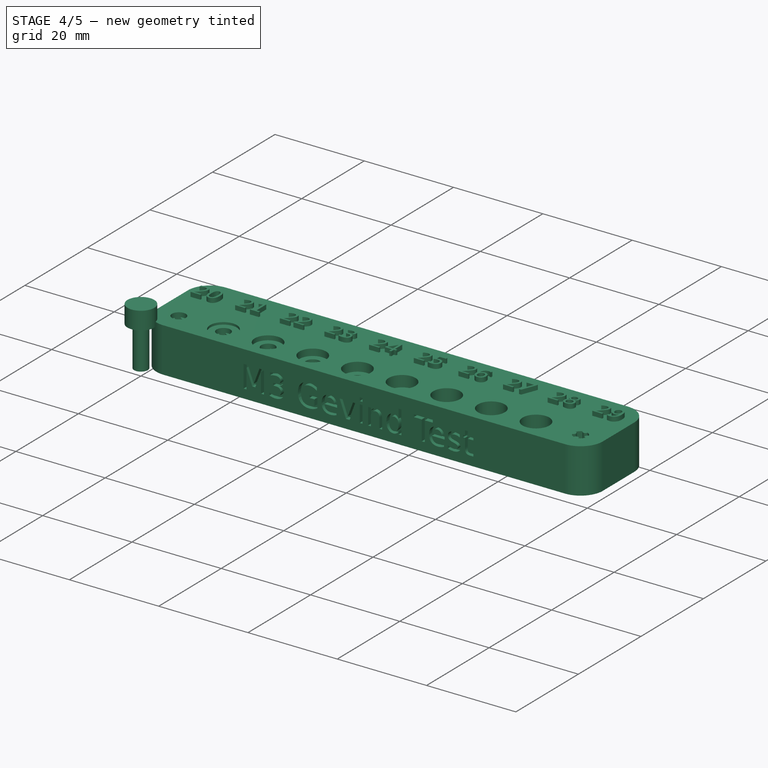
[diagram: stage 4 of 5 — iso view after this stage's code; geometry added in this stage tinted green]
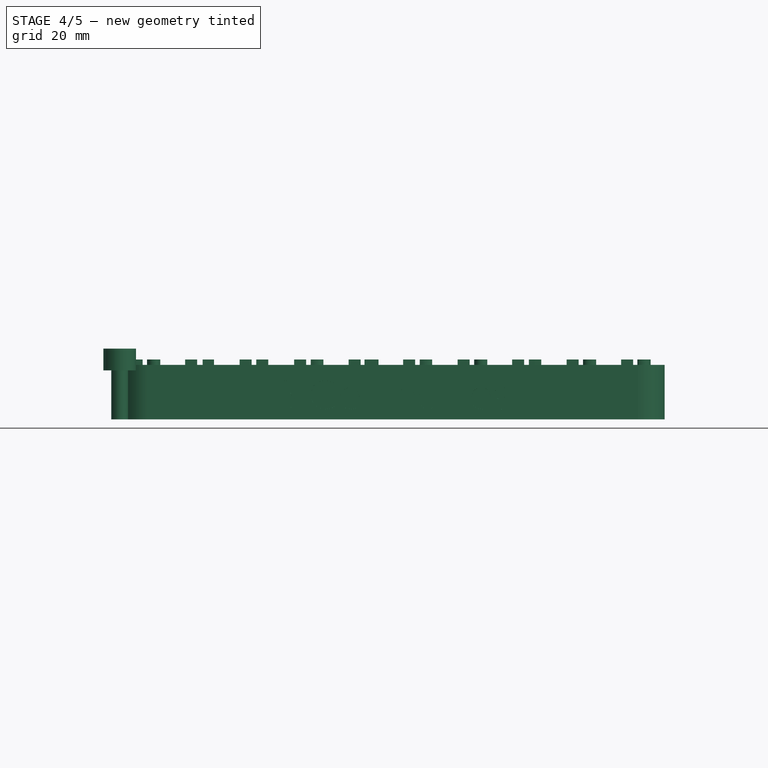
[diagram: stage 4 of 5 — front view after this stage's code; geometry added in this stage tinted green]
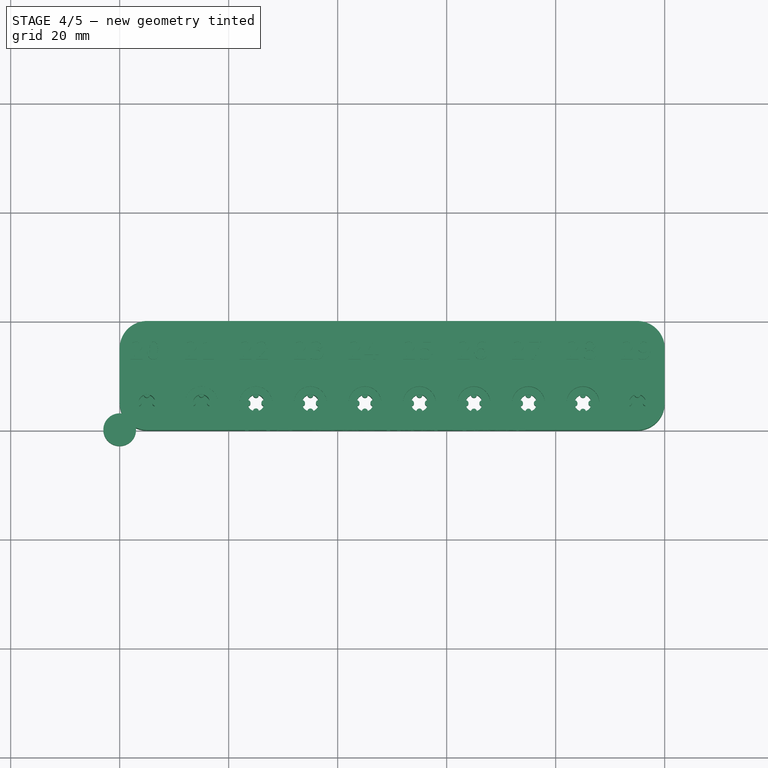
[diagram: stage 4 of 5 — top view after this stage's code; geometry added in this stage tinted green]
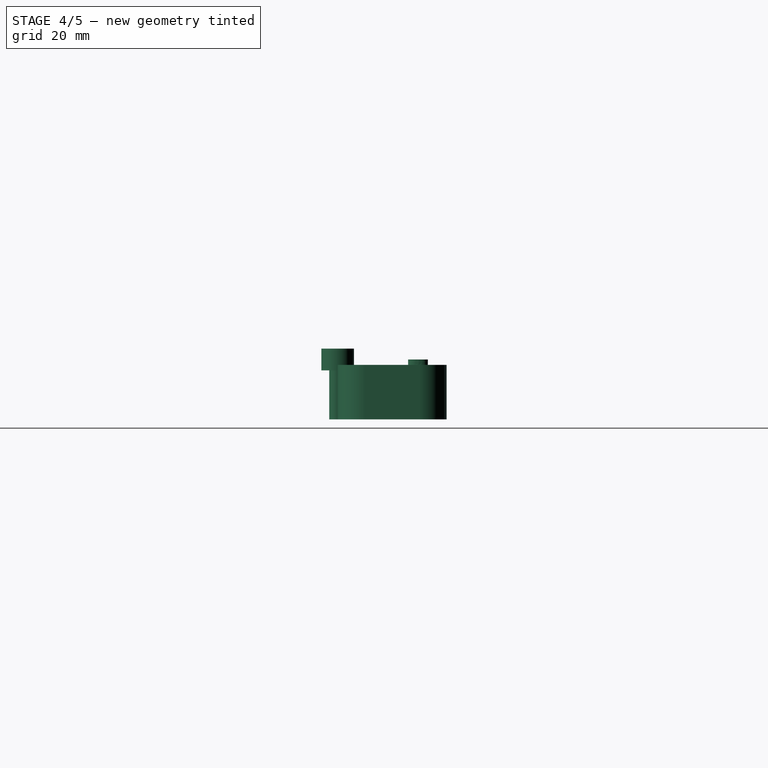
[diagram: stage 4 of 5 — right view after this stage's code; geometry added in this stage tinted green]
FEATURE [PartDesign::Body] Body001  label="M3-020"
  AllowCompound = true
  Group = -> [Sketch001,Pad001,Sketch002,Pocket,Sketch003,Pad002,Pad003]
  Origin = -> Origin001
  Placement = pos=(-24,0,0) rot=(0,0,1;0rad)
  Tip = -> Pad003
FEATURE [Sketcher::SketchObject] Sketch005
  ArcFitTolerance = 1e-06
  AttachmentSupport = -> [XY_Plane002]
  FullyConstrained = true
  MakeInternals = false
  MapMode = 5
  sketch-geometry (1):
    g0: Circle CenterX=0 CenterY=0 CenterZ=0 NormalX=0 NormalY=0 NormalZ=1 AngleXU=0 Radius=1.55
  constraints (2):
    c: Coincident(g0,g-1)
    c: Diameter(g0) = 3.1
FEATURE [PartDesign::Pad] Pad004
  Direction = (0,0,1)
  Length = 10
  Length2 = 10
  Profile = -> Sketch005
  ReferenceAxis = -> Sketch005 [N_Axis]
  Refine = true
  Reversed = true
  Suppressed = false
  Type = 0
FEATURE [PartDesign::Body] Body002  label="M3-021"
  AllowCompound = true
  Group = -> [Sketch005,Pad004,Sketch006,Pocket002,Sketch007,Pad005,Pad006]
  Origin = -> Origin002
  Placement = pos=(-16,0,-0.5) rot=(0,0,1;0rad)
  Tip = -> Pad006
FEATURE [Sketcher::SketchObject] Sketch009
  ArcFitTolerance = 1e-06
  AttachmentSupport = -> [XY_Plane003]
  FullyConstrained = true
  MakeInternals = false
  MapMode = 5
  sketch-geometry (1):
    g0: Circle CenterX=0 CenterY=0 CenterZ=0 NormalX=0 NormalY=0 NormalZ=1 AngleXU=0 Radius=1.55
  constraints (2):
    c: Coincident(g0,g-1)
    c: Diameter(g0) = 3.1
FEATURE [PartDesign::Pad] Pad007
  Direction = (0,0,1)
  Length = 10
  Length2 = 10
  Profile = -> Sketch009
  ReferenceAxis = -> Sketch009 [N_Axis]
  Refine = true
  Reversed = true
  Suppressed = false
  Type = 0
FEATURE [Sketcher::SketchObject] Sketch010
  ArcFitTolerance = 1e-06
  AttachmentOffset = pos=(0,0,-2) rot=(0,0,1;0rad)
  AttachmentSupport = -> [XY_Plane003]
  ExternalGeometry = -> [Pad007]
  FullyConstrained = true
  MakeInternals = false
  MapMode = 5
  Placement = pos=(0,0,-2) rot=(0,0,1;0rad)
  sketch-geometry (5):
    g0: Circle [constr] CenterX=0 CenterY=0 CenterZ=0 NormalX=0 NormalY=0 NormalZ=1 AngleXU=0 Radius=1.1
    g1: Circle CenterX=0 CenterY=1.55 CenterZ=0 NormalX=0 NormalY=0 NormalZ=1 AngleXU=0 Radius=0.45
    g2: Circle CenterX=1.55 CenterY=0 CenterZ=0 NormalX=0 NormalY=0 NormalZ=1 AngleXU=0 Radius=0.45
    g3: Circle CenterX=-1.55 CenterY=0 CenterZ=0 NormalX=0 NormalY=0 NormalZ=1 AngleXU=0 Radius=0.45
    g4: Circle CenterX=0 CenterY=-1.55 CenterZ=0 NormalX=0 NormalY=0 NormalZ=1 AngleXU=0 Radius=0.45
  constraints (14):
    c: Diameter(g0) = 2.2
    c: Coincident(g0,g-1)
    c: PointOnObject(g1,g-2)
    c: PointOnObject(g2,g-1)
    c: PointOnObject(g3,g-1)
    c: PointOnObject(g4,g-2)
    c: Tangent(g3,g0)
    c: PointOnObject(g3,g-3)
    c: Tangent(g1,g0)
    c: Tangent(g2,g0)
    c: Tangent(g4,g0)
    c: Equal(g3,g4)
    c: Equal(g4,g2)
    c: Equal(g2,g1)
FEATURE [PartDesign::Pocket] Pocket004
  BaseFeature = -> Pad007
  Direction = (0,0,-1)
  Length = 10
  Length2 = 5
  Profile = -> Sketch010
  ReferenceAxis = -> Sketch010 [N_Axis]
  Refine = true
  Suppressed = false
  Type = 0
FEATURE [Sketcher::SketchObject] Sketch011
  ArcFitTolerance = 1e-06
  AttachmentSupport = -> [XY_Plane003]
  ExternalGeometry = -> [Pocket004]
  FullyConstrained = true
  MakeInternals = false
  MapMode = 5
  sketch-geometry (1):
    g0: Circle CenterX=0 CenterY=0 CenterZ=0 NormalX=0 NormalY=0 NormalZ=1 AngleXU=0 Radius=3
  constraints (2):
    c: Coincident(g0,g-1)
    c: Diameter(g0) = 6
FEATURE [PartDesign::Pad] Pad008
  BaseFeature = -> Pocket004
  Direction = (0,0,1)
  Length = 1
  Length2 = 10
  Profile = -> Sketch011
  ReferenceAxis = -> Sketch011 [N_Axis]
  Refine = true
  Reversed = true
  Suppressed = false
  Type = 0
FEATURE [PartDesign::Pad] Pad009
  BaseFeature = -> Pad008
  Direction = (0,0,1)
  Length = 3
  Length2 = 10
  Profile = -> Sketch011
  ReferenceAxis = -> Sketch011 [N_Axis]
  Refine = true
  Suppressed = false
  Type = 0
FEATURE [PartDesign::Body] Body003  label="M3-022"
  AllowCompound = true
  Group = -> [Sketch009,Pad007,Sketch010,Pocket004,Sketch011,Pad008,Pad009]
  Origin = -> Origin003
  Placement = pos=(-8,0,-1) rot=(0,0,1;0rad)
  Tip = -> Pad009
FEATURE [Sketcher::SketchObject] Sketch013
  ArcFitTolerance = 1e-06
  AttachmentSupport = -> [XY_Plane004]
  FullyConstrained = true
  MakeInternals = false
  MapMode = 5
  sketch-geometry (1):
    g0: Circle CenterX=0 CenterY=0 CenterZ=0 NormalX=0 NormalY=0 NormalZ=1 AngleXU=0 Radius=1.55
  constraints (2):
    c: Coincident(g0,g-1)
    c: Diameter(g0) = 3.1
FEATURE [PartDesign::Pad] Pad010
  Direction = (0,0,1)
  Length = 10
  Length2 = 10
  Profile = -> Sketch013
  ReferenceAxis = -> Sketch013 [N_Axis]
  Refine = true
  Reversed = true
  Suppressed = false
  Type = 0
FEATURE [Sketcher::SketchObject] Sketch014
  ArcFitTolerance = 1e-06
  AttachmentOffset = pos=(0,0,-2) rot=(0,0,1;0rad)
  AttachmentSupport = -> [XY_Plane004]
  ExternalGeometry = -> [Pad010]
  FullyConstrained = true
  MakeInternals = false
  MapMode = 5
  Placement = pos=(0,0,-2) rot=(0,0,1;0rad)
  sketch-geometry (5):
    g0: Circle [constr] CenterX=0 CenterY=0 CenterZ=0 NormalX=0 NormalY=0 NormalZ=1 AngleXU=0 Radius=1.15
    g1: Circle CenterX=0 CenterY=1.55 CenterZ=0 NormalX=0 NormalY=0 NormalZ=1 AngleXU=0 Radius=0.4
    g2: Circle CenterX=1.55 CenterY=0 CenterZ=0 NormalX=0 NormalY=0 NormalZ=1 AngleXU=0 Radius=0.4
    g3: Circle CenterX=-1.55 CenterY=0 CenterZ=0 NormalX=0 NormalY=0 NormalZ=1 AngleXU=0 Radius=0.4
    g4: Circle CenterX=0 CenterY=-1.55 CenterZ=0 NormalX=0 NormalY=0 NormalZ=1 AngleXU=0 Radius=0.4
  constraints (14):
    c: Diameter(g0) = 2.3
    c: Coincident(g0,g-1)
    c: PointOnObject(g1,g-2)
    c: PointOnObject(g2,g-1)
    c: PointOnObject(g3,g-1)
    c: PointOnObject(g4,g-2)
    c: Tangent(g3,g0)
    c: PointOnObject(g3,g-3)
    c: Tangent(g1,g0)
    c: Tangent(g2,g0)
    c: Tangent(g4,g0)
    c: Equal(g3,g4)
    c: Equal(g4,g2)
    c: Equal(g2,g1)
FEATURE [PartDesign::Pocket] Pocket006
  BaseFeature = -> Pad010
  Direction = (0,0,-1)
  Length = 10
  Length2 = 5
  Profile = -> Sketch014
  ReferenceAxis = -> Sketch014 [N_Axis]
  Refine = true
  Suppressed = false
  Type = 0
FEATURE [Sketcher::SketchObject] Sketch015
  ArcFitTolerance = 1e-06
  AttachmentSupport = -> [XY_Plane004]
  ExternalGeometry = -> [Pocket006]
  FullyConstrained = true
  MakeInternals = false
  MapMode = 5
  sketch-geometry (1):
    g0: Circle CenterX=0 CenterY=0 CenterZ=0 NormalX=0 NormalY=0 NormalZ=1 AngleXU=0 Radius=3
  constraints (2):
    c: Coincident(g0,g-1)
    c: Diameter(g0) = 6
FEATURE [PartDesign::Pad] Pad011
  BaseFeature = -> Pocket006
  Direction = (0,0,1)
  Length = 1
  Length2 = 10
  Profile = -> Sketch015
  ReferenceAxis = -> Sketch015 [N_Axis]
  Refine = true
  Reversed = true
  Suppressed = false
  Type = 0
FEATURE [PartDesign::Pad] Pad012
  BaseFeature = -> Pad011
  Direction = (0,0,1)
  Length = 3
  Length2 = 10
  Profile = -> Sketch015
  ReferenceAxis = -> Sketch015 [N_Axis]
  Refine = true
  Suppressed = false
  Type = 0
FEATURE [PartDesign::Body] Body004  label="M3-023"
  AllowCompound = true
  Group = -> [Sketch013,Pad010,Sketch014,Pocket006,Sketch015,Pad011,Pad012]
  Origin = -> Origin004
  Placement = pos=(0,0,-1.5) rot=(0,0,1;0rad)
  Tip = -> Pad012
FEATURE [Sketcher::SketchObject] Sketch017
  ArcFitTolerance = 1e-06
  AttachmentSupport = -> [XY_Plane005]
  FullyConstrained = true
  MakeInternals = false
  MapMode = 5
  sketch-geometry (1):
    g0: Circle CenterX=0 CenterY=0 CenterZ=0 NormalX=0 NormalY=0 NormalZ=1 AngleXU=0 Radius=1.55
  constraints (2):
    c: Coincident(g0,g-1)
    c: Diameter(g0) = 3.1
FEATURE [PartDesign::Pad] Pad013
  Direction = (0,0,1)
  Length = 10
  Length2 = 10
  Profile = -> Sketch017
  ReferenceAxis = -> Sketch017 [N_Axis]
  Refine = true
  Reversed = true
  Suppressed = false
  Type = 0
FEATURE [Sketcher::SketchObject] Sketch018
  ArcFitTolerance = 1e-06
  AttachmentOffset = pos=(0,0,-2) rot=(0,0,1;0rad)
  AttachmentSupport = -> [XY_Plane005]
  ExternalGeometry = -> [Pad013]
  FullyConstrained = true
  MakeInternals = false
  MapMode = 5
  Placement = pos=(0,0,-2) rot=(0,0,1;0rad)
  sketch-geometry (5):
    g0: Circle [constr] CenterX=0 CenterY=0 CenterZ=0 NormalX=0 NormalY=0 NormalZ=1 AngleXU=0 Radius=1.2
    g1: Circle CenterX=0 CenterY=1.55 CenterZ=0 NormalX=0 NormalY=0 NormalZ=1 AngleXU=0 Radius=0.35
    g2: Circle CenterX=1.55 CenterY=0 CenterZ=0 NormalX=0 NormalY=0 NormalZ=1 AngleXU=0 Radius=0.35
    g3: Circle CenterX=-1.55 CenterY=0 CenterZ=0 NormalX=0 NormalY=0 NormalZ=1 AngleXU=0 Radius=0.35
    g4: Circle CenterX=0 CenterY=-1.55 CenterZ=0 NormalX=0 NormalY=0 NormalZ=1 AngleXU=0 Radius=0.35
  constraints (14):
    c: Diameter(g0) = 2.4
    c: Coincident(g0,g-1)
    c: PointOnObject(g1,g-2)
    c: PointOnObject(g2,g-1)
    c: PointOnObject(g3,g-1)
    c: PointOnObject(g4,g-2)
    c: Tangent(g3,g0)
    c: PointOnObject(g3,g-3)
    c: Tangent(g1,g0)
    c: Tangent(g2,g0)
    c: Tangent(g4,g0)
    c: Equal(g3,g4)
    c: Equal(g4,g2)
    c: Equal(g2,g1)
FEATURE [PartDesign::Pocket] Pocket008
  BaseFeature = -> Pad013
  Direction = (0,0,-1)
  Length = 10
  Length2 = 5
  Profile = -> Sketch018
  ReferenceAxis = -> Sketch018 [N_Axis]
  Refine = true
  Suppressed = false
  Type = 0
FEATURE [Sketcher::SketchObject] Sketch019
  ArcFitTolerance = 1e-06
  AttachmentSupport = -> [XY_Plane005]
  ExternalGeometry = -> [Pocket008]
  FullyConstrained = true
  MakeInternals = false
  MapMode = 5
  sketch-geometry (1):
    g0: Circle CenterX=0 CenterY=0 CenterZ=0 NormalX=0 NormalY=0 NormalZ=1 AngleXU=0 Radius=3
  constraints (2):
    c: Coincident(g0,g-1)
    c: Diameter(g0) = 6
FEATURE [PartDesign::Pad] Pad014
  BaseFeature = -> Pocket008
  Direction = (0,0,1)
  Length = 1
  Length2 = 10
  Profile = -> Sketch019
  ReferenceAxis = -> Sketch019 [N_Axis]
  Refine = true
  Reversed = true
  Suppressed = false
  Type = 0
FEATURE [PartDesign::Pad] Pad015
  BaseFeature = -> Pad014
  Direction = (0,0,1)
  Length = 3
  Length2 = 10
  Profile = -> Sketch019
  ReferenceAxis = -> Sketch019 [N_Axis]
  Refine = true
  Suppressed = false
  Type = 0
FEATURE [Sketcher::SketchObject] Sketch022
  ArcFitTolerance = 1e-06
  AttachmentOffset = pos=(0,0,-2) rot=(0,0,1;0rad)
  AttachmentSupport = -> [XY_Plane006]
  ExternalGeometry = -> [Pad016]
  FullyConstrained = true
  MakeInternals = false
  MapMode = 5
  Placement = pos=(0,0,-2) rot=(0,0,1;0rad)
  sketch-geometry (5):
    g0: Circle [constr] CenterX=0 CenterY=0 CenterZ=0 NormalX=0 NormalY=0 NormalZ=1 AngleXU=0 Radius=1.25
    g1: Circle CenterX=0 CenterY=1.55 CenterZ=0 NormalX=0 NormalY=0 NormalZ=1 AngleXU=0 Radius=0.3
    g2: Circle CenterX=1.55 CenterY=0 CenterZ=0 NormalX=0 NormalY=0 NormalZ=1 AngleXU=0 Radius=0.3
    g3: Circle CenterX=-1.55 CenterY=0 CenterZ=0 NormalX=0 NormalY=0 NormalZ=1 AngleXU=0 Radius=0.3
    g4: Circle CenterX=0 CenterY=-1.55 CenterZ=0 NormalX=0 NormalY=0 NormalZ=1 AngleXU=0 Radius=0.3
  constraints (14):
    c: Diameter(g0) = 2.5
    c: Coincident(g0,g-1)
    c: PointOnObject(g1,g-2)
    c: PointOnObject(g2,g-1)
    c: PointOnObject(g3,g-1)
    c: PointOnObject(g4,g-2)
    c: Tangent(g3,g0)
    c: PointOnObject(g3,g-3)
    c: Tangent(g1,g0)
    c: Tangent(g2,g0)
    c: Tangent(g4,g0)
    c: Equal(g3,g4)
    c: Equal(g4,g2)
    c: Equal(g2,g1)
FEATURE [PartDesign::Pocket] Pocket010
  BaseFeature = -> Pad016
  Direction = (0,0,-1)
  Length = 10
  Length2 = 5
  Profile = -> Sketch022
  ReferenceAxis = -> Sketch022 [N_Axis]
  Refine = true
  Suppressed = false
  Type = 0
FEATURE [Sketcher::SketchObject] Sketch023
  ArcFitTolerance = 1e-06
  AttachmentSupport = -> [XY_Plane006]
  ExternalGeometry = -> [Pocket010]
  FullyConstrained = true
  MakeInternals = false
  MapMode = 5
  sketch-geometry (1):
    g0: Circle CenterX=0 CenterY=0 CenterZ=0 NormalX=0 NormalY=0 NormalZ=1 AngleXU=0 Radius=3
  constraints (2):
    c: Coincident(g0,g-1)
    c: Diameter(g0) = 6
FEATURE [PartDesign::Pad] Pad017
  BaseFeature = -> Pocket010
  Direction = (0,0,1)
  Length = 1
  Length2 = 10
  Profile = -> Sketch023
  ReferenceAxis = -> Sketch023 [N_Axis]
  Refine = true
  Reversed = true
  Suppressed = false
  Type = 0
FEATURE [PartDesign::Pad] Pad018
  BaseFeature = -> Pad017
  Direction = (0,0,1)
  Length = 3
  Length2 = 10
  Profile = -> Sketch023
  ReferenceAxis = -> Sketch023 [N_Axis]
  Refine = true
  Suppressed = false
  Type = 0
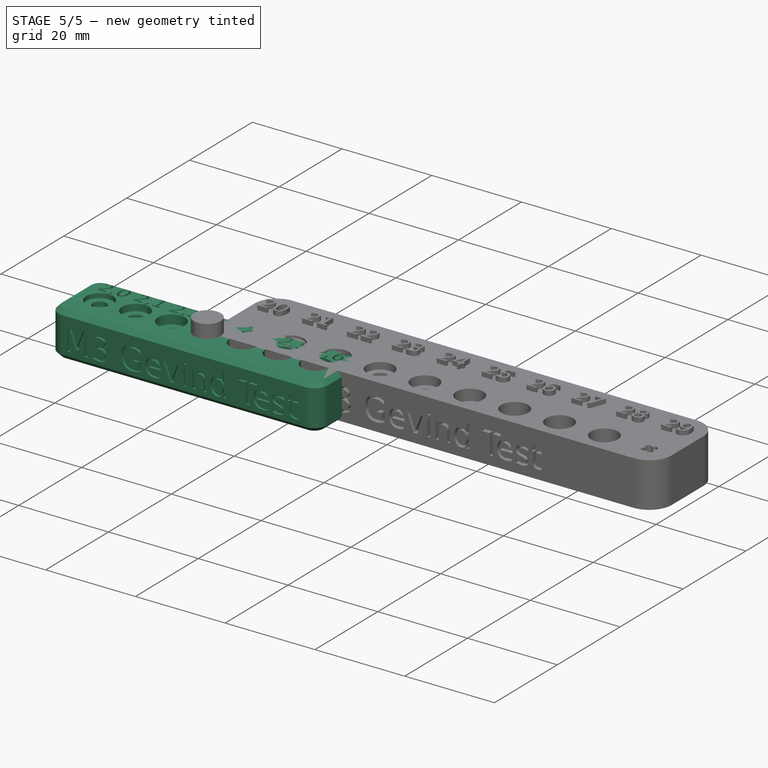
[diagram: stage 5 of 5 — iso view after this stage's code; geometry added in this stage tinted green]
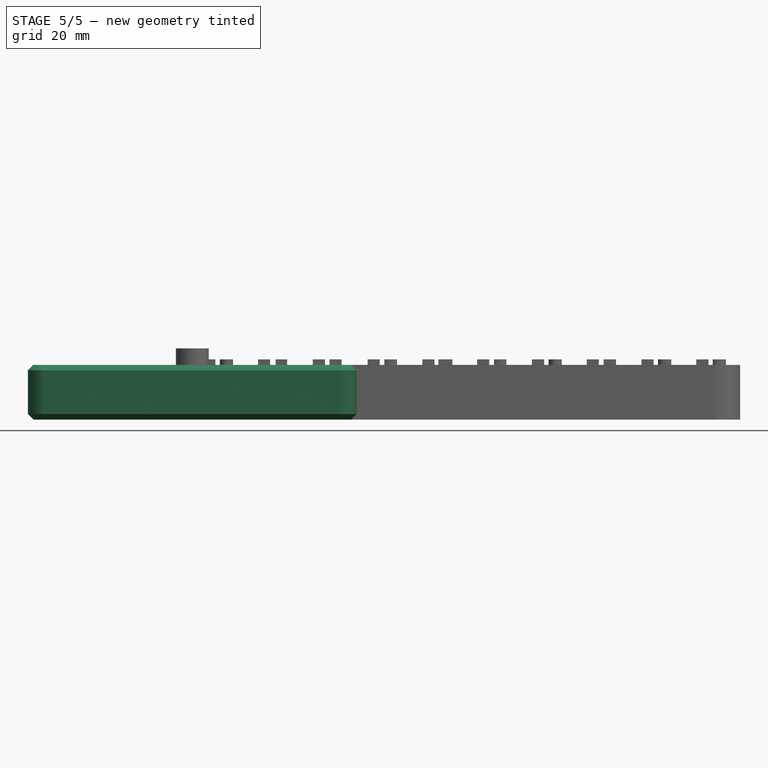
[diagram: stage 5 of 5 — front view after this stage's code; geometry added in this stage tinted green]
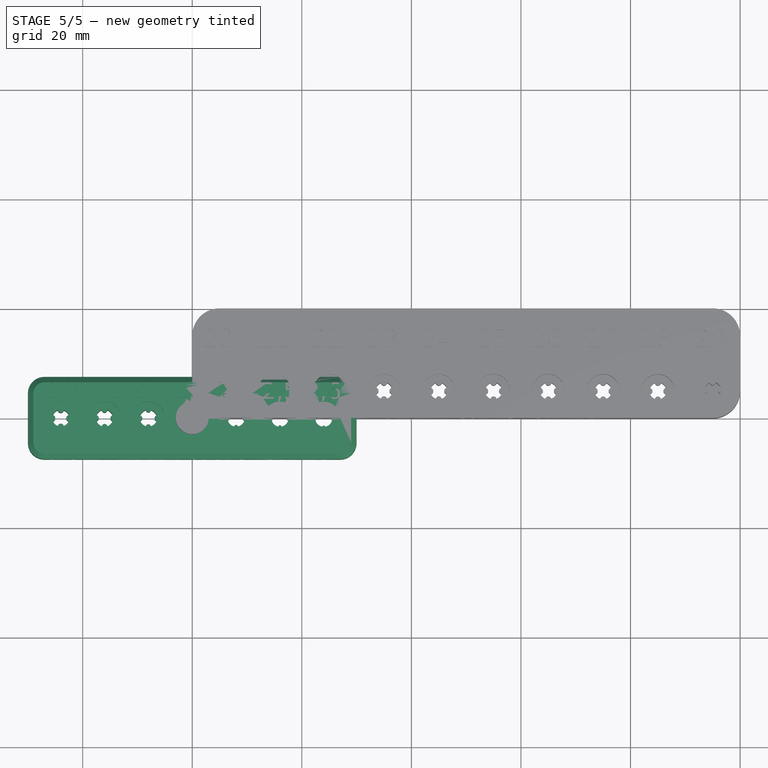
[diagram: stage 5 of 5 — top view after this stage's code; geometry added in this stage tinted green]
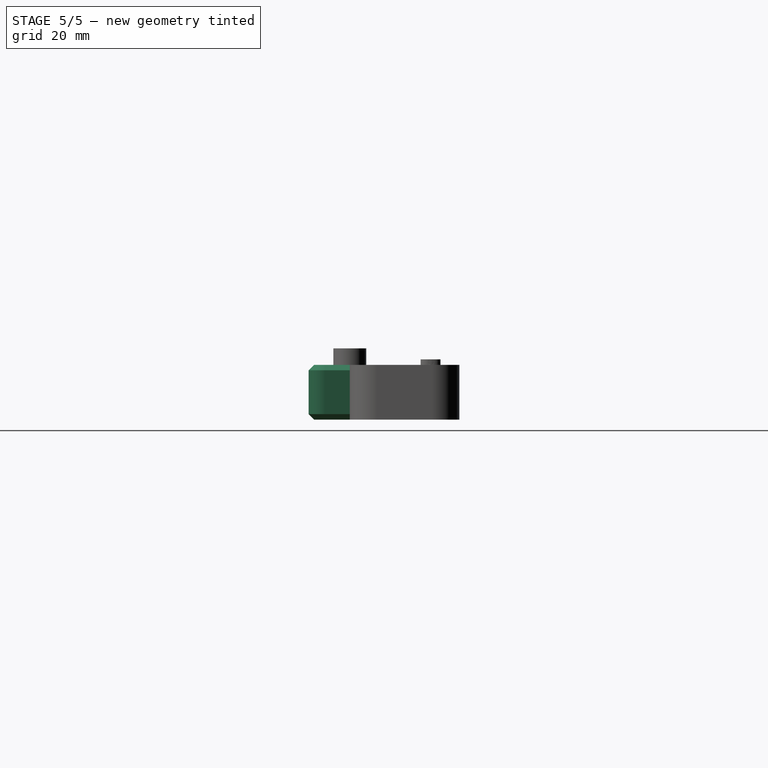
[diagram: stage 5 of 5 — right view after this stage's code; geometry added in this stage tinted green]
FEATURE [Sketcher::SketchObject] Sketch
  ArcFitTolerance = 1e-06
  AttachmentSupport = -> [XY_Plane]
  FullyConstrained = true
  MakeInternals = false
  MapMode = 5
  sketch-geometry (13):
    g0: LineSegment StartX=-27 StartY=-7.5 StartZ=0 EndX=27 EndY=-7.5 EndZ=0
    g1: LineSegment StartX=30 StartY=-4.5 StartZ=0 EndX=30 EndY=4.5 EndZ=0
    g2: LineSegment StartX=27 StartY=7.5 StartZ=0 EndX=-27 EndY=7.5 EndZ=0
    g3: LineSegment StartX=-30 StartY=4.5 StartZ=0 EndX=-30 EndY=-4.5 EndZ=0
    g4: GeomPoint [constr] X=0 Y=0 Z=0
    g5: ArcOfCircle CenterX=-27 CenterY=4.5 CenterZ=0 NormalX=0 NormalY=0 NormalZ=1 AngleXU=0 Radius=3 StartAngle=1.5708 EndAngle=3.14159
    g6: GeomPoint [constr] X=-30 Y=7.5 Z=0
    g7: ArcOfCircle CenterX=-27 CenterY=-4.5 CenterZ=0 NormalX=0 NormalY=0 NormalZ=1 AngleXU=0 Radius=3 StartAngle=3.14159 EndAngle=4.71239
    g8: GeomPoint [constr] X=-30 Y=-7.5 Z=0
    g9: ArcOfCircle CenterX=27 CenterY=-4.5 CenterZ=0 NormalX=0 NormalY=0 NormalZ=1 AngleXU=0 Radius=3 StartAngle=4.71239 EndAngle=6.28319
    g10: GeomPoint [constr] X=30 Y=-7.5 Z=0
    g11: ArcOfCircle CenterX=27 CenterY=4.5 CenterZ=0 NormalX=0 NormalY=0 NormalZ=1 AngleXU=0 Radius=3 StartAngle=0 EndAngle=1.5708
    g12: GeomPoint [constr] X=30 Y=7.5 Z=0
  constraints (28):
    c: Horizontal(g0)
    c: Horizontal(g2)
    c: Vertical(g1)
    c: Vertical(g3)
    c: Symmetric(g12,g8,g4)
    c: Coincident(g4,g-1)
    c: Distance(g6,g8) = 15
    c: DistanceX(g6,g12) = 60
    c: PointOnObject(g6,g2)
    c: PointOnObject(g6,g3)
    c: Tangent(g2,g5) = -1.5708
    c: Tangent(g3,g5) = -1.5708
    c: PointOnObject(g8,g0)
    c: PointOnObject(g8,g3)
    c: Tangent(g0,g7) = -1.5708
    c: Tangent(g3,g7) = -1.5708
    c: PointOnObject(g10,g0)
    c: PointOnObject(g10,g1)
    c: Tangent(g0,g9) = -1.5708
    c: Tangent(g1,g9) = -1.5708
    c: PointOnObject(g12,g1)
    c: PointOnObject(g12,g2)
    c: Tangent(g1,g11) = -1.5708
    c: Tangent(g2,g11) = -1.5708
    c: Equal(g7,g5)
    c: Equal(g5,g11)
    c: Equal(g11,g9)
    c: Radius(g9) = 3
FEATURE [PartDesign::Pad] Pad
  Direction = (0,0,1)
  Length = 10
  Length2 = 10
  Profile = -> Sketch
  ReferenceAxis = -> Sketch [N_Axis]
  Refine = true
  Reversed = true
  Suppressed = false
  Type = 0
FEATURE [Sketcher::SketchObject] Sketch001
  ArcFitTolerance = 1e-06
  AttachmentSupport = -> [XY_Plane001]
  FullyConstrained = true
  MakeInternals = false
  MapMode = 5
  sketch-geometry (1):
    g0: Circle CenterX=0 CenterY=0 CenterZ=0 NormalX=0 NormalY=0 NormalZ=1 AngleXU=0 Radius=1.55
  constraints (2):
    c: Coincident(g0,g-1)
    c: Diameter(g0) = 3.1
FEATURE [PartDesign::Pad] Pad001
  Direction = (0,0,1)
  Length = 10
  Length2 = 10
  Profile = -> Sketch001
  ReferenceAxis = -> Sketch001 [N_Axis]
  Refine = true
  Reversed = true
  Suppressed = false
  Type = 0
FEATURE [Sketcher::SketchObject] Sketch002
  ArcFitTolerance = 1e-06
  AttachmentOffset = pos=(0,0,-2) rot=(0,0,1;0rad)
  AttachmentSupport = -> [XY_Plane001]
  ExternalGeometry = -> [Pad001]
  FullyConstrained = true
  MakeInternals = false
  MapMode = 5
  Placement = pos=(0,0,-2) rot=(0,0,1;0rad)
  sketch-geometry (5):
    g0: Circle [constr] CenterX=0 CenterY=0 CenterZ=0 NormalX=0 NormalY=0 NormalZ=1 AngleXU=0 Radius=1
    g1: Circle CenterX=0 CenterY=1.55 CenterZ=0 NormalX=0 NormalY=0 NormalZ=1 AngleXU=0 Radius=0.55
    g2: Circle CenterX=1.55 CenterY=0 CenterZ=0 NormalX=0 NormalY=0 NormalZ=1 AngleXU=0 Radius=0.55
    g3: Circle CenterX=-1.55 CenterY=0 CenterZ=0 NormalX=0 NormalY=0 NormalZ=1 AngleXU=0 Radius=0.55
    g4: Circle CenterX=0 CenterY=-1.55 CenterZ=0 NormalX=0 NormalY=0 NormalZ=1 AngleXU=0 Radius=0.55
  constraints (16):
    c: Diameter(g0) = 2
    c: Coincident(g0,g-1)
    c: PointOnObject(g1,g-2)
    c: PointOnObject(g2,g-1)
    c: PointOnObject(g3,g-1)
    c: PointOnObject(g4,g-2)
    c: Tangent(g3,g0)
    c: PointOnObject(g3,g-3)
    c: Tangent(g1,g0)
    c: Tangent(g2,g0)
    c: Tangent(g4,g0)
    c: Equal(g3,g4)
    c: Equal(g4,g2)
    c: Equal(g2,g1)
    c: Diameter(g-3) = 3.1
    c: Diameter(g0) = 2
FEATURE [PartDesign::Pocket] Pocket
  BaseFeature = -> Pad001
  Direction = (0,0,-1)
  Length = 10
  Length2 = 5
  Profile = -> Sketch002
  ReferenceAxis = -> Sketch002 [N_Axis]
  Refine = true
  Suppressed = false
  Type = 0
FEATURE [Sketcher::SketchObject] Sketch003
  ArcFitTolerance = 1e-06
  AttachmentSupport = -> [XY_Plane001]
  ExternalGeometry = -> [Pocket]
  FullyConstrained = true
  MakeInternals = false
  MapMode = 5
  sketch-geometry (1):
    g0: Circle CenterX=0 CenterY=0 CenterZ=0 NormalX=0 NormalY=0 NormalZ=1 AngleXU=0 Radius=3
  constraints (2):
    c: Coincident(g0,g-1)
    c: Diameter(g0) = 6
FEATURE [PartDesign::Pad] Pad002
  BaseFeature = -> Pocket
  Direction = (0,0,1)
  Length = 1
  Length2 = 10
  Profile = -> Sketch003
  ReferenceAxis = -> Sketch003 [N_Axis]
  Refine = true
  Reversed = true
  Suppressed = false
  Type = 0
FEATURE [PartDesign::Pad] Pad003
  BaseFeature = -> Pad002
  Direction = (0,0,1)
  Length = 3
  Length2 = 10
  Profile = -> Sketch003
  ReferenceAxis = -> Sketch003 [N_Axis]
  Refine = true
  Suppressed = false
  Type = 0
FEATURE [Sketcher::SketchObject] Sketch006
  ArcFitTolerance = 1e-06
  AttachmentOffset = pos=(0,0,-2) rot=(0,0,1;0rad)
  AttachmentSupport = -> [XY_Plane002]
  ExternalGeometry = -> [Pad004]
  FullyConstrained = true
  MakeInternals = false
  MapMode = 5
  Placement = pos=(0,0,-2) rot=(0,0,1;0rad)
  sketch-geometry (5):
    g0: Circle [constr] CenterX=0 CenterY=0 CenterZ=0 NormalX=0 NormalY=0 NormalZ=1 AngleXU=0 Radius=1.05
    g1: Circle CenterX=0 CenterY=1.55 CenterZ=0 NormalX=0 NormalY=0 NormalZ=1 AngleXU=0 Radius=0.5
    g2: Circle CenterX=1.55 CenterY=0 CenterZ=0 NormalX=0 NormalY=0 NormalZ=1 AngleXU=0 Radius=0.5
    g3: Circle CenterX=-1.55 CenterY=0 CenterZ=0 NormalX=0 NormalY=0 NormalZ=1 AngleXU=0 Radius=0.5
    g4: Circle CenterX=0 CenterY=-1.55 CenterZ=0 NormalX=0 NormalY=0 NormalZ=1 AngleXU=0 Radius=0.5
  constraints (14):
    c: Diameter(g0) = 2.1
    c: Coincident(g0,g-1)
    c: PointOnObject(g1,g-2)
    c: PointOnObject(g2,g-1)
    c: PointOnObject(g3,g-1)
    c: PointOnObject(g4,g-2)
    c: Tangent(g3,g0)
    c: PointOnObject(g3,g-3)
    c: Tangent(g1,g0)
    c: Tangent(g2,g0)
    c: Tangent(g4,g0)
    c: Equal(g3,g4)
    c: Equal(g4,g2)
    c: Equal(g2,g1)
FEATURE [PartDesign::Pocket] Pocket002
  BaseFeature = -> Pad004
  Direction = (0,0,-1)
  Length = 10
  Length2 = 5
  Profile = -> Sketch006
  ReferenceAxis = -> Sketch006 [N_Axis]
  Refine = true
  Suppressed = false
  Type = 0
FEATURE [Sketcher::SketchObject] Sketch007
  ArcFitTolerance = 1e-06
  AttachmentSupport = -> [XY_Plane002]
  ExternalGeometry = -> [Pocket002]
  FullyConstrained = true
  MakeInternals = false
  MapMode = 5
  sketch-geometry (1):
    g0: Circle CenterX=0 CenterY=0 CenterZ=0 NormalX=0 NormalY=0 NormalZ=1 AngleXU=0 Radius=3
  constraints (2):
    c: Coincident(g0,g-1)
    c: Diameter(g0) = 6
FEATURE [PartDesign::Pad] Pad005
  BaseFeature = -> Pocket002
  Direction = (0,0,1)
  Length = 1
  Length2 = 10
  Profile = -> Sketch007
  ReferenceAxis = -> Sketch007 [N_Axis]
  Refine = true
  Reversed = true
  Suppressed = false
  Type = 0
FEATURE [PartDesign::Pad] Pad006
  BaseFeature = -> Pad005
  Direction = (0,0,1)
  Length = 3
  Length2 = 10
  Profile = -> Sketch007
  ReferenceAxis = -> Sketch007 [N_Axis]
  Refine = true
  Suppressed = false
  Type = 0
FEATURE [PartDesign::Body] Body007  label="M3-026"
  AllowCompound = true
  Group = -> [Sketch025,Pad019,Sketch026,Pocket012,Sketch027,Pad020,Pad021]
  Origin = -> Origin007
  Placement = pos=(24,0,-3) rot=(0,0,1;0rad)
  Tip = -> Pad021
FEATURE [PartDesign::Boolean] Boolean
  BaseFeature = -> Pad
  Group = -> [Body001,Body002,Body003,Body004,Body005,Body006,Body007]
  Refine = true
  Suppressed = false
  Type = 1
  UsePlacement = true
FEATURE [Sketcher::SketchObject] Sketch028
  ArcFitTolerance = 1e-06
  AttachmentSupport = -> [XY_Plane008]
  FullyConstrained = true
  MakeInternals = false
  MapMode = 5
  sketch-geometry (1):
    g0: Circle CenterX=0 CenterY=0 CenterZ=0 NormalX=0 NormalY=0 NormalZ=1 AngleXU=0 Radius=1.55
  constraints (2):
    c: Coincident(g0,g-1)
    c: Diameter(g0) = 3.1
FEATURE [PartDesign::Pad] Pad022
  Direction = (0,0,1)
  Length = 10
  Length2 = 10
  Profile = -> Sketch028
  ReferenceAxis = -> Sketch028 [N_Axis]
  Refine = true
  Reversed = true
  Suppressed = false
  Type = 0
FEATURE [Sketcher::SketchObject] Sketch029
  ArcFitTolerance = 1e-06
  AttachmentOffset = pos=(0,0,-2) rot=(0,0,1;0rad)
  AttachmentSupport = -> [XY_Plane008]
  ExternalGeometry = -> [Pad022]
  FullyConstrained = true
  MakeInternals = false
  MapMode = 5
  Placement = pos=(0,0,-2) rot=(0,0,1;0rad)
  sketch-geometry (5):
    g0: Circle [constr] CenterX=0 CenterY=0 CenterZ=0 NormalX=0 NormalY=0 NormalZ=1 AngleXU=0 Radius=1
    g1: Circle CenterX=0 CenterY=1.55 CenterZ=0 NormalX=0 NormalY=0 NormalZ=1 AngleXU=0 Radius=0.55
    g2: Circle CenterX=1.55 CenterY=0 CenterZ=0 NormalX=0 NormalY=0 NormalZ=1 AngleXU=0 Radius=0.55
    g3: Circle CenterX=-1.55 CenterY=0 CenterZ=0 NormalX=0 NormalY=0 NormalZ=1 AngleXU=0 Radius=0.55
    g4: Circle CenterX=0 CenterY=-1.55 CenterZ=0 NormalX=0 NormalY=0 NormalZ=1 AngleXU=0 Radius=0.55
  constraints (14):
    c: Diameter(g0) = 2
    c: Coincident(g0,g-1)
    c: PointOnObject(g1,g-2)
    c: PointOnObject(g2,g-1)
    c: PointOnObject(g3,g-1)
    c: PointOnObject(g4,g-2)
    c: Tangent(g3,g0)
    c: PointOnObject(g3,g-3)
    c: Tangent(g1,g0)
    c: Tangent(g2,g0)
    c: Tangent(g4,g0)
    c: Equal(g3,g4)
    c: Equal(g4,g2)
    c: Equal(g2,g1)
FEATURE [PartDesign::Pocket] Pocket013
  BaseFeature = -> Pad022
  Direction = (0,0,-1)
  Length = 10
  Length2 = 5
  Profile = -> Sketch029
  ReferenceAxis = -> Sketch029 [N_Axis]
  Refine = true
  Suppressed = false
  Type = 0
FEATURE [Sketcher::SketchObject] Sketch030
  ArcFitTolerance = 1e-06
  AttachmentSupport = -> [XY_Plane008]
  ExternalGeometry = -> [Pocket013]
  FullyConstrained = true
  MakeInternals = false
  MapMode = 5
  sketch-geometry (1):
    g0: Circle CenterX=0 CenterY=0 CenterZ=0 NormalX=0 NormalY=0 NormalZ=1 AngleXU=0 Radius=3
  constraints (2):
    c: Coincident(g0,g-1)
    c: Diameter(g0) = 6
FEATURE [PartDesign::Pad] Pad023
  BaseFeature = -> Pocket013
  Direction = (0,0,1)
  Length = 1
  Length2 = 10
  Profile = -> Sketch030
  ReferenceAxis = -> Sketch030 [N_Axis]
  Refine = true
  Reversed = true
  Suppressed = false
  Type = 0
FEATURE [PartDesign::Pad] Pad024
  BaseFeature = -> Pad023
  Direction = (0,0,1)
  Length = 3
  Length2 = 10
  Profile = -> Sketch030
  ReferenceAxis = -> Sketch030 [N_Axis]
  Refine = true
  Suppressed = false
  Type = 0
FEATURE [PartDesign::Body] Body008  label="M3-02"
  AllowCompound = true
  Group = -> [Sketch028,Pad022,Sketch029,Pocket013,Sketch030,Pad023,Pad024]
  Origin = -> Origin008
  Placement = pos=(28,-6.14214,-14.1421) rot=(1,0,0;5.49779rad)
  Tip = -> Pad024
FEATURE [PartDesign::Chamfer] Chamfer
  Angle = 45
  Base = -> Boolean [Edge27,Edge15]
  BaseFeature = -> Boolean
  ChamferType = 0
  FlipDirection = false
  Refine = true
  Size = 1
  Size2 = 1
  SupportTransform = false
  Suppressed = false
  UseAllEdges = false
FEATURE [Part::Part2DObjectPython] ShapeString  # Draft 2D object (typed FeaturePython)
  FontFile = <path>
  Fuse = false
  Justification = 6
  JustificationReference = 0
  KeepLeftMargin = false
  MakeFace = true
  ObliqueAngle = 0
  Placement = pos=(-26,-7,-8) rot=(1,0,0;1.5708rad)
  ScaleToSize = true
  Size = 5
  String = M3 Gevind Test
  Tracking = 0
FEATURE [Sketcher::SketchObject] Sketch031
  ArcFitTolerance = 1e-06
  FullyConstrained = false
  MakeInternals = false
  Placement = pos=(0,-8,0) rot=(1,0,0;1.5708rad)
  sketch-geometry (210):
    g0: LineSegment StartX=-26 StartY=-3 StartZ=0 EndX=-24.9922 EndY=-3 EndZ=0
    g1: LineSegment StartX=-26 StartY=-8 StartZ=0 EndX=-26 EndY=-3 EndZ=0
    g2: LineSegment StartX=-25.3438 StartY=-8 StartZ=0 EndX=-26 EndY=-8 EndZ=0
    g3: LineSegment StartX=-25.3438 StartY=-3.61004 StartZ=0 EndX=-25.3438 EndY=-8 EndZ=0
    g4: LineSegment StartX=-24.0547 StartY=-7.04286 StartZ=0 EndX=-25.3438 EndY=-3.61004 EndZ=0
    g5: LineSegment StartX=-23.375 StartY=-7.04286 StartZ=0 EndX=-24.0547 EndY=-7.04286 EndZ=0
    g6: LineSegment StartX=-22.0859 StartY=-3.61004 StartZ=0 EndX=-23.375 EndY=-7.04286 EndZ=0
    g7: LineSegment StartX=-22.0859 StartY=-8 StartZ=0 EndX=-22.0859 EndY=-3.61004 EndZ=0
    g8: LineSegment StartX=-21.4263 StartY=-8 StartZ=0 EndX=-22.0859 EndY=-8 EndZ=0
    g9: LineSegment StartX=-21.4263 StartY=-3 StartZ=0 EndX=-21.4263 EndY=-8 EndZ=0
    g10: LineSegment StartX=-22.4342 StartY=-3 StartZ=0 EndX=-21.4263 EndY=-3 EndZ=0
    g11: LineSegment StartX=-23.7165 StartY=-6.40603 StartZ=0 EndX=-22.4342 EndY=-3 EndZ=0
    g12: LineSegment StartX=-24.9922 StartY=-3 StartZ=0 EndX=-23.7165 EndY=-6.40603 EndZ=0
    g13: BSplineCurve PolesCount=3 KnotsCount=2 Degree=2 IsPeriodic=0
    g14: BSplineCurve PolesCount=3 KnotsCount=2 Degree=2 IsPeriodic=0
    g15: BSplineCurve PolesCount=3 KnotsCount=2 Degree=2 IsPeriodic=0
    g16: BSplineCurve PolesCount=3 KnotsCount=2 Degree=2 IsPeriodic=0
    g17: BSplineCurve PolesCount=3 KnotsCount=2 Degree=2 IsPeriodic=0
    g18: BSplineCurve PolesCount=3 KnotsCount=2 Degree=2 IsPeriodic=0
    g19: BSplineCurve PolesCount=3 KnotsCount=2 Degree=2 IsPeriodic=0
    g20: LineSegment StartX=-20.0857 StartY=-3.72857 StartZ=0 EndX=-20.0857 EndY=-3.12857 EndZ=0
    g21: BSplineCurve PolesCount=3 KnotsCount=2 Degree=2 IsPeriodic=0
    g22: BSplineCurve PolesCount=3 KnotsCount=2 Degree=2 IsPeriodic=0
    g23: BSplineCurve PolesCount=3 KnotsCount=2 Degree=2 IsPeriodic=0
    g24: BSplineCurve PolesCount=3 KnotsCount=2 Degree=2 IsPeriodic=0
    g25: BSplineCurve PolesCount=3 KnotsCount=2 Degree=2 IsPeriodic=0
    g26: BSplineCurve PolesCount=3 KnotsCount=2 Degree=2 IsPeriodic=0
    g27: LineSegment StartX=-19.3725 StartY=-5.05714 StartZ=0 EndX=-18.7632 EndY=-5.05714 EndZ=0
    g28: LineSegment StartX=-19.3725 StartY=-5.61429 StartZ=0 EndX=-19.3725 EndY=-5.05714 EndZ=0
    g29: LineSegment StartX=-18.79 StartY=-5.61429 StartZ=0 EndX=-19.3725 EndY=-5.61429 EndZ=0
    g30: BSplineCurve PolesCount=3 KnotsCount=2 Degree=2 IsPeriodic=0
    g31: BSplineCurve PolesCount=3 KnotsCount=2 Degree=2 IsPeriodic=0
    g32: BSplineCurve PolesCount=3 KnotsCount=2 Degree=2 IsPeriodic=0
    g33: BSplineCurve PolesCount=3 KnotsCount=2 Degree=2 IsPeriodic=0
    g34: BSplineCurve PolesCount=3 KnotsCount=2 Degree=2 IsPeriodic=0
    g35: BSplineCurve PolesCount=3 KnotsCount=2 Degree=2 IsPeriodic=0
    g36: LineSegment StartX=-20.2364 StartY=-7.85714 StartZ=0 EndX=-20.2364 EndY=-7.2 EndZ=0
    g37: BSplineCurve PolesCount=3 KnotsCount=2 Degree=2 IsPeriodic=0
    g38: BSplineCurve PolesCount=3 KnotsCount=2 Degree=2 IsPeriodic=0
    g39: BSplineCurve PolesCount=3 KnotsCount=2 Degree=2 IsPeriodic=0
    g40: BSplineCurve PolesCount=3 KnotsCount=2 Degree=2 IsPeriodic=0
    g41: BSplineCurve PolesCount=3 KnotsCount=2 Degree=2 IsPeriodic=0
    g42: LineSegment StartX=-10.1344 StartY=-7.28795 StartZ=0 EndX=-10.1344 EndY=-5.94286 EndZ=0
    g43: BSplineCurve PolesCount=3 KnotsCount=2 Degree=2 IsPeriodic=0
    g44: BSplineCurve PolesCount=3 KnotsCount=2 Degree=2 IsPeriodic=0
    g45: BSplineCurve PolesCount=3 KnotsCount=2 Degree=2 IsPeriodic=0
    g46: BSplineCurve PolesCount=3 KnotsCount=2 Degree=2 IsPeriodic=0
    g47: BSplineCurve PolesCount=3 KnotsCount=2 Degree=2 IsPeriodic=0
    g48: BSplineCurve PolesCount=3 KnotsCount=2 Degree=2 IsPeriodic=0
    g49: BSplineCurve PolesCount=3 KnotsCount=2 Degree=2 IsPeriodic=0
    g50: BSplineCurve PolesCount=3 KnotsCount=2 Degree=2 IsPeriodic=0
    g51: LineSegment StartX=-9.59531 StartY=-3.38571 StartZ=0 EndX=-9.59531 EndY=-4.1 EndZ=0
    g52: BSplineCurve PolesCount=3 KnotsCount=2 Degree=2 IsPeriodic=0
    g53: BSplineCurve PolesCount=3 KnotsCount=2 Degree=2 IsPeriodic=0
    g54: BSplineCurve PolesCount=3 KnotsCount=2 Degree=2 IsPeriodic=0
    g55: BSplineCurve PolesCount=3 KnotsCount=2 Degree=2 IsPeriodic=0
    g56: BSplineCurve PolesCount=3 KnotsCount=2 Degree=2 IsPeriodic=0
    g57: BSplineCurve PolesCount=3 KnotsCount=2 Degree=2 IsPeriodic=0
    g58: BSplineCurve PolesCount=3 KnotsCount=2 Degree=2 IsPeriodic=0
    g59: BSplineCurve PolesCount=3 KnotsCount=2 Degree=2 IsPeriodic=0
    g60: LineSegment StartX=-9.46473 StartY=-5.38571 StartZ=0 EndX=-9.46473 EndY=-7.53616 EndZ=0
    g61: LineSegment StartX=-11.2393 StartY=-5.38571 StartZ=0 EndX=-9.46473 EndY=-5.38571 EndZ=0
    g62: LineSegment StartX=-11.2393 StartY=-5.94286 StartZ=0 EndX=-11.2393 EndY=-5.38571 EndZ=0
    g63: LineSegment StartX=-10.1344 StartY=-5.94286 StartZ=0 EndX=-11.2393 EndY=-5.94286 EndZ=0
    g64: LineSegment StartX=-5.04777 StartY=-5.96786 StartZ=0 EndX=-5.04777 EndY=-6.27143 EndZ=0
    g65: BSplineCurve PolesCount=3 KnotsCount=2 Degree=2 IsPeriodic=0
    g66: BSplineCurve PolesCount=3 KnotsCount=2 Degree=2 IsPeriodic=0
    g67: BSplineCurve PolesCount=3 KnotsCount=2 Degree=2 IsPeriodic=0
    g68: BSplineCurve PolesCount=3 KnotsCount=2 Degree=2 IsPeriodic=0
    g69: BSplineCurve PolesCount=3 KnotsCount=2 Degree=2 IsPeriodic=0
    g70: BSplineCurve PolesCount=3 KnotsCount=2 Degree=2 IsPeriodic=0
    g71: BSplineCurve PolesCount=3 KnotsCount=2 Degree=2 IsPeriodic=0
    g72: BSplineCurve PolesCount=3 KnotsCount=2 Degree=2 IsPeriodic=0
    g73: LineSegment StartX=-5.19174 StartY=-7.22857 StartZ=0 EndX=-5.19174 EndY=-7.81429 EndZ=0
    g74: BSplineCurve PolesCount=3 KnotsCount=2 Degree=2 IsPeriodic=0
    g75: BSplineCurve PolesCount=3 KnotsCount=2 Degree=2 IsPeriodic=0
    g76: BSplineCurve PolesCount=3 KnotsCount=2 Degree=2 IsPeriodic=0
    g77: BSplineCurve PolesCount=3 KnotsCount=2 Degree=2 IsPeriodic=0
    g78: LineSegment StartX=-5.04777 StartY=-6.27143 StartZ=0 EndX=-7.88036 EndY=-6.27143 EndZ=0
    g79: BSplineCurve PolesCount=3 KnotsCount=2 Degree=2 IsPeriodic=0
    g80: LineSegment StartX=-7.86027 StartY=-5.78906 StartZ=0 EndX=-5.66384 EndY=-5.78571 EndZ=0
    g81: BSplineCurve PolesCount=3 KnotsCount=2 Degree=2 IsPeriodic=0
    g82: BSplineCurve PolesCount=3 KnotsCount=2 Degree=2 IsPeriodic=0
    g83: BSplineCurve PolesCount=3 KnotsCount=2 Degree=2 IsPeriodic=0
    g84: LineSegment StartX=-4.48304 StartY=-4.24286 StartZ=0 EndX=-3.83013 EndY=-4.24286 EndZ=0
    g85: LineSegment StartX=-3.07679 StartY=-8 StartZ=0 EndX=-4.48304 EndY=-4.24286 EndZ=0
    g86: LineSegment StartX=-2.23973 StartY=-8 StartZ=0 EndX=-3.07679 EndY=-8 EndZ=0
    g87: LineSegment StartX=-0.833482 StartY=-4.24286 StartZ=0 EndX=-2.23973 EndY=-8 EndZ=0
    g88: LineSegment StartX=-1.48638 StartY=-4.24286 StartZ=0 EndX=-0.833482 EndY=-4.24286 EndZ=0
    g89: LineSegment StartX=-2.65826 StartY=-7.39621 StartZ=0 EndX=-1.48638 EndY=-4.24286 EndZ=0
    g90: LineSegment StartX=-3.83013 StartY=-4.24286 StartZ=0 EndX=-2.65826 EndY=-7.39621 EndZ=0
    g91: LineSegment StartX=0.0160714 StartY=-4.24286 StartZ=0 EndX=0.632143 EndY=-4.24286 EndZ=0
    g92: LineSegment StartX=0.0160714 StartY=-8 StartZ=0 EndX=0.0160714 EndY=-4.24286 EndZ=0
    g93: LineSegment StartX=0.632143 StartY=-8 StartZ=0 EndX=0.0160714 EndY=-8 EndZ=0
    g94: LineSegment StartX=0.632143 StartY=-4.24286 StartZ=0 EndX=0.632143 EndY=-8 EndZ=0
    g95: LineSegment StartX=0.0160714 StartY=-2.78571 StartZ=0 EndX=0.632143 EndY=-2.78571 EndZ=0
    g96: LineSegment StartX=0.0160714 StartY=-3.57143 StartZ=0 EndX=0.0160714 EndY=-2.78571 EndZ=0
    g97: LineSegment StartX=0.632143 StartY=-3.57143 StartZ=0 EndX=0.0160714 EndY=-3.57143 EndZ=0
    g98: LineSegment StartX=0.632143 StartY=-2.78571 StartZ=0 EndX=0.632143 EndY=-3.57143 EndZ=0
    g99: LineSegment StartX=5.03326 StartY=-5.73371 StartZ=0 EndX=5.03326 EndY=-8 EndZ=0
    g100: BSplineCurve PolesCount=3 KnotsCount=2 Degree=2 IsPeriodic=0
    g101: BSplineCurve PolesCount=3 KnotsCount=2 Degree=2 IsPeriodic=0
    g102: BSplineCurve PolesCount=3 KnotsCount=2 Degree=2 IsPeriodic=0
    g103: BSplineCurve PolesCount=3 KnotsCount=2 Degree=2 IsPeriodic=0
    g104: LineSegment StartX=2.51205 StartY=-4.24286 StartZ=0 EndX=2.51205 EndY=-4.82857 EndZ=0
    g105: LineSegment StartX=1.89263 StartY=-4.24286 StartZ=0 EndX=2.51205 EndY=-4.24286 EndZ=0
    g106: LineSegment StartX=1.89263 StartY=-8 StartZ=0 EndX=1.89263 EndY=-4.24286 EndZ=0
    g107: LineSegment StartX=2.51205 StartY=-8 StartZ=0 EndX=1.89263 EndY=-8 EndZ=0
    g108: LineSegment StartX=2.51205 StartY=-5.8779 StartZ=0 EndX=2.51205 EndY=-8 EndZ=0
    g109: BSplineCurve PolesCount=3 KnotsCount=2 Degree=2 IsPeriodic=0
    g110: BSplineCurve PolesCount=3 KnotsCount=2 Degree=2 IsPeriodic=0
    g111: BSplineCurve PolesCount=3 KnotsCount=2 Degree=2 IsPeriodic=0
    g112: BSplineCurve PolesCount=3 KnotsCount=2 Degree=2 IsPeriodic=0
    g113: LineSegment StartX=4.41719 StartY=-8 StartZ=0 EndX=4.41719 EndY=-5.75379 EndZ=0
    g114: LineSegment StartX=5.03326 StartY=-8 StartZ=0 EndX=4.41719 EndY=-8 EndZ=0
    g115: LineSegment StartX=8.72656 StartY=-4.81429 StartZ=0 EndX=8.72656 EndY=-2.78571 EndZ=0
    g116: BSplineCurve PolesCount=3 KnotsCount=2 Degree=2 IsPeriodic=0
    g117: BSplineCurve PolesCount=3 KnotsCount=2 Degree=2 IsPeriodic=0
    g118: BSplineCurve PolesCount=3 KnotsCount=2 Degree=2 IsPeriodic=0
    g119: BSplineCurve PolesCount=3 KnotsCount=2 Degree=2 IsPeriodic=0
    g120: BSplineCurve PolesCount=3 KnotsCount=2 Degree=2 IsPeriodic=0
    g121: BSplineCurve PolesCount=3 KnotsCount=2 Degree=2 IsPeriodic=0
    g122: BSplineCurve PolesCount=3 KnotsCount=2 Degree=2 IsPeriodic=0
    g123: BSplineCurve PolesCount=3 KnotsCount=2 Degree=2 IsPeriodic=0
    g124: LineSegment StartX=8.72656 StartY=-8 StartZ=0 EndX=8.72656 EndY=-7.44286 EndZ=0
    g125: LineSegment StartX=9.34263 StartY=-8 StartZ=0 EndX=8.72656 EndY=-8 EndZ=0
    g126: LineSegment StartX=9.34263 StartY=-2.78571 StartZ=0 EndX=9.34263 EndY=-8 EndZ=0
    g127: LineSegment StartX=8.72656 StartY=-2.78571 StartZ=0 EndX=9.34263 EndY=-2.78571 EndZ=0
    g128: BSplineCurve PolesCount=3 KnotsCount=2 Degree=2 IsPeriodic=0
    g129: BSplineCurve PolesCount=3 KnotsCount=2 Degree=2 IsPeriodic=0
    g130: BSplineCurve PolesCount=3 KnotsCount=2 Degree=2 IsPeriodic=0
    g131: BSplineCurve PolesCount=3 KnotsCount=2 Degree=2 IsPeriodic=0
    g132: BSplineCurve PolesCount=3 KnotsCount=2 Degree=2 IsPeriodic=0
    g133: BSplineCurve PolesCount=3 KnotsCount=2 Degree=2 IsPeriodic=0
    g134: BSplineCurve PolesCount=3 KnotsCount=2 Degree=2 IsPeriodic=0
    g135: BSplineCurve PolesCount=3 KnotsCount=2 Degree=2 IsPeriodic=0
    g136: LineSegment StartX=12.1355 StartY=-3 StartZ=0 EndX=16.3643 EndY=-3 EndZ=0
    g137: LineSegment StartX=12.1355 StartY=-3.57143 StartZ=0 EndX=12.1355 EndY=-3 EndZ=0
    g138: LineSegment StartX=13.91 StartY=-3.57143 StartZ=0 EndX=12.1355 EndY=-3.57143 EndZ=0
    g139: LineSegment StartX=13.91 StartY=-8 StartZ=0 EndX=13.91 EndY=-3.57143 EndZ=0
    g140: LineSegment StartX=14.5897 StartY=-8 StartZ=0 EndX=13.91 EndY=-8 EndZ=0
    g141: LineSegment StartX=14.5897 StartY=-3.57143 StartZ=0 EndX=14.5897 EndY=-8 EndZ=0
    g142: LineSegment StartX=16.3643 StartY=-3.57143 StartZ=0 EndX=14.5897 EndY=-3.57143 EndZ=0
    g143: LineSegment StartX=16.3643 StartY=-3 StartZ=0 EndX=16.3643 EndY=-3.57143 EndZ=0
    g144: LineSegment StartX=19.0237 StartY=-5.96786 StartZ=0 EndX=19.0237 EndY=-6.27143 EndZ=0
    g145: BSplineCurve PolesCount=3 KnotsCount=2 Degree=2 IsPeriodic=0
    g146: BSplineCurve PolesCount=3 KnotsCount=2 Degree=2 IsPeriodic=0
    g147: BSplineCurve PolesCount=3 KnotsCount=2 Degree=2 IsPeriodic=0
    g148: BSplineCurve PolesCount=3 KnotsCount=2 Degree=2 IsPeriodic=0
    g149: BSplineCurve PolesCount=3 KnotsCount=2 Degree=2 IsPeriodic=0
    g150: BSplineCurve PolesCount=3 KnotsCount=2 Degree=2 IsPeriodic=0
    g151: BSplineCurve PolesCount=3 KnotsCount=2 Degree=2 IsPeriodic=0
    g152: BSplineCurve PolesCount=3 KnotsCount=2 Degree=2 IsPeriodic=0
    g153: LineSegment StartX=18.8797 StartY=-7.22857 StartZ=0 EndX=18.8797 EndY=-7.81429 EndZ=0
    g154: BSplineCurve PolesCount=3 KnotsCount=2 Degree=2 IsPeriodic=0
    g155: BSplineCurve PolesCount=3 KnotsCount=2 Degree=2 IsPeriodic=0
    g156: BSplineCurve PolesCount=3 KnotsCount=2 Degree=2 IsPeriodic=0
    g157: BSplineCurve PolesCount=3 KnotsCount=2 Degree=2 IsPeriodic=0
    g158: LineSegment StartX=19.0237 StartY=-6.27143 StartZ=0 EndX=16.1911 EndY=-6.27143 EndZ=0
    g159: BSplineCurve PolesCount=3 KnotsCount=2 Degree=2 IsPeriodic=0
    g160: LineSegment StartX=16.2112 StartY=-5.78906 StartZ=0 EndX=18.4076 EndY=-5.78571 EndZ=0
    g161: BSplineCurve PolesCount=3 KnotsCount=2 Degree=2 IsPeriodic=0
    g162: BSplineCurve PolesCount=3 KnotsCount=2 Degree=2 IsPeriodic=0
    g163: BSplineCurve PolesCount=3 KnotsCount=2 Degree=2 IsPeriodic=0
    g164: LineSegment StartX=22.421 StartY=-4.35714 StartZ=0 EndX=22.421 EndY=-4.94286 EndZ=0
    g165: BSplineCurve PolesCount=3 KnotsCount=2 Degree=2 IsPeriodic=0
    g166: BSplineCurve PolesCount=3 KnotsCount=2 Degree=2 IsPeriodic=0
    g167: BSplineCurve PolesCount=3 KnotsCount=2 Degree=2 IsPeriodic=0
    g168: BSplineCurve PolesCount=3 KnotsCount=2 Degree=2 IsPeriodic=0
    g169: BSplineCurve PolesCount=3 KnotsCount=2 Degree=2 IsPeriodic=0
    g170: BSplineCurve PolesCount=3 KnotsCount=2 Degree=2 IsPeriodic=0
    g171: LineSegment StartX=21.0783 StartY=-6.37054 StartZ=0 EndX=20.8641 EndY=-6.32031 EndZ=0
    g172: BSplineCurve PolesCount=3 KnotsCount=2 Degree=2 IsPeriodic=0
    g173: BSplineCurve PolesCount=3 KnotsCount=2 Degree=2 IsPeriodic=0
    g174: BSplineCurve PolesCount=3 KnotsCount=2 Degree=2 IsPeriodic=0
    g175: BSplineCurve PolesCount=3 KnotsCount=2 Degree=2 IsPeriodic=0
    g176: BSplineCurve PolesCount=3 KnotsCount=2 Degree=2 IsPeriodic=0
    g177: BSplineCurve PolesCount=3 KnotsCount=2 Degree=2 IsPeriodic=0
    g178: LineSegment StartX=19.7558 StartY=-7.87143 StartZ=0 EndX=19.7558 EndY=-7.22857 EndZ=0
    g179: BSplineCurve PolesCount=3 KnotsCount=2 Degree=2 IsPeriodic=0
    g180: BSplineCurve PolesCount=3 KnotsCount=2 Degree=2 IsPeriodic=0
    g181: BSplineCurve PolesCount=3 KnotsCount=2 Degree=2 IsPeriodic=0
    g182: BSplineCurve PolesCount=3 KnotsCount=2 Degree=2 IsPeriodic=0
    g183: BSplineCurve PolesCount=3 KnotsCount=2 Degree=2 IsPeriodic=0
    g184: BSplineCurve PolesCount=3 KnotsCount=2 Degree=2 IsPeriodic=0
    g185: LineSegment StartX=21.2022 StartY=-5.80759 StartZ=0 EndX=21.4132 EndY=-5.85446 EndZ=0
    g186: BSplineCurve PolesCount=3 KnotsCount=2 Degree=2 IsPeriodic=0
    g187: BSplineCurve PolesCount=3 KnotsCount=2 Degree=2 IsPeriodic=0
    g188: BSplineCurve PolesCount=3 KnotsCount=2 Degree=2 IsPeriodic=0
    g189: BSplineCurve PolesCount=3 KnotsCount=2 Degree=2 IsPeriodic=0
    g190: BSplineCurve PolesCount=3 KnotsCount=2 Degree=2 IsPeriodic=0
    g191: BSplineCurve PolesCount=3 KnotsCount=2 Degree=2 IsPeriodic=0
    g192: LineSegment StartX=24.2112 StartY=-3.17143 StartZ=0 EndX=24.2112 EndY=-4.24286 EndZ=0
    g193: LineSegment StartX=23.5917 StartY=-3.17143 StartZ=0 EndX=24.2112 EndY=-3.17143 EndZ=0
    g194: LineSegment StartX=23.5917 StartY=-4.24286 StartZ=0 EndX=23.5917 EndY=-3.17143 EndZ=0
    g195: LineSegment StartX=23.1397 StartY=-4.24286 StartZ=0 EndX=23.5917 EndY=-4.24286 EndZ=0
    g196: LineSegment StartX=23.1397 StartY=-4.72857 StartZ=0 EndX=23.1397 EndY=-4.24286 EndZ=0
    g197: LineSegment StartX=23.5917 StartY=-4.72857 StartZ=0 EndX=23.1397 EndY=-4.72857 EndZ=0
    g198: LineSegment StartX=23.5917 StartY=-6.7654 StartZ=0 EndX=23.5917 EndY=-4.72857 EndZ=0
    g199: BSplineCurve PolesCount=3 KnotsCount=2 Degree=2 IsPeriodic=0
    g200: BSplineCurve PolesCount=3 KnotsCount=2 Degree=2 IsPeriodic=0
    g201: LineSegment StartX=25.4801 StartY=-8 StartZ=0 EndX=24.8473 EndY=-8 EndZ=0
    g202: LineSegment StartX=25.4801 StartY=-7.48571 StartZ=0 EndX=25.4801 EndY=-8 EndZ=0
    g203: LineSegment StartX=24.8473 StartY=-7.48571 StartZ=0 EndX=25.4801 EndY=-7.48571 EndZ=0
    g204: BSplineCurve PolesCount=3 KnotsCount=2 Degree=2 IsPeriodic=0
    g205: BSplineCurve PolesCount=3 KnotsCount=2 Degree=2 IsPeriodic=0
    g206: LineSegment StartX=24.2112 StartY=-4.72857 StartZ=0 EndX=24.2112 EndY=-6.7654 EndZ=0
    g207: LineSegment StartX=25.4801 StartY=-4.72857 StartZ=0 EndX=24.2112 EndY=-4.72857 EndZ=0
    g208: LineSegment StartX=25.4801 StartY=-4.24286 StartZ=0 EndX=25.4801 EndY=-4.72857 EndZ=0
    g209: LineSegment StartX=24.2112 StartY=-4.24286 StartZ=0 EndX=25.4801 EndY=-4.24286 EndZ=0
  constraints (284):
    c: Horizontal(g0)
    c: Coincident(g0,g1)
    c: Vertical(g1)
    c: Coincident(g1,g2)
    c: Horizontal(g2)
    c: Coincident(g2,g3)
    c: Vertical(g3)
    c: Coincident(g3,g4)
    c: Coincident(g4,g5)
    c: Horizontal(g5)
    c: Coincident(g5,g6)
    c: Coincident(g6,g7)
    c: Vertical(g7)
    c: Coincident(g7,g8)
    c: Horizontal(g8)
    c: Coincident(g8,g9)
    c: Vertical(g9)
    c: Coincident(g9,g10)
    c: Horizontal(g10)
    c: Coincident(g10,g11)
    c: Coincident(g11,g12)
    c: Coincident(g12,g0)
    c: Coincident(g13,g14)
    c: Coincident(g14,g15)
    c: Coincident(g15,g16)
    c: Coincident(g16,g17)
    c: Coincident(g17,g18)
    c: Coincident(g18,g19)
    c: Coincident(g19,g20)
    c: Vertical(g20)
    c: Coincident(g20,g21)
    c: Coincident(g21,g22)
    c: Coincident(g22,g23)
    c: Coincident(g23,g24)
    c: Coincident(g24,g25)
    c: Coincident(g25,g26)
    c: Coincident(g26,g27)
    c: Horizontal(g27)
    c: Coincident(g27,g28)
    c: Vertical(g28)
    c: Coincident(g28,g29)
    c: Horizontal(g29)
    c: Coincident(g29,g30)
    c: Coincident(g30,g31)
    c: Coincident(g31,g32)
    c: Coincident(g32,g33)
    c: Coincident(g33,g34)
    c: Coincident(g34,g35)
    c: Coincident(g35,g36)
    c: Vertical(g36)
    c: Coincident(g36,g37)
    c: Coincident(g37,g38)
    c: Coincident(g38,g39)
    c: Coincident(g39,g40)
    c: Coincident(g40,g41)
    c: Coincident(g41,g13)
    c: Vertical(g42)
    c: Coincident(g42,g43)
    c: Coincident(g43,g44)
    c: Coincident(g44,g45)
    c: Coincident(g45,g46)
    c: Coincident(g46,g47)
    c: Coincident(g47,g48)
    c: Coincident(g48,g49)
    c: Coincident(g49,g50)
    c: Coincident(g50,g51)
    c: Vertical(g51)
    c: Coincident(g51,g52)
    c: Coincident(g52,g53)
    c: Coincident(g53,g54)
    c: Coincident(g54,g55)
    c: Coincident(g55,g56)
    c: Coincident(g56,g57)
    c: Coincident(g57,g58)
    c: Coincident(g58,g59)
    c: Coincident(g59,g60)
    c: Vertical(g60)
    c: Coincident(g60,g61)
    c: Horizontal(g61)
    c: Coincident(g61,g62)
    c: Vertical(g62)
    c: Coincident(g62,g63)
    c: Horizontal(g63)
    c: Coincident(g63,g42)
    c: Vertical(g64)
    c: Coincident(g64,g65)
    c: Coincident(g65,g66)
    c: Coincident(g66,g67)
    c: Coincident(g67,g68)
    c: Coincident(g68,g69)
    c: Coincident(g69,g70)
    c: Coincident(g70,g71)
    c: Coincident(g71,g72)
    c: Coincident(g72,g73)
    c: Vertical(g73)
    c: Coincident(g73,g74)
    c: Coincident(g74,g75)
    c: Coincident(g75,g76)
    c: Coincident(g76,g77)
    c: Coincident(g77,g78)
    c: Horizontal(g78)
    c: Coincident(g78,g64)
    c: Coincident(g79,g80)
    c: Coincident(g80,g81)
    c: Coincident(g81,g82)
    c: Coincident(g82,g83)
    c: Coincident(g83,g79)
    c: Horizontal(g84)
    c: Coincident(g84,g85)
    c: Coincident(g85,g86)
    c: Horizontal(g86)
    c: Coincident(g86,g87)
    c: Coincident(g87,g88)
    c: Horizontal(g88)
    c: Coincident(g88,g89)
    c: Coincident(g89,g90)
    c: Coincident(g90,g84)
    c: Horizontal(g91)
    c: Coincident(g91,g92)
    c: Vertical(g92)
    c: Coincident(g92,g93)
    c: Horizontal(g93)
    c: Coincident(g93,g94)
    c: Vertical(g94)
    c: Coincident(g94,g91)
    c: Horizontal(g95)
    c: Coincident(g95,g96)
    c: Vertical(g96)
    c: Coincident(g96,g97)
    c: Horizontal(g97)
    c: Coincident(g97,g98)
    c: Vertical(g98)
    c: Coincident(g98,g95)
    c: Vertical(g99)
    c: Coincident(g99,g100)
    c: Coincident(g100,g101)
    c: Coincident(g101,g102)
    c: Coincident(g102,g103)
    c: Coincident(g103,g104)
    c: Vertical(g104)
    c: Coincident(g104,g105)
    c: Horizontal(g105)
    c: Coincident(g105,g106)
    c: Vertical(g106)
    c: Coincident(g106,g107)
    c: Horizontal(g107)
    c: Coincident(g107,g108)
    c: Vertical(g108)
    c: Coincident(g108,g109)
    c: Coincident(g109,g110)
    c: Coincident(g110,g111)
    c: Coincident(g111,g112)
    c: Coincident(g112,g113)
    c: Vertical(g113)
    c: Coincident(g113,g114)
    c: Horizontal(g114)
    c: Coincident(g114,g99)
    c: Vertical(g115)
    c: Coincident(g115,g116)
    c: Coincident(g116,g117)
    c: Coincident(g117,g118)
    c: Coincident(g118,g119)
    c: Coincident(g119,g120)
    c: Coincident(g120,g121)
    c: Coincident(g121,g122)
    c: Coincident(g122,g123)
    c: Coincident(g123,g124)
    c: Vertical(g124)
    c: Coincident(g124,g125)
    c: Horizontal(g125)
    c: Coincident(g125,g126)
    c: Vertical(g126)
    c: Coincident(g126,g127)
    c: Horizontal(g127)
    c: Coincident(g127,g115)
    c: Coincident(g128,g129)
    c: Coincident(g129,g130)
    c: Coincident(g130,g131)
    c: Coincident(g131,g132)
    c: Coincident(g132,g133)
    c: Coincident(g133,g134)
    c: Coincident(g134,g135)
    c: Coincident(g135,g128)
    c: Horizontal(g136)
    c: Coincident(g136,g137)
    c: Vertical(g137)
    c: Coincident(g137,g138)
    c: Horizontal(g138)
    c: Coincident(g138,g139)
    c: Vertical(g139)
    c: Coincident(g139,g140)
    c: Horizontal(g140)
    c: Coincident(g140,g141)
    c: Vertical(g141)
    c: Coincident(g141,g142)
    c: Horizontal(g142)
    c: Coincident(g142,g143)
    c: Vertical(g143)
    c: Coincident(g143,g136)
    c: Vertical(g144)
    c: Coincident(g144,g145)
    c: Coincident(g145,g146)
    c: Coincident(g146,g147)
    c: Coincident(g147,g148)
    c: Coincident(g148,g149)
    c: Coincident(g149,g150)
    c: Coincident(g150,g151)
    c: Coincident(g151,g152)
    c: Coincident(g152,g153)
    c: Vertical(g153)
    c: Coincident(g153,g154)
    c: Coincident(g154,g155)
    c: Coincident(g155,g156)
    c: Coincident(g156,g157)
    c: Coincident(g157,g158)
    c: Horizontal(g158)
    c: Coincident(g158,g144)
    c: Coincident(g159,g160)
    c: Coincident(g160,g161)
    c: Coincident(g161,g162)
    c: Coincident(g162,g163)
    c: Coincident(g163,g159)
    c: Vertical(g164)
    c: Coincident(g164,g165)
    c: Coincident(g165,g166)
    c: Coincident(g166,g167)
    c: Coincident(g167,g168)
    c: Coincident(g168,g169)
    c: Coincident(g169,g170)
    c: Coincident(g170,g171)
    c: Coincident(g171,g172)
    c: Coincident(g172,g173)
    c: Coincident(g173,g174)
    c: Coincident(g174,g175)
    c: Coincident(g175,g176)
    c: Coincident(g176,g177)
    c: Coincident(g177,g178)
    c: Vertical(g178)
    c: Coincident(g178,g179)
    c: Coincident(g179,g180)
    c: Coincident(g180,g181)
    c: Coincident(g181,g182)
    c: Coincident(g182,g183)
    c: Coincident(g183,g184)
    c: Coincident(g184,g185)
    c: Coincident(g185,g186)
    c: Coincident(g186,g187)
    c: Coincident(g187,g188)
    c: Coincident(g188,g189)
    c: Coincident(g189,g190)
    c: Coincident(g190,g191)
    c: Coincident(g191,g164)
    c: Vertical(g192)
    c: Coincident(g192,g193)
    c: Horizontal(g193)
    c: Coincident(g193,g194)
    c: Vertical(g194)
    c: Coincident(g194,g195)
    c: Horizontal(g195)
    c: Coincident(g195,g196)
    c: Vertical(g196)
    c: Coincident(g196,g197)
    c: Horizontal(g197)
    c: Coincident(g197,g198)
    c: Vertical(g198)
    c: Coincident(g198,g199)
    c: Coincident(g199,g200)
    c: Coincident(g200,g201)
    c: Horizontal(g201)
    c: Coincident(g201,g202)
    c: Vertical(g202)
    c: Coincident(g202,g203)
    c: Horizontal(g203)
    c: Coincident(g203,g204)
    c: Coincident(g204,g205)
    c: Coincident(g205,g206)
    c: Vertical(g206)
    c: Coincident(g206,g207)
    c: Horizontal(g207)
    c: Coincident(g207,g208)
    c: Vertical(g208)
    c: Coincident(g208,g209)
    c: Horizontal(g209)
    c: Coincident(g209,g192)
FEATURE [Part::Part2DObjectPython] ShapeString001  # Draft 2D object (typed FeaturePython)
  FontFile = <path>
  Fuse = false
  Justification = 6
  JustificationReference = 0
  KeepLeftMargin = false
  MakeFace = true
  ObliqueAngle = 0
  Placement = pos=(-27,3.5,0) rot=(0,0,1;0rad)
  ScaleToSize = true
  Size = 3
  String = 2,0
  Tracking = 0
FEATURE [Part::Part2DObjectPython] ShapeString002  # Draft 2D object (typed FeaturePython)
  FontFile = <path>
  Fuse = false
  Justification = 6
  JustificationReference = 0
  KeepLeftMargin = false
  MakeFace = true
  ObliqueAngle = 0
  Placement = pos=(-19,3.5,0) rot=(0,0,1;0rad)
  ScaleToSize = true
  Size = 3
  String = 2,1
  Tracking = 0
FEATURE [Part::Part2DObjectPython] ShapeString003  # Draft 2D object (typed FeaturePython)
  FontFile = <path>
  Fuse = false
  Justification = 6
  JustificationReference = 0
  KeepLeftMargin = false
  MakeFace = true
  ObliqueAngle = 0
  Placement = pos=(-11,3.5,0) rot=(0,0,1;0rad)
  ScaleToSize = true
  Size = 3
  String = 2,2
  Tracking = 0
FEATURE [Part::Part2DObjectPython] ShapeString004  # Draft 2D object (typed FeaturePython)
  FontFile = <path>
  Fuse = false
  Justification = 6
  JustificationReference = 0
  KeepLeftMargin = false
  MakeFace = true
  ObliqueAngle = 0
  Placement = pos=(-3,3.5,0) rot=(0,0,1;0rad)
  ScaleToSize = true
  Size = 3
  String = 2,3
  Tracking = 0
FEATURE [Part::Part2DObjectPython] ShapeString005  # Draft 2D object (typed FeaturePython)
  FontFile = <path>
  Fuse = false
  Justification = 6
  JustificationReference = 0
  KeepLeftMargin = false
  MakeFace = true
  ObliqueAngle = 0
  Placement = pos=(5,3.5,0) rot=(0,0,1;0rad)
  ScaleToSize = true
  Size = 3
  String = 2,4
  Tracking = 0
FEATURE [Part::Part2DObjectPython] ShapeString006  # Draft 2D object (typed FeaturePython)
  FontFile = <path>
  Fuse = false
  Justification = 6
  JustificationReference = 0
  KeepLeftMargin = false
  MakeFace = true
  ObliqueAngle = 0
  Placement = pos=(13,3.5,0) rot=(0,0,1;0rad)
  ScaleToSize = true
  Size = 3
  String = 2,5
  Tracking = 0
FEATURE [Part::Part2DObjectPython] ShapeString007  # Draft 2D object (typed FeaturePython)
  FontFile = <path>
  Fuse = false
  Justification = 6
  JustificationReference = 0
  KeepLeftMargin = false
  MakeFace = true
  ObliqueAngle = 0
  Placement = pos=(21,3.5,0) rot=(0,0,1;0rad)
  ScaleToSize = true
  Size = 3
  String = 2,6
  Tracking = 0
FEATURE [Sketcher::SketchObject] Sketch032
  ArcFitTolerance = 1e-06
  FullyConstrained = false
  MakeInternals = false
  sketch-geometry (327):
    g0: LineSegment StartX=-26.5118 StartY=3.84286 StartZ=0 EndX=-25.0955 EndY=3.84286 EndZ=0
    g1: BSplineCurve PolesCount=3 KnotsCount=2 Degree=2 IsPeriodic=0
    g2: BSplineCurve PolesCount=3 KnotsCount=2 Degree=2 IsPeriodic=0
    g3: BSplineCurve PolesCount=3 KnotsCount=2 Degree=2 IsPeriodic=0
    g4: BSplineCurve PolesCount=3 KnotsCount=2 Degree=2 IsPeriodic=0
    g5: BSplineCurve PolesCount=3 KnotsCount=2 Degree=2 IsPeriodic=0
    g6: BSplineCurve PolesCount=3 KnotsCount=2 Degree=2 IsPeriodic=0
    g7: BSplineCurve PolesCount=3 KnotsCount=2 Degree=2 IsPeriodic=0
    g8: BSplineCurve PolesCount=3 KnotsCount=2 Degree=2 IsPeriodic=0
    g9: LineSegment StartX=-26.9799 StartY=5.94286 StartZ=0 EndX=-26.9799 EndY=6.35429 EndZ=0
    g10: BSplineCurve PolesCount=3 KnotsCount=2 Degree=2 IsPeriodic=0
    g11: BSplineCurve PolesCount=3 KnotsCount=2 Degree=2 IsPeriodic=0
    g12: BSplineCurve PolesCount=3 KnotsCount=2 Degree=2 IsPeriodic=0
    g13: BSplineCurve PolesCount=3 KnotsCount=2 Degree=2 IsPeriodic=0
    g14: BSplineCurve PolesCount=3 KnotsCount=2 Degree=2 IsPeriodic=0
    g15: BSplineCurve PolesCount=3 KnotsCount=2 Degree=2 IsPeriodic=0
    g16: BSplineCurve PolesCount=3 KnotsCount=2 Degree=2 IsPeriodic=0
    g17: BSplineCurve PolesCount=3 KnotsCount=2 Degree=2 IsPeriodic=0
    g18: LineSegment StartX=-27 StartY=3.5 StartZ=0 EndX=-27 EndY=3.84286 EndZ=0
    g19: LineSegment StartX=-25.0955 StartY=3.5 StartZ=0 EndX=-27 EndY=3.5 EndZ=0
    g20: LineSegment StartX=-25.0955 StartY=3.84286 StartZ=0 EndX=-25.0955 EndY=3.5 EndZ=0
    g21: LineSegment StartX=-24.2049 StartY=4.01429 StartZ=0 EndX=-23.781 EndY=4.01429 EndZ=0
    g22: LineSegment StartX=-24.2049 StartY=3.66969 StartZ=0 EndX=-24.2049 EndY=4.01429 EndZ=0
    g23: LineSegment StartX=-24.3696 StartY=3.02857 StartZ=0 EndX=-24.2049 EndY=3.66969 EndZ=0
    g24: LineSegment StartX=-24.1105 StartY=3.02857 StartZ=0 EndX=-24.3696 EndY=3.02857 EndZ=0
    g25: LineSegment StartX=-23.781 StartY=3.66969 StartZ=0 EndX=-24.1105 EndY=3.02857 EndZ=0
    g26: LineSegment StartX=-23.781 StartY=4.01429 StartZ=0 EndX=-23.781 EndY=3.66969 EndZ=0
    g27: BSplineCurve PolesCount=3 KnotsCount=2 Degree=2 IsPeriodic=0
    g28: BSplineCurve PolesCount=3 KnotsCount=2 Degree=2 IsPeriodic=0
    g29: BSplineCurve PolesCount=3 KnotsCount=2 Degree=2 IsPeriodic=0
    g30: BSplineCurve PolesCount=3 KnotsCount=2 Degree=2 IsPeriodic=0
    g31: BSplineCurve PolesCount=3 KnotsCount=2 Degree=2 IsPeriodic=0
    g32: BSplineCurve PolesCount=3 KnotsCount=2 Degree=2 IsPeriodic=0
    g33: BSplineCurve PolesCount=3 KnotsCount=2 Degree=2 IsPeriodic=0
    g34: BSplineCurve PolesCount=3 KnotsCount=2 Degree=2 IsPeriodic=0
    g35: BSplineCurve PolesCount=3 KnotsCount=2 Degree=2 IsPeriodic=0
    g36: BSplineCurve PolesCount=3 KnotsCount=2 Degree=2 IsPeriodic=0
    g37: BSplineCurve PolesCount=3 KnotsCount=2 Degree=2 IsPeriodic=0
    g38: BSplineCurve PolesCount=3 KnotsCount=2 Degree=2 IsPeriodic=0
    g39: BSplineCurve PolesCount=3 KnotsCount=2 Degree=2 IsPeriodic=0
    g40: BSplineCurve PolesCount=3 KnotsCount=2 Degree=2 IsPeriodic=0
    g41: BSplineCurve PolesCount=3 KnotsCount=2 Degree=2 IsPeriodic=0
    g42: BSplineCurve PolesCount=3 KnotsCount=2 Degree=2 IsPeriodic=0
    g43: LineSegment StartX=-18.5118 StartY=3.84286 StartZ=0 EndX=-17.0955 EndY=3.84286 EndZ=0
    g44: BSplineCurve PolesCount=3 KnotsCount=2 Degree=2 IsPeriodic=0
    g45: BSplineCurve PolesCount=3 KnotsCount=2 Degree=2 IsPeriodic=0
    g46: BSplineCurve PolesCount=3 KnotsCount=2 Degree=2 IsPeriodic=0
    g47: BSplineCurve PolesCount=3 KnotsCount=2 Degree=2 IsPeriodic=0
    g48: BSplineCurve PolesCount=3 KnotsCount=2 Degree=2 IsPeriodic=0
    g49: BSplineCurve PolesCount=3 KnotsCount=2 Degree=2 IsPeriodic=0
    g50: BSplineCurve PolesCount=3 KnotsCount=2 Degree=2 IsPeriodic=0
    g51: BSplineCurve PolesCount=3 KnotsCount=2 Degree=2 IsPeriodic=0
    g52: LineSegment StartX=-18.9799 StartY=5.94286 StartZ=0 EndX=-18.9799 EndY=6.35429 EndZ=0
    g53: BSplineCurve PolesCount=3 KnotsCount=2 Degree=2 IsPeriodic=0
    g54: BSplineCurve PolesCount=3 KnotsCount=2 Degree=2 IsPeriodic=0
    g55: BSplineCurve PolesCount=3 KnotsCount=2 Degree=2 IsPeriodic=0
    g56: BSplineCurve PolesCount=3 KnotsCount=2 Degree=2 IsPeriodic=0
    g57: BSplineCurve PolesCount=3 KnotsCount=2 Degree=2 IsPeriodic=0
    g58: BSplineCurve PolesCount=3 KnotsCount=2 Degree=2 IsPeriodic=0
    g59: BSplineCurve PolesCount=3 KnotsCount=2 Degree=2 IsPeriodic=0
    g60: BSplineCurve PolesCount=3 KnotsCount=2 Degree=2 IsPeriodic=0
    g61: LineSegment StartX=-19 StartY=3.5 StartZ=0 EndX=-19 EndY=3.84286 EndZ=0
    g62: LineSegment StartX=-17.0955 StartY=3.5 StartZ=0 EndX=-19 EndY=3.5 EndZ=0
    g63: LineSegment StartX=-17.0955 StartY=3.84286 StartZ=0 EndX=-17.0955 EndY=3.5 EndZ=0
    g64: LineSegment StartX=-16.2049 StartY=4.01429 StartZ=0 EndX=-15.781 EndY=4.01429 EndZ=0
    g65: LineSegment StartX=-16.2049 StartY=3.66969 StartZ=0 EndX=-16.2049 EndY=4.01429 EndZ=0
    g66: LineSegment StartX=-16.3696 StartY=3.02857 StartZ=0 EndX=-16.2049 EndY=3.66969 EndZ=0
    g67: LineSegment StartX=-16.1105 StartY=3.02857 StartZ=0 EndX=-16.3696 EndY=3.02857 EndZ=0
    g68: LineSegment StartX=-15.781 StartY=3.66969 StartZ=0 EndX=-16.1105 EndY=3.02857 EndZ=0
    g69: LineSegment StartX=-15.781 StartY=4.01429 StartZ=0 EndX=-15.781 EndY=3.66969 EndZ=0
    g70: LineSegment StartX=-14.8654 StartY=3.84286 StartZ=0 EndX=-14.2024 EndY=3.84286 EndZ=0
    g71: LineSegment StartX=-14.8654 StartY=3.5 StartZ=0 EndX=-14.8654 EndY=3.84286 EndZ=0
    g72: LineSegment StartX=-13.1377 StartY=3.5 StartZ=0 EndX=-14.8654 EndY=3.5 EndZ=0
    g73: LineSegment StartX=-13.1377 StartY=3.84286 StartZ=0 EndX=-13.1377 EndY=3.5 EndZ=0
    g74: LineSegment StartX=-13.8006 StartY=3.84286 StartZ=0 EndX=-13.1377 EndY=3.84286 EndZ=0
    g75: LineSegment StartX=-13.8006 StartY=6.5 StartZ=0 EndX=-13.8006 EndY=3.84286 EndZ=0
    g76: LineSegment StartX=-14.2064 StartY=6.5 StartZ=0 EndX=-13.8006 EndY=6.5 EndZ=0
    g77: LineSegment StartX=-14.9236 StartY=6.35429 StartZ=0 EndX=-14.2064 EndY=6.5 EndZ=0
    g78: LineSegment StartX=-14.9236 StartY=5.98571 StartZ=0 EndX=-14.9236 EndY=6.35429 EndZ=0
    g79: LineSegment StartX=-14.2024 StartY=6.13143 StartZ=0 EndX=-14.9236 EndY=5.98571 EndZ=0
    g80: LineSegment StartX=-14.2024 StartY=3.84286 StartZ=0 EndX=-14.2024 EndY=6.13143 EndZ=0
    g81: LineSegment StartX=-10.5118 StartY=3.84286 StartZ=0 EndX=-9.09554 EndY=3.84286 EndZ=0
    g82: BSplineCurve PolesCount=3 KnotsCount=2 Degree=2 IsPeriodic=0
    g83: BSplineCurve PolesCount=3 KnotsCount=2 Degree=2 IsPeriodic=0
    g84: BSplineCurve PolesCount=3 KnotsCount=2 Degree=2 IsPeriodic=0
    g85: BSplineCurve PolesCount=3 KnotsCount=2 Degree=2 IsPeriodic=0
    g86: BSplineCurve PolesCount=3 KnotsCount=2 Degree=2 IsPeriodic=0
    g87: BSplineCurve PolesCount=3 KnotsCount=2 Degree=2 IsPeriodic=0
    g88: BSplineCurve PolesCount=3 KnotsCount=2 Degree=2 IsPeriodic=0
    g89: BSplineCurve PolesCount=3 KnotsCount=2 Degree=2 IsPeriodic=0
    g90: LineSegment StartX=-10.9799 StartY=5.94286 StartZ=0 EndX=-10.9799 EndY=6.35429 EndZ=0
    g91: BSplineCurve PolesCount=3 KnotsCount=2 Degree=2 IsPeriodic=0
    g92: BSplineCurve PolesCount=3 KnotsCount=2 Degree=2 IsPeriodic=0
    g93: BSplineCurve PolesCount=3 KnotsCount=2 Degree=2 IsPeriodic=0
    g94: BSplineCurve PolesCount=3 KnotsCount=2 Degree=2 IsPeriodic=0
    g95: BSplineCurve PolesCount=3 KnotsCount=2 Degree=2 IsPeriodic=0
    g96: BSplineCurve PolesCount=3 KnotsCount=2 Degree=2 IsPeriodic=0
    g97: BSplineCurve PolesCount=3 KnotsCount=2 Degree=2 IsPeriodic=0
    g98: BSplineCurve PolesCount=3 KnotsCount=2 Degree=2 IsPeriodic=0
    g99: LineSegment StartX=-11 StartY=3.5 StartZ=0 EndX=-11 EndY=3.84286 EndZ=0
    g100: LineSegment StartX=-9.09554 StartY=3.5 StartZ=0 EndX=-11 EndY=3.5 EndZ=0
    g101: LineSegment StartX=-9.09554 StartY=3.84286 StartZ=0 EndX=-9.09554 EndY=3.5 EndZ=0
    g102: LineSegment StartX=-8.20491 StartY=4.01429 StartZ=0 EndX=-7.78103 EndY=4.01429 EndZ=0
    g103: LineSegment StartX=-8.20491 StartY=3.66969 StartZ=0 EndX=-8.20491 EndY=4.01429 EndZ=0
    g104: LineSegment StartX=-8.36964 StartY=3.02857 StartZ=0 EndX=-8.20491 EndY=3.66969 EndZ=0
    g105: LineSegment StartX=-8.11049 StartY=3.02857 StartZ=0 EndX=-8.36964 EndY=3.02857 EndZ=0
    g106: LineSegment StartX=-7.78103 StartY=3.66969 StartZ=0 EndX=-8.11049 EndY=3.02857 EndZ=0
    g107: LineSegment StartX=-7.78103 StartY=4.01429 StartZ=0 EndX=-7.78103 EndY=3.66969 EndZ=0
    g108: LineSegment StartX=-6.58612 StartY=3.84286 StartZ=0 EndX=-5.16982 EndY=3.84286 EndZ=0
    g109: BSplineCurve PolesCount=3 KnotsCount=2 Degree=2 IsPeriodic=0
    g110: BSplineCurve PolesCount=3 KnotsCount=2 Degree=2 IsPeriodic=0
    g111: BSplineCurve PolesCount=3 KnotsCount=2 Degree=2 IsPeriodic=0
    g112: BSplineCurve PolesCount=3 KnotsCount=2 Degree=2 IsPeriodic=0
    g113: BSplineCurve PolesCount=3 KnotsCount=2 Degree=2 IsPeriodic=0
    g114: BSplineCurve PolesCount=3 KnotsCount=2 Degree=2 IsPeriodic=0
    g115: BSplineCurve PolesCount=3 KnotsCount=2 Degree=2 IsPeriodic=0
    g116: BSplineCurve PolesCount=3 KnotsCount=2 Degree=2 IsPeriodic=0
    g117: LineSegment StartX=-7.0542 StartY=5.94286 StartZ=0 EndX=-7.0542 EndY=6.35429 EndZ=0
    g118: BSplineCurve PolesCount=3 KnotsCount=2 Degree=2 IsPeriodic=0
    g119: BSplineCurve PolesCount=3 KnotsCount=2 Degree=2 IsPeriodic=0
    g120: BSplineCurve PolesCount=3 KnotsCount=2 Degree=2 IsPeriodic=0
    g121: BSplineCurve PolesCount=3 KnotsCount=2 Degree=2 IsPeriodic=0
    g122: BSplineCurve PolesCount=3 KnotsCount=2 Degree=2 IsPeriodic=0
    g123: BSplineCurve PolesCount=3 KnotsCount=2 Degree=2 IsPeriodic=0
    g124: BSplineCurve PolesCount=3 KnotsCount=2 Degree=2 IsPeriodic=0
    g125: BSplineCurve PolesCount=3 KnotsCount=2 Degree=2 IsPeriodic=0
    g126: LineSegment StartX=-7.07429 StartY=3.5 StartZ=0 EndX=-7.07429 EndY=3.84286 EndZ=0
    g127: LineSegment StartX=-5.16982 StartY=3.5 StartZ=0 EndX=-7.07429 EndY=3.5 EndZ=0
    g128: LineSegment StartX=-5.16982 StartY=3.84286 StartZ=0 EndX=-5.16982 EndY=3.5 EndZ=0
    g129: LineSegment StartX=-2.51183 StartY=3.84286 StartZ=0 EndX=-1.09554 EndY=3.84286 EndZ=0
    g130: BSplineCurve PolesCount=3 KnotsCount=2 Degree=2 IsPeriodic=0
    g131: BSplineCurve PolesCount=3 KnotsCount=2 Degree=2 IsPeriodic=0
    g132: BSplineCurve PolesCount=3 KnotsCount=2 Degree=2 IsPeriodic=0
    g133: BSplineCurve PolesCount=3 KnotsCount=2 Degree=2 IsPeriodic=0
    g134: BSplineCurve PolesCount=3 KnotsCount=2 Degree=2 IsPeriodic=0
    g135: BSplineCurve PolesCount=3 KnotsCount=2 Degree=2 IsPeriodic=0
    g136: BSplineCurve PolesCount=3 KnotsCount=2 Degree=2 IsPeriodic=0
    g137: BSplineCurve PolesCount=3 KnotsCount=2 Degree=2 IsPeriodic=0
    g138: LineSegment StartX=-2.97991 StartY=5.94286 StartZ=0 EndX=-2.97991 EndY=6.35429 EndZ=0
    g139: BSplineCurve PolesCount=3 KnotsCount=2 Degree=2 IsPeriodic=0
    g140: BSplineCurve PolesCount=3 KnotsCount=2 Degree=2 IsPeriodic=0
    g141: BSplineCurve PolesCount=3 KnotsCount=2 Degree=2 IsPeriodic=0
    g142: BSplineCurve PolesCount=3 KnotsCount=2 Degree=2 IsPeriodic=0
    g143: BSplineCurve PolesCount=3 KnotsCount=2 Degree=2 IsPeriodic=0
    g144: BSplineCurve PolesCount=3 KnotsCount=2 Degree=2 IsPeriodic=0
    g145: BSplineCurve PolesCount=3 KnotsCount=2 Degree=2 IsPeriodic=0
    g146: BSplineCurve PolesCount=3 KnotsCount=2 Degree=2 IsPeriodic=0
    g147: LineSegment StartX=-3 StartY=3.5 StartZ=0 EndX=-3 EndY=3.84286 EndZ=0
    g148: LineSegment StartX=-1.09554 StartY=3.5 StartZ=0 EndX=-3 EndY=3.5 EndZ=0
    g149: LineSegment StartX=-1.09554 StartY=3.84286 StartZ=0 EndX=-1.09554 EndY=3.5 EndZ=0
    g150: LineSegment StartX=-0.204911 StartY=4.01429 StartZ=0 EndX=0.218973 EndY=4.01429 EndZ=0
    g151: LineSegment StartX=-0.204911 StartY=3.66969 StartZ=0 EndX=-0.204911 EndY=4.01429 EndZ=0
    g152: LineSegment StartX=-0.369643 StartY=3.02857 StartZ=0 EndX=-0.204911 EndY=3.66969 EndZ=0
    g153: LineSegment StartX=-0.110491 StartY=3.02857 StartZ=0 EndX=-0.369643 EndY=3.02857 EndZ=0
    g154: LineSegment StartX=0.218973 StartY=3.66969 StartZ=0 EndX=-0.110491 EndY=3.02857 EndZ=0
    g155: LineSegment StartX=0.218973 StartY=4.01429 StartZ=0 EndX=0.218973 EndY=3.66969 EndZ=0
    g156: BSplineCurve PolesCount=3 KnotsCount=2 Degree=2 IsPeriodic=0
    g157: BSplineCurve PolesCount=3 KnotsCount=2 Degree=2 IsPeriodic=0
    g158: BSplineCurve PolesCount=3 KnotsCount=2 Degree=2 IsPeriodic=0
    g159: BSplineCurve PolesCount=3 KnotsCount=2 Degree=2 IsPeriodic=0
    g160: BSplineCurve PolesCount=3 KnotsCount=2 Degree=2 IsPeriodic=0
    g161: BSplineCurve PolesCount=3 KnotsCount=2 Degree=2 IsPeriodic=0
    g162: BSplineCurve PolesCount=3 KnotsCount=2 Degree=2 IsPeriodic=0
    g163: LineSegment StartX=1.02817 StartY=6.06286 StartZ=0 EndX=1.02817 EndY=6.42286 EndZ=0
    g164: BSplineCurve PolesCount=3 KnotsCount=2 Degree=2 IsPeriodic=0
    g165: BSplineCurve PolesCount=3 KnotsCount=2 Degree=2 IsPeriodic=0
    g166: BSplineCurve PolesCount=3 KnotsCount=2 Degree=2 IsPeriodic=0
    g167: BSplineCurve PolesCount=3 KnotsCount=2 Degree=2 IsPeriodic=0
    g168: BSplineCurve PolesCount=3 KnotsCount=2 Degree=2 IsPeriodic=0
    g169: BSplineCurve PolesCount=3 KnotsCount=2 Degree=2 IsPeriodic=0
    g170: LineSegment StartX=1.45607 StartY=5.26571 StartZ=0 EndX=1.8217 EndY=5.26571 EndZ=0
    g171: LineSegment StartX=1.45607 StartY=4.93143 StartZ=0 EndX=1.45607 EndY=5.26571 EndZ=0
    g172: LineSegment StartX=1.80563 StartY=4.93143 StartZ=0 EndX=1.45607 EndY=4.93143 EndZ=0
    g173: BSplineCurve PolesCount=3 KnotsCount=2 Degree=2 IsPeriodic=0
    g174: BSplineCurve PolesCount=3 KnotsCount=2 Degree=2 IsPeriodic=0
    g175: BSplineCurve PolesCount=3 KnotsCount=2 Degree=2 IsPeriodic=0
    g176: BSplineCurve PolesCount=3 KnotsCount=2 Degree=2 IsPeriodic=0
    g177: BSplineCurve PolesCount=3 KnotsCount=2 Degree=2 IsPeriodic=0
    g178: BSplineCurve PolesCount=3 KnotsCount=2 Degree=2 IsPeriodic=0
    g179: LineSegment StartX=0.937768 StartY=3.58571 StartZ=0 EndX=0.937768 EndY=3.98 EndZ=0
    g180: BSplineCurve PolesCount=3 KnotsCount=2 Degree=2 IsPeriodic=0
    g181: BSplineCurve PolesCount=3 KnotsCount=2 Degree=2 IsPeriodic=0
    g182: BSplineCurve PolesCount=3 KnotsCount=2 Degree=2 IsPeriodic=0
    g183: BSplineCurve PolesCount=3 KnotsCount=2 Degree=2 IsPeriodic=0
    g184: BSplineCurve PolesCount=3 KnotsCount=2 Degree=2 IsPeriodic=0
    g185: LineSegment StartX=5.48817 StartY=3.84286 StartZ=0 EndX=6.90446 EndY=3.84286 EndZ=0
    g186: BSplineCurve PolesCount=3 KnotsCount=2 Degree=2 IsPeriodic=0
    g187: BSplineCurve PolesCount=3 KnotsCount=2 Degree=2 IsPeriodic=0
    g188: BSplineCurve PolesCount=3 KnotsCount=2 Degree=2 IsPeriodic=0
    g189: BSplineCurve PolesCount=3 KnotsCount=2 Degree=2 IsPeriodic=0
    g190: BSplineCurve PolesCount=3 KnotsCount=2 Degree=2 IsPeriodic=0
    g191: BSplineCurve PolesCount=3 KnotsCount=2 Degree=2 IsPeriodic=0
    g192: BSplineCurve PolesCount=3 KnotsCount=2 Degree=2 IsPeriodic=0
    g193: BSplineCurve PolesCount=3 KnotsCount=2 Degree=2 IsPeriodic=0
    g194: LineSegment StartX=5.02009 StartY=5.94286 StartZ=0 EndX=5.02009 EndY=6.35429 EndZ=0
    g195: BSplineCurve PolesCount=3 KnotsCount=2 Degree=2 IsPeriodic=0
    g196: BSplineCurve PolesCount=3 KnotsCount=2 Degree=2 IsPeriodic=0
    g197: BSplineCurve PolesCount=3 KnotsCount=2 Degree=2 IsPeriodic=0
    g198: BSplineCurve PolesCount=3 KnotsCount=2 Degree=2 IsPeriodic=0
    g199: BSplineCurve PolesCount=3 KnotsCount=2 Degree=2 IsPeriodic=0
    g200: BSplineCurve PolesCount=3 KnotsCount=2 Degree=2 IsPeriodic=0
    g201: BSplineCurve PolesCount=3 KnotsCount=2 Degree=2 IsPeriodic=0
    g202: BSplineCurve PolesCount=3 KnotsCount=2 Degree=2 IsPeriodic=0
    g203: LineSegment StartX=5 StartY=3.5 StartZ=0 EndX=5 EndY=3.84286 EndZ=0
    g204: LineSegment StartX=6.90446 StartY=3.5 StartZ=0 EndX=5 EndY=3.5 EndZ=0
    g205: LineSegment StartX=6.90446 StartY=3.84286 StartZ=0 EndX=6.90446 EndY=3.5 EndZ=0
    g206: LineSegment StartX=7.79509 StartY=4.01429 StartZ=0 EndX=8.21897 EndY=4.01429 EndZ=0
    g207: LineSegment StartX=7.79509 StartY=3.66969 StartZ=0 EndX=7.79509 EndY=4.01429 EndZ=0
    g208: LineSegment StartX=7.63036 StartY=3.02857 StartZ=0 EndX=7.79509 EndY=3.66969 EndZ=0
    g209: LineSegment StartX=7.88951 StartY=3.02857 StartZ=0 EndX=7.63036 EndY=3.02857 EndZ=0
    g210: LineSegment StartX=8.21897 StartY=3.66969 StartZ=0 EndX=7.88951 EndY=3.02857 EndZ=0
    g211: LineSegment StartX=8.21897 StartY=4.01429 StartZ=0 EndX=8.21897 EndY=3.66969 EndZ=0
    g212: LineSegment StartX=10.0728 StartY=6.5 StartZ=0 EndX=10.5831 EndY=6.5 EndZ=0
    g213: LineSegment StartX=8.82527 StartY=4.6025 StartZ=0 EndX=10.0728 EndY=6.5 EndZ=0
    g214: LineSegment StartX=8.82527 StartY=4.21143 StartZ=0 EndX=8.82527 EndY=4.6025 EndZ=0
    g215: LineSegment StartX=10.1793 StartY=4.21143 StartZ=0 EndX=8.82527 EndY=4.21143 EndZ=0
    g216: LineSegment StartX=10.1793 StartY=3.5 StartZ=0 EndX=10.1793 EndY=4.21143 EndZ=0
    g217: LineSegment StartX=10.5831 StartY=3.5 StartZ=0 EndX=10.1793 EndY=3.5 EndZ=0
    g218: LineSegment StartX=10.5831 StartY=4.21143 StartZ=0 EndX=10.5831 EndY=3.5 EndZ=0
    g219: LineSegment StartX=11.011 StartY=4.21143 StartZ=0 EndX=10.5831 EndY=4.21143 EndZ=0
    g220: LineSegment StartX=11.011 StartY=4.54571 StartZ=0 EndX=11.011 EndY=4.21143 EndZ=0
    g221: LineSegment StartX=10.5831 StartY=4.54571 StartZ=0 EndX=11.011 EndY=4.54571 EndZ=0
    g222: LineSegment StartX=10.5831 StartY=6.5 StartZ=0 EndX=10.5831 EndY=4.54571 EndZ=0
    g223: LineSegment StartX=10.1793 StartY=6.14656 StartZ=0 EndX=9.15473 EndY=4.54571 EndZ=0
    g224: LineSegment StartX=10.1793 StartY=4.54571 StartZ=0 EndX=10.1793 EndY=6.14656 EndZ=0
    g225: LineSegment StartX=9.15473 StartY=4.54571 StartZ=0 EndX=10.1793 EndY=4.54571 EndZ=0
    g226: LineSegment StartX=13.4882 StartY=3.84286 StartZ=0 EndX=14.9045 EndY=3.84286 EndZ=0
    g227: BSplineCurve PolesCount=3 KnotsCount=2 Degree=2 IsPeriodic=0
    g228: BSplineCurve PolesCount=3 KnotsCount=2 Degree=2 IsPeriodic=0
    g229: BSplineCurve PolesCount=3 KnotsCount=2 Degree=2 IsPeriodic=0
    g230: BSplineCurve PolesCount=3 KnotsCount=2 Degree=2 IsPeriodic=0
    g231: BSplineCurve PolesCount=3 KnotsCount=2 Degree=2 IsPeriodic=0
    g232: BSplineCurve PolesCount=3 KnotsCount=2 Degree=2 IsPeriodic=0
    g233: BSplineCurve PolesCount=3 KnotsCount=2 Degree=2 IsPeriodic=0
    g234: BSplineCurve PolesCount=3 KnotsCount=2 Degree=2 IsPeriodic=0
    g235: LineSegment StartX=13.0201 StartY=5.94286 StartZ=0 EndX=13.0201 EndY=6.35429 EndZ=0
    g236: BSplineCurve PolesCount=3 KnotsCount=2 Degree=2 IsPeriodic=0
    g237: BSplineCurve PolesCount=3 KnotsCount=2 Degree=2 IsPeriodic=0
    g238: BSplineCurve PolesCount=3 KnotsCount=2 Degree=2 IsPeriodic=0
    g239: BSplineCurve PolesCount=3 KnotsCount=2 Degree=2 IsPeriodic=0
    g240: BSplineCurve PolesCount=3 KnotsCount=2 Degree=2 IsPeriodic=0
    g241: BSplineCurve PolesCount=3 KnotsCount=2 Degree=2 IsPeriodic=0
    g242: BSplineCurve PolesCount=3 KnotsCount=2 Degree=2 IsPeriodic=0
    g243: BSplineCurve PolesCount=3 KnotsCount=2 Degree=2 IsPeriodic=0
    g244: LineSegment StartX=13 StartY=3.5 StartZ=0 EndX=13 EndY=3.84286 EndZ=0
    g245: LineSegment StartX=14.9045 StartY=3.5 StartZ=0 EndX=13 EndY=3.5 EndZ=0
    g246: LineSegment StartX=14.9045 StartY=3.84286 StartZ=0 EndX=14.9045 EndY=3.5 EndZ=0
    g247: LineSegment StartX=15.7951 StartY=4.01429 StartZ=0 EndX=16.219 EndY=4.01429 EndZ=0
    g248: LineSegment StartX=15.7951 StartY=3.66969 StartZ=0 EndX=15.7951 EndY=4.01429 EndZ=0
    g249: LineSegment StartX=15.6304 StartY=3.02857 StartZ=0 EndX=15.7951 EndY=3.66969 EndZ=0
    g250: LineSegment StartX=15.8895 StartY=3.02857 StartZ=0 EndX=15.6304 EndY=3.02857 EndZ=0
    g251: LineSegment StartX=16.219 StartY=3.66969 StartZ=0 EndX=15.8895 EndY=3.02857 EndZ=0
    g252: LineSegment StartX=16.219 StartY=4.01429 StartZ=0 EndX=16.219 EndY=3.66969 EndZ=0
    g253: LineSegment StartX=17.0683 StartY=6.5 StartZ=0 EndX=18.6614 EndY=6.5 EndZ=0
    g254: LineSegment StartX=17.0683 StartY=4.99143 StartZ=0 EndX=17.0683 EndY=6.5 EndZ=0
    g255: BSplineCurve PolesCount=3 KnotsCount=2 Degree=2 IsPeriodic=0
    g256: BSplineCurve PolesCount=3 KnotsCount=2 Degree=2 IsPeriodic=0
    g257: BSplineCurve PolesCount=3 KnotsCount=2 Degree=2 IsPeriodic=0
    g258: BSplineCurve PolesCount=3 KnotsCount=2 Degree=2 IsPeriodic=0
    g259: BSplineCurve PolesCount=3 KnotsCount=2 Degree=2 IsPeriodic=0
    g260: BSplineCurve PolesCount=3 KnotsCount=2 Degree=2 IsPeriodic=0
    g261: BSplineCurve PolesCount=3 KnotsCount=2 Degree=2 IsPeriodic=0
    g262: BSplineCurve PolesCount=3 KnotsCount=2 Degree=2 IsPeriodic=0
    g263: LineSegment StartX=16.9418 StartY=3.56857 StartZ=0 EndX=16.9418 EndY=3.98 EndZ=0
    g264: BSplineCurve PolesCount=3 KnotsCount=2 Degree=2 IsPeriodic=0
    g265: BSplineCurve PolesCount=3 KnotsCount=2 Degree=2 IsPeriodic=0
    g266: BSplineCurve PolesCount=3 KnotsCount=2 Degree=2 IsPeriodic=0
    g267: BSplineCurve PolesCount=3 KnotsCount=2 Degree=2 IsPeriodic=0
    g268: BSplineCurve PolesCount=3 KnotsCount=2 Degree=2 IsPeriodic=0
    g269: BSplineCurve PolesCount=3 KnotsCount=2 Degree=2 IsPeriodic=0
    g270: BSplineCurve PolesCount=3 KnotsCount=2 Degree=2 IsPeriodic=0
    g271: BSplineCurve PolesCount=3 KnotsCount=2 Degree=2 IsPeriodic=0
    g272: LineSegment StartX=17.44 StartY=6.15714 StartZ=0 EndX=17.44 EndY=5.41946 EndZ=0
    g273: LineSegment StartX=18.6614 StartY=6.15714 StartZ=0 EndX=17.44 EndY=6.15714 EndZ=0
    g274: LineSegment StartX=18.6614 StartY=6.5 StartZ=0 EndX=18.6614 EndY=6.15714 EndZ=0
    g275: LineSegment StartX=21.4882 StartY=3.84286 StartZ=0 EndX=22.9045 EndY=3.84286 EndZ=0
    g276: BSplineCurve PolesCount=3 KnotsCount=2 Degree=2 IsPeriodic=0
    g277: BSplineCurve PolesCount=3 KnotsCount=2 Degree=2 IsPeriodic=0
    g278: BSplineCurve PolesCount=3 KnotsCount=2 Degree=2 IsPeriodic=0
    g279: BSplineCurve PolesCount=3 KnotsCount=2 Degree=2 IsPeriodic=0
    g280: BSplineCurve PolesCount=3 KnotsCount=2 Degree=2 IsPeriodic=0
    g281: BSplineCurve PolesCount=3 KnotsCount=2 Degree=2 IsPeriodic=0
    g282: BSplineCurve PolesCount=3 KnotsCount=2 Degree=2 IsPeriodic=0
    g283: BSplineCurve PolesCount=3 KnotsCount=2 Degree=2 IsPeriodic=0
    g284: LineSegment StartX=21.0201 StartY=5.94286 StartZ=0 EndX=21.0201 EndY=6.35429 EndZ=0
    g285: BSplineCurve PolesCount=3 KnotsCount=2 Degree=2 IsPeriodic=0
    g286: BSplineCurve PolesCount=3 KnotsCount=2 Degree=2 IsPeriodic=0
    g287: BSplineCurve PolesCount=3 KnotsCount=2 Degree=2 IsPeriodic=0
    g288: BSplineCurve PolesCount=3 KnotsCount=2 Degree=2 IsPeriodic=0
    g289: BSplineCurve PolesCount=3 KnotsCount=2 Degree=2 IsPeriodic=0
    g290: BSplineCurve PolesCount=3 KnotsCount=2 Degree=2 IsPeriodic=0
    g291: BSplineCurve PolesCount=3 KnotsCount=2 Degree=2 IsPeriodic=0
    g292: BSplineCurve PolesCount=3 KnotsCount=2 Degree=2 IsPeriodic=0
    g293: LineSegment StartX=21 StartY=3.5 StartZ=0 EndX=21 EndY=3.84286 EndZ=0
    g294: LineSegment StartX=22.9045 StartY=3.5 StartZ=0 EndX=21 EndY=3.5 EndZ=0
    g295: LineSegment StartX=22.9045 StartY=3.84286 StartZ=0 EndX=22.9045 EndY=3.5 EndZ=0
    g296: LineSegment StartX=23.7951 StartY=4.01429 StartZ=0 EndX=24.219 EndY=4.01429 EndZ=0
    g297: LineSegment StartX=23.7951 StartY=3.66969 StartZ=0 EndX=23.7951 EndY=4.01429 EndZ=0
    g298: LineSegment StartX=23.6304 StartY=3.02857 StartZ=0 EndX=23.7951 EndY=3.66969 EndZ=0
    g299: LineSegment StartX=23.8895 StartY=3.02857 StartZ=0 EndX=23.6304 EndY=3.02857 EndZ=0
    g300: LineSegment StartX=24.219 StartY=3.66969 StartZ=0 EndX=23.8895 EndY=3.02857 EndZ=0
    g301: LineSegment StartX=24.219 StartY=4.01429 StartZ=0 EndX=24.219 EndY=3.66969 EndZ=0
    g302: LineSegment StartX=26.788 StartY=6.43143 StartZ=0 EndX=26.788 EndY=6.06286 EndZ=0
    g303: BSplineCurve PolesCount=3 KnotsCount=2 Degree=2 IsPeriodic=0
    g304: BSplineCurve PolesCount=3 KnotsCount=2 Degree=2 IsPeriodic=0
    g305: BSplineCurve PolesCount=3 KnotsCount=2 Degree=2 IsPeriodic=0
    g306: BSplineCurve PolesCount=3 KnotsCount=2 Degree=2 IsPeriodic=0
    g307: BSplineCurve PolesCount=3 KnotsCount=2 Degree=2 IsPeriodic=0
    g308: BSplineCurve PolesCount=3 KnotsCount=2 Degree=2 IsPeriodic=0
    g309: BSplineCurve PolesCount=3 KnotsCount=2 Degree=2 IsPeriodic=0
    g310: BSplineCurve PolesCount=3 KnotsCount=2 Degree=2 IsPeriodic=0
    g311: BSplineCurve PolesCount=3 KnotsCount=2 Degree=2 IsPeriodic=0
    g312: BSplineCurve PolesCount=3 KnotsCount=2 Degree=2 IsPeriodic=0
    g313: BSplineCurve PolesCount=3 KnotsCount=2 Degree=2 IsPeriodic=0
    g314: BSplineCurve PolesCount=3 KnotsCount=2 Degree=2 IsPeriodic=0
    g315: BSplineCurve PolesCount=3 KnotsCount=2 Degree=2 IsPeriodic=0
    g316: BSplineCurve PolesCount=3 KnotsCount=2 Degree=2 IsPeriodic=0
    g317: BSplineCurve PolesCount=3 KnotsCount=2 Degree=2 IsPeriodic=0
    g318: BSplineCurve PolesCount=3 KnotsCount=2 Degree=2 IsPeriodic=0
    g319: BSplineCurve PolesCount=3 KnotsCount=2 Degree=2 IsPeriodic=0
    g320: BSplineCurve PolesCount=3 KnotsCount=2 Degree=2 IsPeriodic=0
    g321: BSplineCurve PolesCount=3 KnotsCount=2 Degree=2 IsPeriodic=0
    g322: BSplineCurve PolesCount=3 KnotsCount=2 Degree=2 IsPeriodic=0
    g323: BSplineCurve PolesCount=3 KnotsCount=2 Degree=2 IsPeriodic=0
    g324: BSplineCurve PolesCount=3 KnotsCount=2 Degree=2 IsPeriodic=0
    g325: BSplineCurve PolesCount=3 KnotsCount=2 Degree=2 IsPeriodic=0
    g326: BSplineCurve PolesCount=3 KnotsCount=2 Degree=2 IsPeriodic=0
  constraints (428):
    c: Horizontal(g0)
    c: Coincident(g0,g1)
    c: Coincident(g1,g2)
    c: Coincident(g2,g3)
    c: Coincident(g3,g4)
    c: Coincident(g4,g5)
    c: Coincident(g5,g6)
    c: Coincident(g6,g7)
    c: Coincident(g7,g8)
    c: Coincident(g8,g9)
    c: Vertical(g9)
    c: Coincident(g9,g10)
    c: Coincident(g10,g11)
    c: Coincident(g11,g12)
    c: Coincident(g12,g13)
    c: Coincident(g13,g14)
    c: Coincident(g14,g15)
    c: Coincident(g15,g16)
    c: Coincident(g16,g17)
    c: Coincident(g17,g18)
    c: Vertical(g18)
    c: Coincident(g18,g19)
    c: Horizontal(g19)
    c: Coincident(g19,g20)
    c: Vertical(g20)
    c: Coincident(g20,g0)
    c: Horizontal(g21)
    c: Coincident(g21,g22)
    c: Vertical(g22)
    c: Coincident(g22,g23)
    c: Coincident(g23,g24)
    c: Horizontal(g24)
    c: Coincident(g24,g25)
    c: Coincident(g25,g26)
    c: Vertical(g26)
    c: Coincident(g26,g21)
    c: Coincident(g27,g28)
    c: Coincident(g28,g29)
    c: Coincident(g29,g30)
    c: Coincident(g30,g31)
    c: Coincident(g31,g32)
    c: Coincident(g32,g33)
    c: Coincident(g33,g34)
    c: Coincident(g34,g27)
    c: Coincident(g35,g36)
    c: Coincident(g36,g37)
    c: Coincident(g37,g38)
    c: Coincident(g38,g39)
    c: Coincident(g39,g40)
    c: Coincident(g40,g41)
    c: Coincident(g41,g42)
    c: Coincident(g42,g35)
    c: Horizontal(g43)
    c: Coincident(g43,g44)
    c: Coincident(g44,g45)
    c: Coincident(g45,g46)
    c: Coincident(g46,g47)
    c: Coincident(g47,g48)
    c: Coincident(g48,g49)
    c: Coincident(g49,g50)
    c: Coincident(g50,g51)
    c: Coincident(g51,g52)
    c: Vertical(g52)
    c: Coincident(g52,g53)
    c: Coincident(g53,g54)
    c: Coincident(g54,g55)
    c: Coincident(g55,g56)
    c: Coincident(g56,g57)
    c: Coincident(g57,g58)
    c: Coincident(g58,g59)
    c: Coincident(g59,g60)
    c: Coincident(g60,g61)
    c: Vertical(g61)
    c: Coincident(g61,g62)
    c: Horizontal(g62)
    c: Coincident(g62,g63)
    c: Vertical(g63)
    c: Coincident(g63,g43)
    c: Horizontal(g64)
    c: Coincident(g64,g65)
    c: Vertical(g65)
    c: Coincident(g65,g66)
    c: Coincident(g66,g67)
    c: Horizontal(g67)
    c: Coincident(g67,g68)
    c: Coincident(g68,g69)
    c: Vertical(g69)
    c: Coincident(g69,g64)
    c: Horizontal(g70)
    c: Coincident(g70,g71)
    c: Vertical(g71)
    c: Coincident(g71,g72)
    c: Horizontal(g72)
    c: Coincident(g72,g73)
    c: Vertical(g73)
    c: Coincident(g73,g74)
    c: Horizontal(g74)
    c: Coincident(g74,g75)
    c: Vertical(g75)
    c: Coincident(g75,g76)
    c: Horizontal(g76)
    c: Coincident(g76,g77)
    c: Coincident(g77,g78)
    c: Vertical(g78)
    c: Coincident(g78,g79)
    c: Coincident(g79,g80)
    c: Vertical(g80)
    c: Coincident(g80,g70)
    c: Horizontal(g81)
    c: Coincident(g81,g82)
    c: Coincident(g82,g83)
    c: Coincident(g83,g84)
    c: Coincident(g84,g85)
    c: Coincident(g85,g86)
    c: Coincident(g86,g87)
    c: Coincident(g87,g88)
    c: Coincident(g88,g89)
    c: Coincident(g89,g90)
    c: Vertical(g90)
    c: Coincident(g90,g91)
    c: Coincident(g91,g92)
    c: Coincident(g92,g93)
    c: Coincident(g93,g94)
    c: Coincident(g94,g95)
    c: Coincident(g95,g96)
    c: Coincident(g96,g97)
    c: Coincident(g97,g98)
    c: Coincident(g98,g99)
    c: Vertical(g99)
    c: Coincident(g99,g100)
    c: Horizontal(g100)
    c: Coincident(g100,g101)
    c: Vertical(g101)
    c: Coincident(g101,g81)
    c: Horizontal(g102)
    c: Coincident(g102,g103)
    c: Vertical(g103)
    c: Coincident(g103,g104)
    c: Coincident(g104,g105)
    c: Horizontal(g105)
    c: Coincident(g105,g106)
    c: Coincident(g106,g107)
    c: Vertical(g107)
    c: Coincident(g107,g102)
    c: Horizontal(g108)
    c: Coincident(g108,g109)
    c: Coincident(g109,g110)
    c: Coincident(g110,g111)
    c: Coincident(g111,g112)
    c: Coincident(g112,g113)
    c: Coincident(g113,g114)
    c: Coincident(g114,g115)
    c: Coincident(g115,g116)
    c: Coincident(g116,g117)
    c: Vertical(g117)
    c: Coincident(g117,g118)
    c: Coincident(g118,g119)
    c: Coincident(g119,g120)
    c: Coincident(g120,g121)
    c: Coincident(g121,g122)
    c: Coincident(g122,g123)
    c: Coincident(g123,g124)
    c: Coincident(g124,g125)
    c: Coincident(g125,g126)
    c: Vertical(g126)
    c: Coincident(g126,g127)
    c: Horizontal(g127)
    c: Coincident(g127,g128)
    c: Vertical(g128)
    c: Coincident(g128,g108)
    c: Horizontal(g129)
    c: Coincident(g129,g130)
    c: Coincident(g130,g131)
    c: Coincident(g131,g132)
    c: Coincident(g132,g133)
    c: Coincident(g133,g134)
    c: Coincident(g134,g135)
    c: Coincident(g135,g136)
    c: Coincident(g136,g137)
    c: Coincident(g137,g138)
    c: Vertical(g138)
    c: Coincident(g138,g139)
    c: Coincident(g139,g140)
    c: Coincident(g140,g141)
    c: Coincident(g141,g142)
    c: Coincident(g142,g143)
    c: Coincident(g143,g144)
    c: Coincident(g144,g145)
    c: Coincident(g145,g146)
    c: Coincident(g146,g147)
    c: Vertical(g147)
    c: Coincident(g147,g148)
    c: Horizontal(g148)
    c: Coincident(g148,g149)
    c: Vertical(g149)
    c: Coincident(g149,g129)
    c: Horizontal(g150)
    c: Coincident(g150,g151)
    c: Vertical(g151)
    c: Coincident(g151,g152)
    c: Coincident(g152,g153)
    c: Horizontal(g153)
    c: Coincident(g153,g154)
    c: Coincident(g154,g155)
    c: Vertical(g155)
    c: Coincident(g155,g150)
    c: Coincident(g156,g157)
    c: Coincident(g157,g158)
    c: Coincident(g158,g159)
    c: Coincident(g159,g160)
    c: Coincident(g160,g161)
    c: Coincident(g161,g162)
    c: Coincident(g162,g163)
    c: Vertical(g163)
    c: Coincident(g163,g164)
    c: Coincident(g164,g165)
    c: Coincident(g165,g166)
    c: Coincident(g166,g167)
    c: Coincident(g167,g168)
    c: Coincident(g168,g169)
    c: Coincident(g169,g170)
    c: Horizontal(g170)
    c: Coincident(g170,g171)
    c: Vertical(g171)
    c: Coincident(g171,g172)
    c: Horizontal(g172)
    c: Coincident(g172,g173)
    c: Coincident(g173,g174)
    c: Coincident(g174,g175)
    c: Coincident(g175,g176)
    c: Coincident(g176,g177)
    c: Coincident(g177,g178)
    c: Coincident(g178,g179)
    c: Vertical(g179)
    c: Coincident(g179,g180)
    c: Coincident(g180,g181)
    c: Coincident(g181,g182)
    c: Coincident(g182,g183)
    c: Coincident(g183,g184)
    c: Coincident(g184,g156)
    c: Horizontal(g185)
    c: Coincident(g185,g186)
    c: Coincident(g186,g187)
    c: Coincident(g187,g188)
    c: Coincident(g188,g189)
    c: Coincident(g189,g190)
    c: Coincident(g190,g191)
    c: Coincident(g191,g192)
    c: Coincident(g192,g193)
    c: Coincident(g193,g194)
    c: Vertical(g194)
    c: Coincident(g194,g195)
    c: Coincident(g195,g196)
    c: Coincident(g196,g197)
    c: Coincident(g197,g198)
    c: Coincident(g198,g199)
    c: Coincident(g199,g200)
    c: Coincident(g200,g201)
    c: Coincident(g201,g202)
    c: Coincident(g202,g203)
    c: Vertical(g203)
    c: Coincident(g203,g204)
    c: Horizontal(g204)
    c: Coincident(g204,g205)
    c: Vertical(g205)
    c: Coincident(g205,g185)
    c: Horizontal(g206)
    c: Coincident(g206,g207)
    c: Vertical(g207)
    c: Coincident(g207,g208)
    c: Coincident(g208,g209)
    c: Horizontal(g209)
    c: Coincident(g209,g210)
    c: Coincident(g210,g211)
    c: Vertical(g211)
    c: Coincident(g211,g206)
    c: Horizontal(g212)
    c: Coincident(g212,g213)
    c: Coincident(g213,g214)
    c: Vertical(g214)
    c: Coincident(g214,g215)
    c: Horizontal(g215)
    c: Coincident(g215,g216)
    c: Vertical(g216)
    c: Coincident(g216,g217)
    c: Horizontal(g217)
    c: Coincident(g217,g218)
    c: Vertical(g218)
    c: Coincident(g218,g219)
    c: Horizontal(g219)
    c: Coincident(g219,g220)
    c: Vertical(g220)
    c: Coincident(g220,g221)
    c: Horizontal(g221)
    c: Coincident(g221,g222)
    c: Vertical(g222)
    c: Coincident(g222,g212)
    c: Coincident(g223,g224)
    c: Vertical(g224)
    c: Coincident(g224,g225)
    c: Horizontal(g225)
    c: Coincident(g225,g223)
    c: Horizontal(g226)
    c: Coincident(g226,g227)
    c: Coincident(g227,g228)
    c: Coincident(g228,g229)
    c: Coincident(g229,g230)
    c: Coincident(g230,g231)
    c: Coincident(g231,g232)
    c: Coincident(g232,g233)
    c: Coincident(g233,g234)
    c: Coincident(g234,g235)
    c: Vertical(g235)
    c: Coincident(g235,g236)
    c: Coincident(g236,g237)
    c: Coincident(g237,g238)
    c: Coincident(g238,g239)
    c: Coincident(g239,g240)
    c: Coincident(g240,g241)
    c: Coincident(g241,g242)
    c: Coincident(g242,g243)
    c: Coincident(g243,g244)
    c: Vertical(g244)
    c: Coincident(g244,g245)
    c: Horizontal(g245)
    c: Coincident(g245,g246)
    c: Vertical(g246)
    c: Coincident(g246,g226)
    c: Horizontal(g247)
    c: Coincident(g247,g248)
    c: Vertical(g248)
    c: Coincident(g248,g249)
    c: Coincident(g249,g250)
    c: Horizontal(g250)
    c: Coincident(g250,g251)
    c: Coincident(g251,g252)
    c: Vertical(g252)
    c: Coincident(g252,g247)
    c: Horizontal(g253)
    c: Coincident(g253,g254)
    c: Vertical(g254)
    c: Coincident(g254,g255)
    c: Coincident(g255,g256)
    c: Coincident(g256,g257)
    c: Coincident(g257,g258)
    c: Coincident(g258,g259)
    c: Coincident(g259,g260)
    c: Coincident(g260,g261)
    c: Coincident(g261,g262)
    c: Coincident(g262,g263)
    c: Vertical(g263)
    c: Coincident(g263,g264)
    c: Coincident(g264,g265)
    c: Coincident(g265,g266)
    c: Coincident(g266,g267)
    c: Coincident(g267,g268)
    c: Coincident(g268,g269)
    c: Coincident(g269,g270)
    c: Coincident(g270,g271)
    c: Coincident(g271,g272)
    c: Vertical(g272)
    c: Coincident(g272,g273)
    c: Horizontal(g273)
    c: Coincident(g273,g274)
    c: Vertical(g274)
    c: Coincident(g274,g253)
    c: Horizontal(g275)
    c: Coincident(g275,g276)
    c: Coincident(g276,g277)
    c: Coincident(g277,g278)
    c: Coincident(g278,g279)
    c: Coincident(g279,g280)
    c: Coincident(g280,g281)
    c: Coincident(g281,g282)
    c: Coincident(g282,g283)
    c: Coincident(g283,g284)
    c: Vertical(g284)
    c: Coincident(g284,g285)
    c: Coincident(g285,g286)
    c: Coincident(g286,g287)
    c: Coincident(g287,g288)
    c: Coincident(g288,g289)
    c: Coincident(g289,g290)
    c: Coincident(g290,g291)
    c: Coincident(g291,g292)
    c: Coincident(g292,g293)
    c: Vertical(g293)
    c: Coincident(g293,g294)
    c: Horizontal(g294)
    c: Coincident(g294,g295)
    c: Vertical(g295)
    c: Coincident(g295,g275)
    c: Horizontal(g296)
    c: Coincident(g296,g297)
    c: Vertical(g297)
    c: Coincident(g297,g298)
    c: Coincident(g298,g299)
    c: Horizontal(g299)
    c: Coincident(g299,g300)
    c: Coincident(g300,g301)
    c: Vertical(g301)
    c: Coincident(g301,g296)
    c: Vertical(g302)
    c: Coincident(g302,g303)
    c: Coincident(g303,g304)
    c: Coincident(g304,g305)
    c: Coincident(g305,g306)
    c: Coincident(g306,g307)
    c: Coincident(g307,g308)
    c: Coincident(g308,g309)
    c: Coincident(g309,g310)
    c: Coincident(g310,g311)
    c: Coincident(g311,g312)
    c: Coincident(g312,g313)
    c: Coincident(g313,g314)
    c: Coincident(g314,g315)
    c: Coincident(g315,g316)
    c: Coincident(g316,g317)
    c: Coincident(g317,g318)
    c: Coincident(g318,g302)
    c: Coincident(g319,g320)
    c: Coincident(g320,g321)
    c: Coincident(g321,g322)
    c: Coincident(g322,g323)
    c: Coincident(g323,g324)
    c: Coincident(g324,g325)
    c: Coincident(g325,g326)
    c: Coincident(g326,g319)
FEATURE [PartDesign::Pocket] Pocket014
  BaseFeature = -> Chamfer
  Direction = (0,1,-2e-16)
  Length = 1
  Length2 = 5
  Profile = -> Sketch031
  ReferenceAxis = -> Sketch031 [N_Axis]
  Refine = true
  Suppressed = false
  Type = 0
FEATURE [PartDesign::Pocket] Pocket015
  BaseFeature = -> Pocket014
  Direction = (0,0,-1)
  Length = 1
  Length2 = 5
  Profile = -> Sketch032
  ReferenceAxis = -> Sketch032 [N_Axis]
  Refine = true
  Suppressed = false
  Type = 0
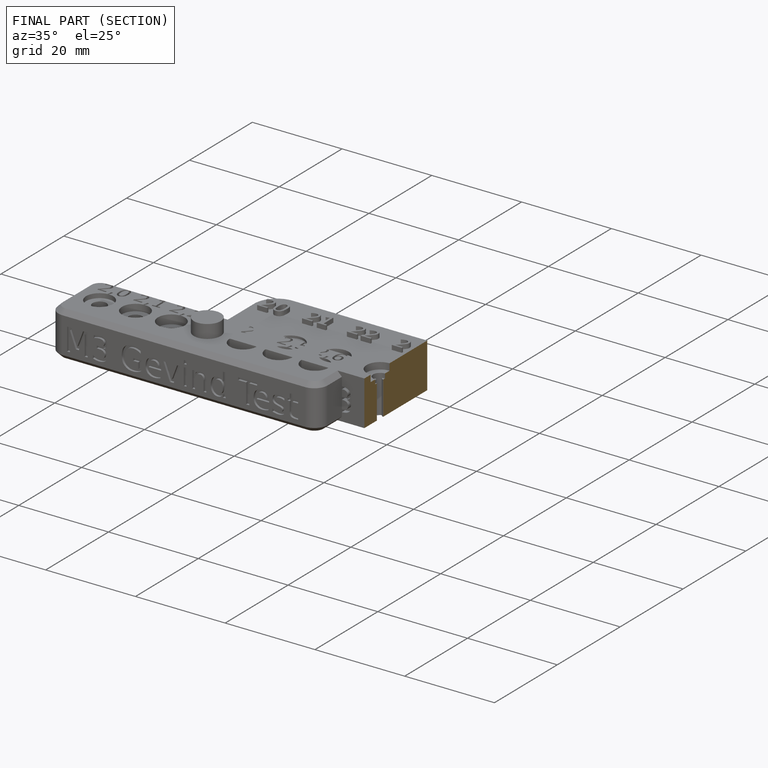
[diagram: finished part — half-section view (interior)]
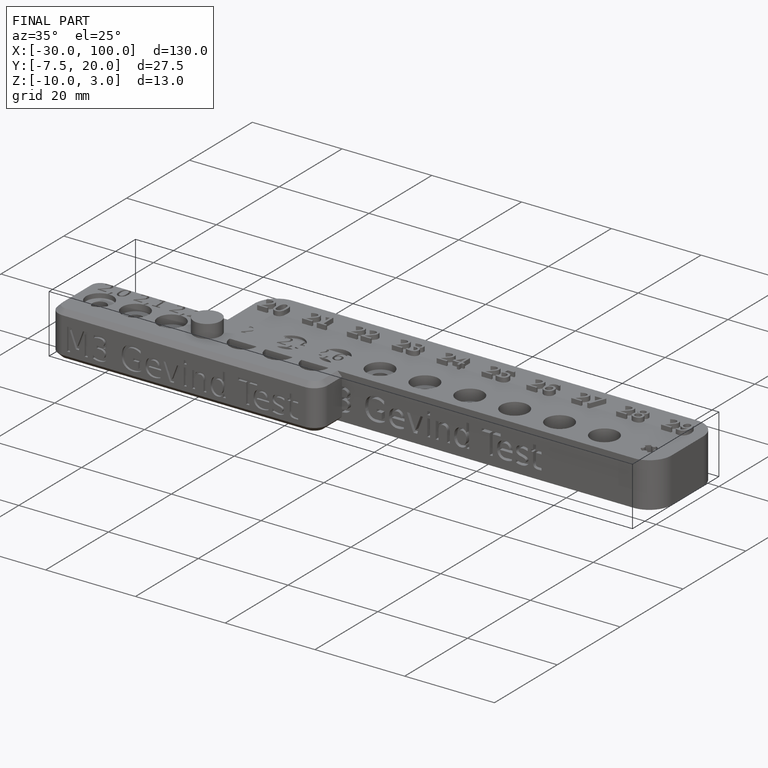
[diagram: finished part — iso view with bounding-box wireframe]
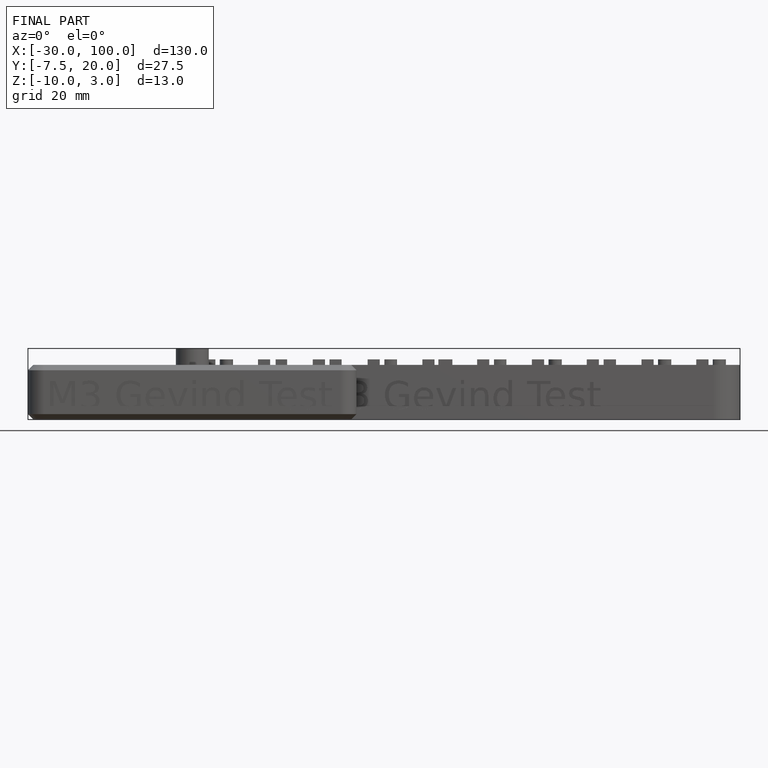
[diagram: finished part — front view with bounding-box wireframe]
